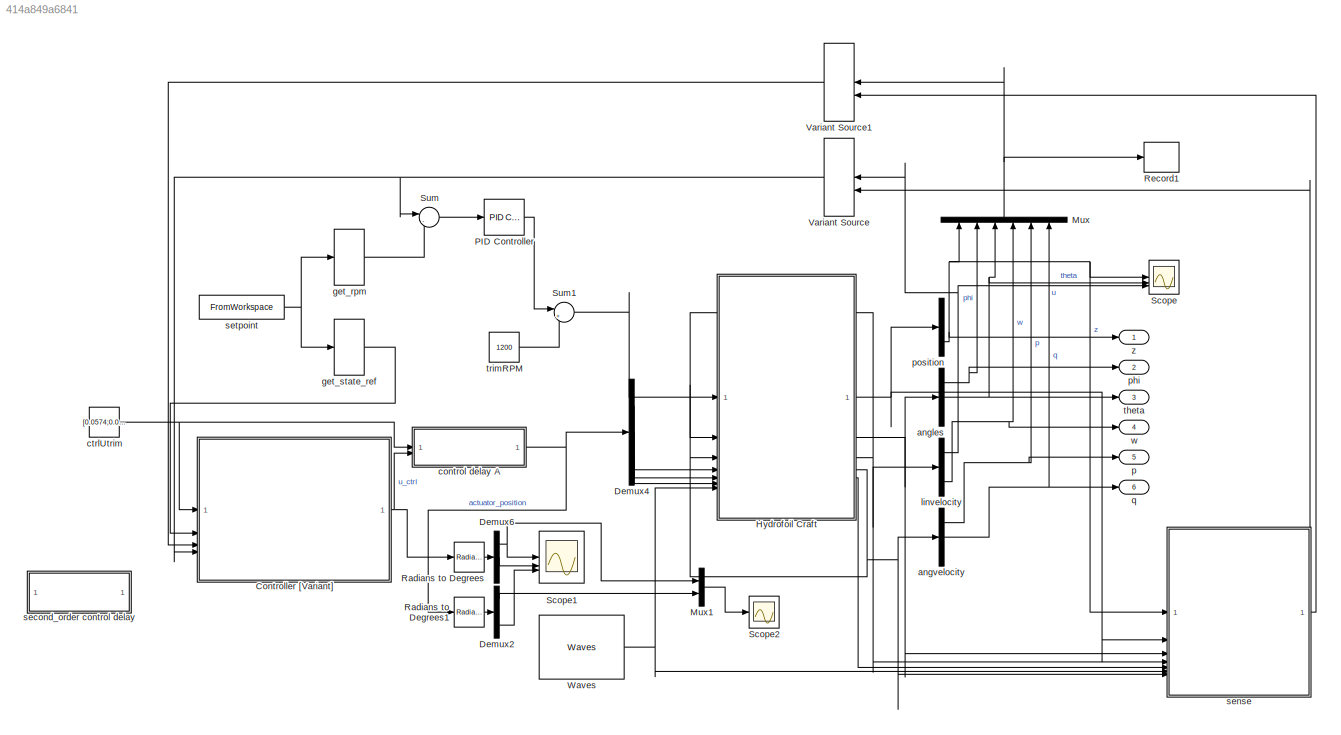
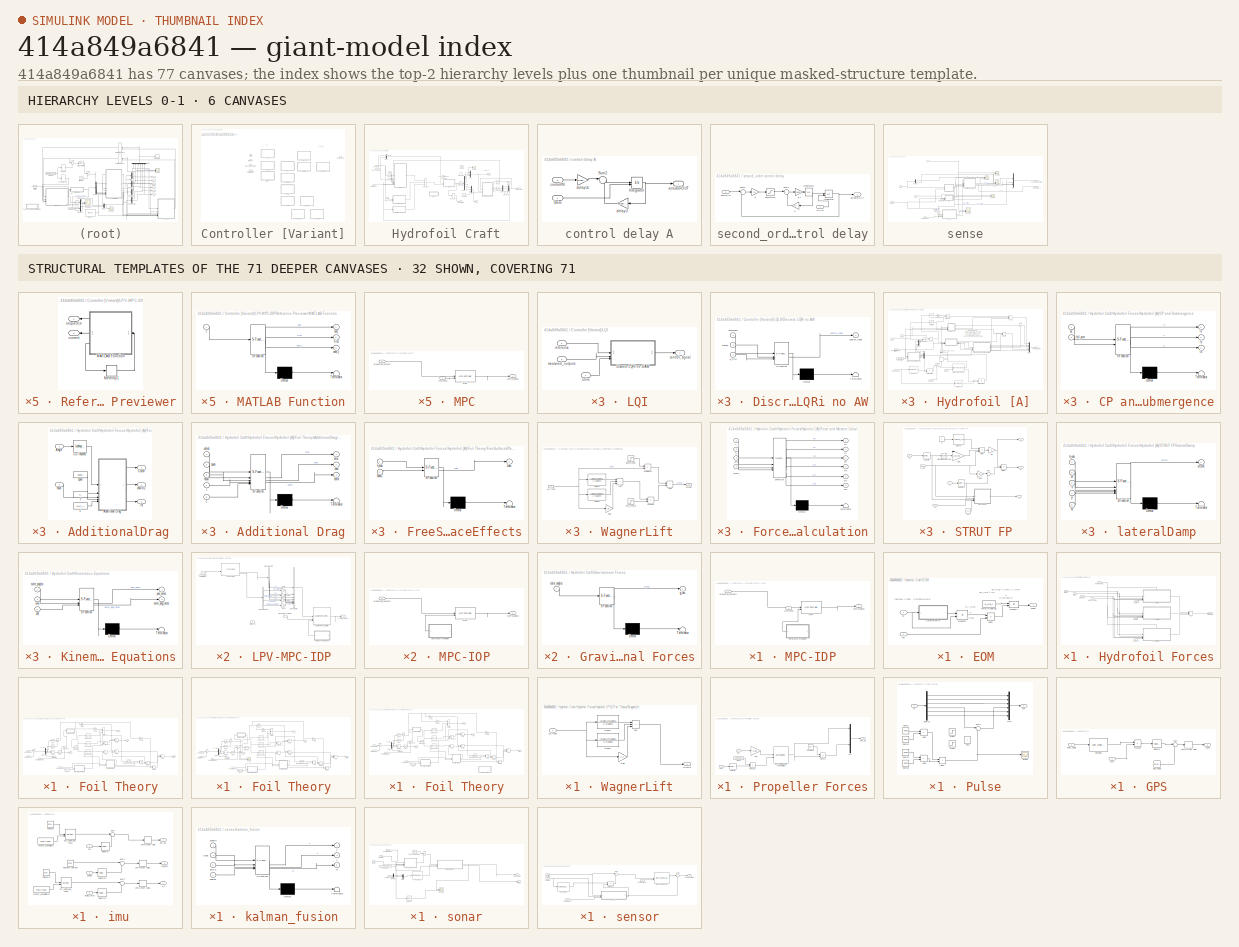
[diagram: thumbnail index - top-2 hierarchy levels (6 canvases) + 32 structural-template representatives of the remaining 71 canvases]
MODEL slx_414a849a6841
KIND model
CONFIG AbsTol = auto
CONFIG EnableMultiTasking = off
CONFIG FixedStep = 0.05
CONFIG MaxStep = 0.2
CONFIG MinStep = auto
CONFIG RelTol = 1e-3
CONFIG SampleTimeConstraint = Unconstrained
CONFIG SolverName = VariableStepAuto
CONFIG StartTime = 0.0
CONFIG StopTime = 20
BLOCK [SubSystem] Controller [Variant]
  Variant = on
  VariantActivationTime = startup
BLOCK [SubSystem] Controller [Variant]/LPV-MPC-IDP
  TreatAsAtomicUnit = on
  VariantControl = control_flag == 12
BLOCK [Reference] Controller [Variant]/LPV-MPC-IDP/Adaptive MPC Controller  REF=mpclib/Adaptive MPC Controller  (lib defined in mdl_ae329e0e0455)
  SCDEnableBlockLinearizationSpecification = on
  SourceBlock = mpclib/Adaptive MPC Controller
  SourceType = Adaptive MPC
BLOCK [BusCreator] Controller [Variant]/LPV-MPC-IDP/Bus Creator
  DisplayOption = bar
  InheritFromInputs = on
  Inputs = 8
BLOCK [BusSelector] Controller [Variant]/LPV-MPC-IDP/Bus Selector
  OutputSignals = A,B,C,D
BLOCK [BusSelector] Controller [Variant]/LPV-MPC-IDP/Bus Selector2
  OutputSignals = InputOffset,OutputOffset,StateOffset,StateUpdateOffset
BLOCK [Gain] Controller [Variant]/LPV-MPC-IDP/Gain
BLOCK [Gain] Controller [Variant]/LPV-MPC-IDP/Gain1
BLOCK [Gain] Controller [Variant]/LPV-MPC-IDP/Gain2
BLOCK [Gain] Controller [Variant]/LPV-MPC-IDP/Gain3
  Gain = 0
BLOCK [Reference] Controller [Variant]/LPV-MPC-IDP/LPV System  REF=cstblocks/Linear Parameter Varying/LPV System
  SourceBlock = cstblocks/Linear Parameter Varying/LPV System
  SourceType = LPV Block
BLOCK [SubSystem] Controller [Variant]/LPV-MPC-IDP/Reference Previewer
BLOCK [SubSystem] Controller [Variant]/LPV-MPC-IDP/Reference Previewer/MATLAB Function
  ErrorFcn = Stateflow.Translate.translate
  PermitHierarchicalResolution = ExplicitOnly
  SFBlockType = MATLAB Function
  TreatAsAtomicUnit = on
BLOCK [Demux] Controller [Variant]/LPV-MPC-IDP/Reference Previewer/MATLAB Function/ Demux 
  Outputs = 1
BLOCK [S-Function] Controller [Variant]/LPV-MPC-IDP/Reference Previewer/MATLAB Function/ SFunction 
  EnableBusSupport = on
  FunctionName = sf_sfun
  Parameters = data,steps
  PortCounts = [1 4]
  SFcnIsStateOwnerBlock = off
  SFunctionDeploymentMode = off
  Tag = Stateflow S-Function 24
BLOCK [Terminator] Controller [Variant]/LPV-MPC-IDP/Reference Previewer/MATLAB Function/ Terminator 
BLOCK [Outport] Controller [Variant]/LPV-MPC-IDP/Reference Previewer/MATLAB Function/first
  Port = 2
BLOCK [Outport] Controller [Variant]/LPV-MPC-IDP/Reference Previewer/MATLAB Function/next_t
  Port = 3
BLOCK [Outport] Controller [Variant]/LPV-MPC-IDP/Reference Previewer/MATLAB Function/seq
BLOCK [Inport] Controller [Variant]/LPV-MPC-IDP/Reference Previewer/MATLAB Function/t
BLOCK [Memory] Controller [Variant]/LPV-MPC-IDP/Reference Previewer/Memory1
  InheritSampleTime = on
  LinearizeAsDelay = on
BLOCK [Outport] Controller [Variant]/LPV-MPC-IDP/Reference Previewer/current
  Port = 2
BLOCK [Outport] Controller [Variant]/LPV-MPC-IDP/Reference Previewer/sequence
BLOCK [Outport] Controller [Variant]/LPV-MPC-IDP/control_signal
BLOCK [Inport] Controller [Variant]/LPV-MPC-IDP/measured_outputs
  Port = 2
BLOCK [Inport] Controller [Variant]/LPV-MPC-IDP/reference
BLOCK [Inport] Controller [Variant]/LPV-MPC-IDP/scheduling_parameter
  Port = 3
BLOCK [SubSystem] Controller [Variant]/LPV-MPC-IP
  TreatAsAtomicUnit = on
  VariantControl = control_flag == 11
BLOCK [Reference] Controller [Variant]/LPV-MPC-IP/Adaptive MPC Controller  REF=mpclib/Adaptive MPC Controller  (lib defined in mdl_ae329e0e0455)
  SCDEnableBlockLinearizationSpecification = on
  SourceBlock = mpclib/Adaptive MPC Controller
  SourceType = Adaptive MPC
BLOCK [BusCreator] Controller [Variant]/LPV-MPC-IP/Bus Creator
  DisplayOption = bar
  InheritFromInputs = on
  Inputs = 8
BLOCK [BusSelector] Controller [Variant]/LPV-MPC-IP/Bus Selector
  OutputSignals = A,B,C,D
BLOCK [BusSelector] Controller [Variant]/LPV-MPC-IP/Bus Selector2
  OutputSignals = InputOffset,OutputOffset,StateOffset,StateUpdateOffset
BLOCK [Gain] Controller [Variant]/LPV-MPC-IP/Gain
BLOCK [Gain] Controller [Variant]/LPV-MPC-IP/Gain1
BLOCK [Gain] Controller [Variant]/LPV-MPC-IP/Gain2
BLOCK [Gain] Controller [Variant]/LPV-MPC-IP/Gain3
  Gain = 0
BLOCK [Reference] Controller [Variant]/LPV-MPC-IP/LPV System  REF=cstblocks/Linear Parameter Varying/LPV System
  SourceBlock = cstblocks/Linear Parameter Varying/LPV System
  SourceType = LPV Block
BLOCK [SubSystem] Controller [Variant]/LPV-MPC-IP/Reference Previewer
BLOCK [SubSystem] Controller [Variant]/LPV-MPC-IP/Reference Previewer/MATLAB Function
  ErrorFcn = Stateflow.Translate.translate
  PermitHierarchicalResolution = ExplicitOnly
  SFBlockType = MATLAB Function
  TreatAsAtomicUnit = on
BLOCK [Demux] Controller [Variant]/LPV-MPC-IP/Reference Previewer/MATLAB Function/ Demux 
  Outputs = 1
BLOCK [S-Function] Controller [Variant]/LPV-MPC-IP/Reference Previewer/MATLAB Function/ SFunction 
  EnableBusSupport = on
  FunctionName = sf_sfun
  Parameters = data,steps
  PortCounts = [1 4]
  SFcnIsStateOwnerBlock = off
  SFunctionDeploymentMode = off
  Tag = Stateflow S-Function 27
BLOCK [Terminator] Controller [Variant]/LPV-MPC-IP/Reference Previewer/MATLAB Function/ Terminator 
BLOCK [Outport] Controller [Variant]/LPV-MPC-IP/Reference Previewer/MATLAB Function/first
  Port = 2
BLOCK [Outport] Controller [Variant]/LPV-MPC-IP/Reference Previewer/MATLAB Function/next_t
  Port = 3
BLOCK [Outport] Controller [Variant]/LPV-MPC-IP/Reference Previewer/MATLAB Function/seq
BLOCK [Inport] Controller [Variant]/LPV-MPC-IP/Reference Previewer/MATLAB Function/t
BLOCK [Memory] Controller [Variant]/LPV-MPC-IP/Reference Previewer/Memory1
  InheritSampleTime = on
  LinearizeAsDelay = on
BLOCK [Outport] Controller [Variant]/LPV-MPC-IP/Reference Previewer/current
  Port = 2
BLOCK [Outport] Controller [Variant]/LPV-MPC-IP/Reference Previewer/sequence
BLOCK [Outport] Controller [Variant]/LPV-MPC-IP/control_signal
BLOCK [Inport] Controller [Variant]/LPV-MPC-IP/measured_outputs
  Port = 2
BLOCK [Inport] Controller [Variant]/LPV-MPC-IP/reference
BLOCK [Inport] Controller [Variant]/LPV-MPC-IP/scheduling_parameter
  Port = 3
BLOCK [SubSystem] Controller [Variant]/LQI
  TreatAsAtomicUnit = on
  VariantControl = control_flag == 1
BLOCK [SubSystem] Controller [Variant]/LQI-S
  TreatAsAtomicUnit = on
  VariantControl = control_flag == 2
BLOCK [SubSystem] Controller [Variant]/LQI-S/Discrete LQRi no AW
  ErrorFcn = Stateflow.Translate.translate
  PermitHierarchicalResolution = ExplicitOnly
  SFBlockType = MATLAB Function
  SystemSampleTime = 0.1
  TreatAsAtomicUnit = on
BLOCK [Demux] Controller [Variant]/LQI-S/Discrete LQRi no AW/ Demux 
  Outputs = 1
BLOCK [S-Function] Controller [Variant]/LQI-S/Discrete LQRi no AW/ SFunction 
  EnableBusSupport = on
  FunctionName = sf_sfun
  Parameters = Ka,Klqid,act_lims
  PortCounts = [3 2]
  SFcnIsStateOwnerBlock = off
  SFunctionDeploymentMode = off
  Tag = Stateflow S-Function 26
BLOCK [Terminator] Controller [Variant]/LQI-S/Discrete LQRi no AW/ Terminator 
BLOCK [Outport] Controller [Variant]/LQI-S/Discrete LQRi no AW/control_input
BLOCK [Inport] Controller [Variant]/LQI-S/Discrete LQRi no AW/reference
BLOCK [Inport] Controller [Variant]/LQI-S/Discrete LQRi no AW/states
  Port = 2
BLOCK [Inport] Controller [Variant]/LQI-S/Discrete LQRi no AW/u_trim
  Port = 3
BLOCK [Outport] Controller [Variant]/LQI-S/control_signal
BLOCK [Inport] Controller [Variant]/LQI-S/measured_outputs
  Port = 3
BLOCK [Inport] Controller [Variant]/LQI-S/reference
  Port = 2
BLOCK [Inport] Controller [Variant]/LQI-S/utrim
BLOCK [SubSystem] Controller [Variant]/LQI-SW
  TreatAsAtomicUnit = on
  VariantControl = control_flag == 3
BLOCK [SubSystem] Controller [Variant]/LQI-SW/Discrete LQRi
  ErrorFcn = Stateflow.Translate.translate
  PermitHierarchicalResolution = ExplicitOnly
  SFBlockType = MATLAB Function
  SystemSampleTime = 0.1
  TreatAsAtomicUnit = on
BLOCK [Demux] Controller [Variant]/LQI-SW/Discrete LQRi/ Demux 
  Outputs = 1
BLOCK [S-Function] Controller [Variant]/LQI-SW/Discrete LQRi/ SFunction 
  EnableBusSupport = on
  FunctionName = sf_sfun
  Parameters = Ka,Klqid,act_lims
  PortCounts = [3 2]
  SFcnIsStateOwnerBlock = off
  SFunctionDeploymentMode = off
  Tag = Stateflow S-Function 14
BLOCK [Terminator] Controller [Variant]/LQI-SW/Discrete LQRi/ Terminator 
BLOCK [Outport] Controller [Variant]/LQI-SW/Discrete LQRi/control_input
BLOCK [Inport] Controller [Variant]/LQI-SW/Discrete LQRi/reference
BLOCK [Inport] Controller [Variant]/LQI-SW/Discrete LQRi/states
  Port = 2
BLOCK [Inport] Controller [Variant]/LQI-SW/Discrete LQRi/u_trim
  Port = 3
BLOCK [Outport] Controller [Variant]/LQI-SW/control_signal
BLOCK [Inport] Controller [Variant]/LQI-SW/measured_outputs
  Port = 3
BLOCK [Inport] Controller [Variant]/LQI-SW/reference
  Port = 2
BLOCK [Inport] Controller [Variant]/LQI-SW/utrim
BLOCK [SubSystem] Controller [Variant]/LQI/Discrete LQRi no S//AW
  ErrorFcn = Stateflow.Translate.translate
  PermitHierarchicalResolution = ExplicitOnly
  SFBlockType = MATLAB Function
  SystemSampleTime = 0.1
  TreatAsAtomicUnit = on
BLOCK [Demux] Controller [Variant]/LQI/Discrete LQRi no S//AW/ Demux 
  Outputs = 1
BLOCK [S-Function] Controller [Variant]/LQI/Discrete LQRi no S//AW/ SFunction 
  EnableBusSupport = on
  FunctionName = sf_sfun
  Parameters = Ka,Klqid,act_lims
  PortCounts = [3 2]
  SFcnIsStateOwnerBlock = off
  SFunctionDeploymentMode = off
  Tag = Stateflow S-Function 25
BLOCK [Terminator] Controller [Variant]/LQI/Discrete LQRi no S//AW/ Terminator 
BLOCK [Outport] Controller [Variant]/LQI/Discrete LQRi no S//AW/control_input
BLOCK [Inport] Controller [Variant]/LQI/Discrete LQRi no S//AW/reference
BLOCK [Inport] Controller [Variant]/LQI/Discrete LQRi no S//AW/states
  Port = 2
BLOCK [Inport] Controller [Variant]/LQI/Discrete LQRi no S//AW/u_trim
  Port = 3
BLOCK [Outport] Controller [Variant]/LQI/control_signal
BLOCK [Inport] Controller [Variant]/LQI/measured_outputs
  Port = 3
BLOCK [Inport] Controller [Variant]/LQI/reference
  Port = 2
BLOCK [Inport] Controller [Variant]/LQI/utrim
BLOCK [SubSystem] Controller [Variant]/MPC
  TreatAsAtomicUnit = on
  VariantControl = control_flag == 4
BLOCK [SubSystem] Controller [Variant]/MPC-I
  TreatAsAtomicUnit = on
  VariantControl = control_flag == 5
BLOCK [Reference] Controller [Variant]/MPC-I/MPC  REF=mpclib/MPC Controller  (lib defined in mdl_ae329e0e0455)
  SCDEnableBlockLinearizationSpecification = on
  SourceBlock = mpclib/MPC Controller
  SourceType = MPC
BLOCK [Outport] Controller [Variant]/MPC-I/control_signal
BLOCK [Inport] Controller [Variant]/MPC-I/measured_outputs
  Port = 2
BLOCK [Inport] Controller [Variant]/MPC-I/reference
BLOCK [SubSystem] Controller [Variant]/MPC-ID
  TreatAsAtomicUnit = on
  VariantControl = control_flag == 8
BLOCK [Reference] Controller [Variant]/MPC-ID/MPC  REF=mpclib/MPC Controller  (lib defined in mdl_ae329e0e0455)
  SCDEnableBlockLinearizationSpecification = on
  SourceBlock = mpclib/MPC Controller
  SourceType = MPC
BLOCK [Outport] Controller [Variant]/MPC-ID/control_signal
BLOCK [Inport] Controller [Variant]/MPC-ID/measured_outputs
  Port = 2
BLOCK [Inport] Controller [Variant]/MPC-ID/reference
BLOCK [SubSystem] Controller [Variant]/MPC-IDP
  TreatAsAtomicUnit = on
  VariantControl = control_flag == 10
BLOCK [Reference] Controller [Variant]/MPC-IDP/MPC  REF=mpclib/MPC Controller  (lib defined in mdl_ae329e0e0455)
  SCDEnableBlockLinearizationSpecification = on
  SourceBlock = mpclib/MPC Controller
  SourceType = MPC
BLOCK [SubSystem] Controller [Variant]/MPC-IDP/Reference Previewer
BLOCK [SubSystem] Controller [Variant]/MPC-IDP/Reference Previewer/MATLAB Function
  ErrorFcn = Stateflow.Translate.translate
  PermitHierarchicalResolution = ExplicitOnly
  SFBlockType = MATLAB Function
  TreatAsAtomicUnit = on
BLOCK [Demux] Controller [Variant]/MPC-IDP/Reference Previewer/MATLAB Function/ Demux 
  Outputs = 1
BLOCK [S-Function] Controller [Variant]/MPC-IDP/Reference Previewer/MATLAB Function/ SFunction 
  EnableBusSupport = on
  FunctionName = sf_sfun
  Parameters = data,steps
  PortCounts = [1 4]
  SFcnIsStateOwnerBlock = off
  SFunctionDeploymentMode = off
  Tag = Stateflow S-Function 29
BLOCK [Terminator] Controller [Variant]/MPC-IDP/Reference Previewer/MATLAB Function/ Terminator 
BLOCK [Outport] Controller [Variant]/MPC-IDP/Reference Previewer/MATLAB Function/first
  Port = 2
BLOCK [Outport] Controller [Variant]/MPC-IDP/Reference Previewer/MATLAB Function/next_t
  Port = 3
BLOCK [Outport] Controller [Variant]/MPC-IDP/Reference Previewer/MATLAB Function/seq
BLOCK [Inport] Controller [Variant]/MPC-IDP/Reference Previewer/MATLAB Function/t
BLOCK [Memory] Controller [Variant]/MPC-IDP/Reference Previewer/Memory1
  InheritSampleTime = on
  LinearizeAsDelay = on
BLOCK [Outport] Controller [Variant]/MPC-IDP/Reference Previewer/current
  Port = 2
BLOCK [Outport] Controller [Variant]/MPC-IDP/Reference Previewer/sequence
BLOCK [Outport] Controller [Variant]/MPC-IDP/control_signal
BLOCK [Inport] Controller [Variant]/MPC-IDP/measured_outputs
  Port = 2
BLOCK [Inport] Controller [Variant]/MPC-IDP/reference
BLOCK [SubSystem] Controller [Variant]/MPC-IO
  TreatAsAtomicUnit = on
  VariantControl = control_flag == 7
BLOCK [Reference] Controller [Variant]/MPC-IO/MPC  REF=mpclib/MPC Controller  (lib defined in mdl_ae329e0e0455)
  SCDEnableBlockLinearizationSpecification = on
  SourceBlock = mpclib/MPC Controller
  SourceType = MPC
BLOCK [Outport] Controller [Variant]/MPC-IO/control_signal
BLOCK [Inport] Controller [Variant]/MPC-IO/measured_outputs
  Port = 2
BLOCK [Inport] Controller [Variant]/MPC-IO/reference
BLOCK [SubSystem] Controller [Variant]/MPC-IOP
  TreatAsAtomicUnit = on
  VariantControl = control_flag == 13
BLOCK [Reference] Controller [Variant]/MPC-IOP/MPC  REF=mpclib/MPC Controller  (lib defined in mdl_ae329e0e0455)
  SCDEnableBlockLinearizationSpecification = on
  SourceBlock = mpclib/MPC Controller
  SourceType = MPC
BLOCK [SubSystem] Controller [Variant]/MPC-IOP/Reference Previewer
BLOCK [SubSystem] Controller [Variant]/MPC-IOP/Reference Previewer/MATLAB Function
  ErrorFcn = Stateflow.Translate.translate
  PermitHierarchicalResolution = ExplicitOnly
  SFBlockType = MATLAB Function
  TreatAsAtomicUnit = on
BLOCK [Demux] Controller [Variant]/MPC-IOP/Reference Previewer/MATLAB Function/ Demux 
  Outputs = 1
BLOCK [S-Function] Controller [Variant]/MPC-IOP/Reference Previewer/MATLAB Function/ SFunction 
  EnableBusSupport = on
  FunctionName = sf_sfun
  Parameters = data,steps
  PortCounts = [1 4]
  SFcnIsStateOwnerBlock = off
  SFunctionDeploymentMode = off
  Tag = Stateflow S-Function 28
BLOCK [Terminator] Controller [Variant]/MPC-IOP/Reference Previewer/MATLAB Function/ Terminator 
BLOCK [Outport] Controller [Variant]/MPC-IOP/Reference Previewer/MATLAB Function/first
  Port = 2
BLOCK [Outport] Controller [Variant]/MPC-IOP/Reference Previewer/MATLAB Function/next_t
  Port = 3
BLOCK [Outport] Controller [Variant]/MPC-IOP/Reference Previewer/MATLAB Function/seq
BLOCK [Inport] Controller [Variant]/MPC-IOP/Reference Previewer/MATLAB Function/t
BLOCK [Memory] Controller [Variant]/MPC-IOP/Reference Previewer/Memory1
  InheritSampleTime = on
  LinearizeAsDelay = on
BLOCK [Outport] Controller [Variant]/MPC-IOP/Reference Previewer/current
  Port = 2
BLOCK [Outport] Controller [Variant]/MPC-IOP/Reference Previewer/sequence
BLOCK [Outport] Controller [Variant]/MPC-IOP/control_signal
BLOCK [Inport] Controller [Variant]/MPC-IOP/measured_outputs
BLOCK [SubSystem] Controller [Variant]/MPC-IP
  TreatAsAtomicUnit = on
  VariantControl = control_flag == 9
BLOCK [Reference] Controller [Variant]/MPC-IP/MPC  REF=mpclib/MPC Controller  (lib defined in mdl_ae329e0e0455)
  SCDEnableBlockLinearizationSpecification = on
  SourceBlock = mpclib/MPC Controller
  SourceType = MPC
BLOCK [SubSystem] Controller [Variant]/MPC-IP/Reference Previewer
BLOCK [SubSystem] Controller [Variant]/MPC-IP/Reference Previewer/MATLAB Function
  ErrorFcn = Stateflow.Translate.translate
  PermitHierarchicalResolution = ExplicitOnly
  SFBlockType = MATLAB Function
  TreatAsAtomicUnit = on
BLOCK [Demux] Controller [Variant]/MPC-IP/Reference Previewer/MATLAB Function/ Demux 
  Outputs = 1
BLOCK [S-Function] Controller [Variant]/MPC-IP/Reference Previewer/MATLAB Function/ SFunction 
  EnableBusSupport = on
  FunctionName = sf_sfun
  Parameters = data,steps
  PortCounts = [1 4]
  SFcnIsStateOwnerBlock = off
  SFunctionDeploymentMode = off
  Tag = Stateflow S-Function 23
BLOCK [Terminator] Controller [Variant]/MPC-IP/Reference Previewer/MATLAB Function/ Terminator 
BLOCK [Outport] Controller [Variant]/MPC-IP/Reference Previewer/MATLAB Function/first
  Port = 2
BLOCK [Outport] Controller [Variant]/MPC-IP/Reference Previewer/MATLAB Function/next_t
  Port = 3
BLOCK [Outport] Controller [Variant]/MPC-IP/Reference Previewer/MATLAB Function/seq
BLOCK [Inport] Controller [Variant]/MPC-IP/Reference Previewer/MATLAB Function/t
BLOCK [Memory] Controller [Variant]/MPC-IP/Reference Previewer/Memory1
  InheritSampleTime = on
  LinearizeAsDelay = on
BLOCK [Outport] Controller [Variant]/MPC-IP/Reference Previewer/current
  Port = 2
BLOCK [Outport] Controller [Variant]/MPC-IP/Reference Previewer/sequence
BLOCK [Outport] Controller [Variant]/MPC-IP/control_signal
BLOCK [Inport] Controller [Variant]/MPC-IP/measured_outputs
BLOCK [SubSystem] Controller [Variant]/MPC-O
  TreatAsAtomicUnit = on
  VariantControl = control_flag == 6
BLOCK [Reference] Controller [Variant]/MPC-O/MPC  REF=mpclib/MPC Controller  (lib defined in mdl_ae329e0e0455)
  SCDEnableBlockLinearizationSpecification = on
  SourceBlock = mpclib/MPC Controller
  SourceType = MPC
BLOCK [Outport] Controller [Variant]/MPC-O/control_signal
BLOCK [Inport] Controller [Variant]/MPC-O/measured_outputs
  Port = 2
BLOCK [Inport] Controller [Variant]/MPC-O/reference
BLOCK [Reference] Controller [Variant]/MPC/MPC  REF=mpclib/MPC Controller  (lib defined in mdl_ae329e0e0455)
  SCDEnableBlockLinearizationSpecification = on
  SourceBlock = mpclib/MPC Controller
  SourceType = MPC
BLOCK [Outport] Controller [Variant]/MPC/control_signal
BLOCK [Inport] Controller [Variant]/MPC/measured_outputs
  Port = 2
BLOCK [Inport] Controller [Variant]/MPC/reference
BLOCK [Outport] Controller [Variant]/control_signal
BLOCK [Inport] Controller [Variant]/measured_outputs
  Port = 3
BLOCK [Inport] Controller [Variant]/reference
  Port = 2
BLOCK [Inport] Controller [Variant]/scheduling_parameter
  Port = 4
BLOCK [Inport] Controller [Variant]/utrim
BLOCK [Demux] Demux2
  Outputs = 3
BLOCK [Demux] Demux4
  Outputs = 3
BLOCK [Demux] Demux6
  Outputs = 3
BLOCK [SubSystem] Hydrofoil Craft
BLOCK [Inport] Hydrofoil Craft/AoA 1
  Port = 4
BLOCK [Inport] Hydrofoil Craft/AoA 2
  Port = 5
BLOCK [Inport] Hydrofoil Craft/AoA 3
  Port = 6
BLOCK [Inport] Hydrofoil Craft/BF Angular Rates
  Port = 3
BLOCK [Inport] Hydrofoil Craft/BF Velocity
  Port = 2
BLOCK [Constant] Hydrofoil Craft/Constant2
  Value = 0
BLOCK [Constant] Hydrofoil Craft/Constant3
  Value = 0
BLOCK [Demux] Hydrofoil Craft/Demux1
  Outputs = 6
BLOCK [Demux] Hydrofoil Craft/Demux2
  Outputs = 3
BLOCK [SubSystem] Hydrofoil Craft/EOM
BLOCK [Sum] Hydrofoil Craft/EOM/Add3
  IconShape = rectangular
  Inputs = -+
BLOCK [SubSystem] Hydrofoil Craft/EOM/CRB MATRIX
  ErrorFcn = Stateflow.Translate.translate
  LibrarySourceBlock = simulink/User-Defined\nFunctions/MATLAB Function
  PermitHierarchicalResolution = ExplicitOnly
  SFBlockType = MATLAB Function
  TreatAsAtomicUnit = on
BLOCK [Demux] Hydrofoil Craft/EOM/CRB MATRIX/ Demux 
  Outputs = 1
BLOCK [S-Function] Hydrofoil Craft/EOM/CRB MATRIX/ SFunction 
  EnableBusSupport = on
  FunctionName = sf_sfun
  Parameters = M_RB
  PortCounts = [1 2]
  SFcnIsStateOwnerBlock = off
  SFunctionDeploymentMode = off
  Tag = Stateflow S-Function 10
BLOCK [Terminator] Hydrofoil Craft/EOM/CRB MATRIX/ Terminator 
BLOCK [Outport] Hydrofoil Craft/EOM/CRB MATRIX/C
BLOCK [Inport] Hydrofoil Craft/EOM/CRB MATRIX/nu
BLOCK [Constant] Hydrofoil Craft/EOM/MRB INVERSE
  Value = M_RB_1
BLOCK [Product] Hydrofoil Craft/EOM/Product1
  Multiplication = Matrix(*)
BLOCK [Product] Hydrofoil Craft/EOM/Product2
  Multiplication = Matrix(*)
BLOCK [Inport] Hydrofoil Craft/EOM/nu
BLOCK [Outport] Hydrofoil Craft/EOM/nudot
BLOCK [Inport] Hydrofoil Craft/EOM/tau
  Port = 2
BLOCK [Sum] Hydrofoil Craft/Force Sum
  IconShape = rectangular
  Inputs = +++
BLOCK [SubSystem] Hydrofoil Craft/Gravitational Forces
  ErrorFcn = Stateflow.Translate.translate
  LibrarySourceBlock = simulink/User-Defined\nFunctions/MATLAB Function
  PermitHierarchicalResolution = ExplicitOnly
  SFBlockType = MATLAB Function
  TreatAsAtomicUnit = on
BLOCK [Demux] Hydrofoil Craft/Gravitational Forces/ Demux 
  Outputs = 1
BLOCK [S-Function] Hydrofoil Craft/Gravitational Forces/ SFunction 
  EnableBusSupport = on
  FunctionName = sf_sfun
  Parameters = g,mass,r_g
  PortCounts = [1 2]
  SFcnIsStateOwnerBlock = off
  SFunctionDeploymentMode = off
  Tag = Stateflow S-Function 3
BLOCK [Terminator] Hydrofoil Craft/Gravitational Forces/ Terminator 
BLOCK [Inport] Hydrofoil Craft/Gravitational Forces/euler_angles
BLOCK [Outport] Hydrofoil Craft/Gravitational Forces/g_tau
BLOCK [SubSystem] Hydrofoil Craft/Hydrofoil Forces
BLOCK [Sum] Hydrofoil Craft/Hydrofoil Forces/Add
  IconShape = rectangular
  Inputs = +++
BLOCK [Inport] Hydrofoil Craft/Hydrofoil Forces/Angle A
  Port = 5
BLOCK [Inport] Hydrofoil Craft/Hydrofoil Forces/Angle FP
  Port = 4
BLOCK [Inport] Hydrofoil Craft/Hydrofoil Forces/Angle FS
  Port = 3
BLOCK [Outport] Hydrofoil Craft/Hydrofoil Forces/FoilForce
BLOCK [SubSystem] Hydrofoil Craft/Hydrofoil Forces/Hydrofoil [A]
  PortSchema = {"entries":[{"content":{"sides":[{"content":{"connectorIds":["In1","In2","In3","In4","In5"]},"type":"ConnectorPlacement.EquallySpacedRectSide","uuid":"677cb1e4-b507-48e0-bf9b-1d4b68d11740"},{"content":{"connectorIds":["Out1"],"side":"RIGHT"},"type":"ConnectorPlacement.EquallySpacedRectSide","uuid":"aaee0231-58d5-427f-802b-fd317cb8babc"},{"content":{"connectorIds":["In6"],"side":"TOP"},"type":"Conn...<+269ch>  <repeated x3 — deduplicated; at blocks: Hydrofoil [A], Hydrofoil [FP], Hydrofoil [FS]>
BLOCK [Gain] Hydrofoil Craft/Hydrofoil Forces/Hydrofoil [A]/-0.5ρ2pi Ld,p
  Gain = -1/2*rho*2*pi*LAd
BLOCK [Sum] Hydrofoil Craft/Hydrofoil Forces/Hydrofoil [A]/Add
  IconShape = rectangular
BLOCK [Sum] Hydrofoil Craft/Hydrofoil Forces/Hydrofoil [A]/Add1
  IconShape = rectangular
  Inputs = +++
BLOCK [Reference] Hydrofoil Craft/Hydrofoil Forces/Hydrofoil [A]/BF2NED  REF=mssSimulink/Modelling/Kinematics/Euler angles to
rotation matrix
  SourceBlock = mssSimulink/Modelling/Kinematics/Euler angles to\nrotation matrix
  SourceType = Euler2R
BLOCK [SubSystem] Hydrofoil Craft/Hydrofoil Forces/Hydrofoil [A]/CP and Submergence
  ErrorFcn = Stateflow.Translate.translate
  LibrarySourceBlock = simulink/User-Defined\nFunctions/MATLAB Function
  PermitHierarchicalResolution = ExplicitOnly
  SFBlockType = MATLAB Function
  TreatAsAtomicUnit = on
BLOCK [Demux] Hydrofoil Craft/Hydrofoil Forces/Hydrofoil [A]/CP and Submergence/ Demux 
  Outputs = 1
BLOCK [S-Function] Hydrofoil Craft/Hydrofoil Forces/Hydrofoil [A]/CP and Submergence/ SFunction 
  EnableBusSupport = on
  FunctionName = sf_sfun
  PortCounts = [2 4]
  SFcnIsStateOwnerBlock = off
  SFunctionDeploymentMode = off
  Tag = Stateflow S-Function 1
BLOCK [Terminator] Hydrofoil Craft/Hydrofoil Forces/Hydrofoil [A]/CP and Submergence/ Terminator 
BLOCK [Inport] Hydrofoil Craft/Hydrofoil Forces/Hydrofoil [A]/CP and Submergence/ac
BLOCK [Inport] Hydrofoil Craft/Hydrofoil Forces/Hydrofoil [A]/CP and Submergence/foil_arm
  Port = 2
BLOCK [Outport] Hydrofoil Craft/Hydrofoil Forces/Hydrofoil [A]/CP and Submergence/lx
BLOCK [Outport] Hydrofoil Craft/Hydrofoil Forces/Hydrofoil [A]/CP and Submergence/ly
  Port = 2
BLOCK [Outport] Hydrofoil Craft/Hydrofoil Forces/Hydrofoil [A]/CP and Submergence/lz
  Port = 3
BLOCK [Inport] Hydrofoil Craft/Hydrofoil Forces/Hydrofoil [A]/Control Deflection (ac)
  Port = 5
BLOCK [Reference] Hydrofoil Craft/Hydrofoil Forces/Hydrofoil [A]/Cross Product  REF=matrix_library/Cross Product
  SourceBlock = matrix_library/Cross Product
  SourceType = CrossProduct
BLOCK [Constant] Hydrofoil Craft/Hydrofoil Forces/Hydrofoil [A]/Foil Position
  Value = foilA_ARM
BLOCK [SubSystem] Hydrofoil Craft/Hydrofoil Forces/Hydrofoil [A]/Foil Theory
BLOCK [Gain] Hydrofoil Craft/Hydrofoil Forces/Hydrofoil [A]/Foil Theory/0.5ρS
  Gain = 1/2*rho*AfoilA
BLOCK [Gain] Hydrofoil Craft/Hydrofoil Forces/Hydrofoil [A]/Foil Theory/0.5ρSc
  Gain = 1/2*rho*AfoilA*MAC_A
BLOCK [Gain] Hydrofoil Craft/Hydrofoil Forces/Hydrofoil [A]/Foil Theory/0.5ρt^2
  Gain = 1/2*rho*tA^2
BLOCK [Sum] Hydrofoil Craft/Hydrofoil Forces/Hydrofoil [A]/Foil Theory/Add
  IconShape = rectangular
  Inputs = +++
BLOCK [SubSystem] Hydrofoil Craft/Hydrofoil Forces/Hydrofoil [A]/Foil Theory/AdditionalDrag
BLOCK [SubSystem] Hydrofoil Craft/Hydrofoil Forces/Hydrofoil [A]/Foil Theory/AdditionalDrag/Additional Drag
  ErrorFcn = Stateflow.Translate.translate
  PermitHierarchicalResolution = ExplicitOnly
  SFBlockType = MATLAB Function
  TreatAsAtomicUnit = on
BLOCK [Demux] Hydrofoil Craft/Hydrofoil Forces/Hydrofoil [A]/Foil Theory/AdditionalDrag/Additional Drag/ Demux 
  Outputs = 1
BLOCK [S-Function] Hydrofoil Craft/Hydrofoil Forces/Hydrofoil [A]/Foil Theory/AdditionalDrag/Additional Drag/ SFunction 
  EnableBusSupport = on
  FunctionName = sf_sfun
  Parameters = usted
  PortCounts = [5 4]
  SFcnIsStateOwnerBlock = off
  SFunctionDeploymentMode = off
  Tag = Stateflow S-Function 2
BLOCK [Terminator] Hydrofoil Craft/Hydrofoil Forces/Hydrofoil [A]/Foil Theory/AdditionalDrag/Additional Drag/ Terminator 
BLOCK [Inport] Hydrofoil Craft/Hydrofoil Forces/Hydrofoil [A]/Foil Theory/AdditionalDrag/Additional Drag/c
  Port = 5
BLOCK [Inport] Hydrofoil Craft/Hydrofoil Forces/Hydrofoil [A]/Foil Theory/AdditionalDrag/Additional Drag/cdind
BLOCK [Outport] Hydrofoil Craft/Hydrofoil Forces/Hydrofoil [A]/Foil Theory/AdditionalDrag/Additional Drag/cdint
  Port = 3
BLOCK [Outport] Hydrofoil Craft/Hydrofoil Forces/Hydrofoil [A]/Foil Theory/AdditionalDrag/Additional Drag/cdw
  Port = 2
BLOCK [Outport] Hydrofoil Craft/Hydrofoil Forces/Hydrofoil [A]/Foil Theory/AdditionalDrag/Additional Drag/dinc
BLOCK [Inport] Hydrofoil Craft/Hydrofoil Forces/Hydrofoil [A]/Foil Theory/AdditionalDrag/Additional Drag/hsub
  Port = 3
BLOCK [Inport] Hydrofoil Craft/Hydrofoil Forces/Hydrofoil [A]/Foil Theory/AdditionalDrag/Additional Drag/span
  Port = 2
BLOCK [Inport] Hydrofoil Craft/Hydrofoil Forces/Hydrofoil [A]/Foil Theory/AdditionalDrag/Additional Drag/t
  Port = 4
BLOCK [Inport] Hydrofoil Craft/Hydrofoil Forces/Hydrofoil [A]/Foil Theory/AdditionalDrag/Angle
BLOCK [Lookup_n-D] Hydrofoil Craft/Hydrofoil Forces/Hydrofoil [A]/Foil Theory/AdditionalDrag/CD induced
  BreakpointsForDimension1 = alpha63412wing
  InputPortMap = u0
  InternalRulePriority = Speed
  NumberOfTableDimensions = 1
  RndMeth = Simplest
  Table = cdi63412wing
BLOCK [Outport] Hydrofoil Craft/Hydrofoil Forces/Hydrofoil [A]/Foil Theory/AdditionalDrag/Cdind
BLOCK [Constant] Hydrofoil Craft/Hydrofoil Forces/Hydrofoil [A]/Foil Theory/AdditionalDrag/c
  Value = MAC_A
BLOCK [Outport] Hydrofoil Craft/Hydrofoil Forces/Hydrofoil [A]/Foil Theory/AdditionalDrag/cdw//cl2
  Port = 2
BLOCK [Inport] Hydrofoil Craft/Hydrofoil Forces/Hydrofoil [A]/Foil Theory/AdditionalDrag/hsub
  Port = 2
BLOCK [Outport] Hydrofoil Craft/Hydrofoil Forces/Hydrofoil [A]/Foil Theory/AdditionalDrag/int
  Port = 3
BLOCK [Constant] Hydrofoil Craft/Hydrofoil Forces/Hydrofoil [A]/Foil Theory/AdditionalDrag/span
  Value = spanA
BLOCK [Constant] Hydrofoil Craft/Hydrofoil Forces/Hydrofoil [A]/Foil Theory/AdditionalDrag/t
  Value = tA
BLOCK [Sum] Hydrofoil Craft/Hydrofoil Forces/Hydrofoil [A]/Foil Theory/Angle_Hydro
  Inputs = |++
BLOCK [Trigonometry] Hydrofoil Craft/Hydrofoil Forces/Hydrofoil [A]/Foil Theory/Atan
  Operator = atan
BLOCK [Sum] Hydrofoil Craft/Hydrofoil Forces/Hydrofoil [A]/Foil Theory/CD
  IconShape = rectangular
BLOCK [Lookup_n-D] Hydrofoil Craft/Hydrofoil Forces/Hydrofoil [A]/Foil Theory/CDv LookUp
  BreakpointsForDimension1 = alpha63412wing
  InputPortMap = u0
  InternalRulePriority = Speed
  NumberOfTableDimensions = 1
  RndMeth = Simplest
  Table = cdv63412wing
BLOCK [Lookup_n-D] Hydrofoil Craft/Hydrofoil Forces/Hydrofoil [A]/Foil Theory/CL LookUp
  BreakpointsForDimension1 = alpha63412wing
  InputPortMap = u0
  InternalRulePriority = Speed
  NumberOfTableDimensions = 1
  RndMeth = Simplest
  Table = cl63412wing
BLOCK [Lookup_n-D] Hydrofoil Craft/Hydrofoil Forces/Hydrofoil [A]/Foil Theory/CM Lookup
  BreakpointsForDimension1 = alpha63412wing
  InputPortMap = u0
  InternalRulePriority = Speed
  NumberOfTableDimensions = 1
  RndMeth = Simplest
  Table = cm63412wing
BLOCK [Product] Hydrofoil Craft/Hydrofoil Forces/Hydrofoil [A]/Foil Theory/Cmdim
  Inputs = 3
BLOCK [Inport] Hydrofoil Craft/Hydrofoil Forces/Hydrofoil [A]/Foil Theory/Control Deflection
  Port = 2
BLOCK [Product] Hydrofoil Craft/Hydrofoil Forces/Hydrofoil [A]/Foil Theory/Ddim
BLOCK [Product] Hydrofoil Craft/Hydrofoil Forces/Hydrofoil [A]/Foil Theory/Ddimint
BLOCK [Product] Hydrofoil Craft/Hydrofoil Forces/Hydrofoil [A]/Foil Theory/Ddimw
BLOCK [Demux] Hydrofoil Craft/Hydrofoil Forces/Hydrofoil [A]/Foil Theory/Demux
  Outputs = 3
BLOCK [Product] Hydrofoil Craft/Hydrofoil Forces/Hydrofoil [A]/Foil Theory/Divide
  Inputs = */
BLOCK [Outport] Hydrofoil Craft/Hydrofoil Forces/Hydrofoil [A]/Foil Theory/Drag
  Port = 2
BLOCK [SubSystem] Hydrofoil Craft/Hydrofoil Forces/Hydrofoil [A]/Foil Theory/FreeSurfaceEffects
  ErrorFcn = Stateflow.Translate.translate
  PermitHierarchicalResolution = ExplicitOnly
  SFBlockType = MATLAB Function
  TreatAsAtomicUnit = on
BLOCK [Demux] Hydrofoil Craft/Hydrofoil Forces/Hydrofoil [A]/Foil Theory/FreeSurfaceEffects/ Demux 
  Outputs = 1
BLOCK [S-Function] Hydrofoil Craft/Hydrofoil Forces/Hydrofoil [A]/Foil Theory/FreeSurfaceEffects/ SFunction 
  EnableBusSupport = on
  FunctionName = sf_sfun
  PortCounts = [2 2]
  SFcnIsStateOwnerBlock = off
  SFunctionDeploymentMode = off
  Tag = Stateflow S-Function 8
BLOCK [Terminator] Hydrofoil Craft/Hydrofoil Forces/Hydrofoil [A]/Foil Theory/FreeSurfaceEffects/ Terminator 
BLOCK [Outport] Hydrofoil Craft/Hydrofoil Forces/Hydrofoil [A]/Foil Theory/FreeSurfaceEffects/Ldec
BLOCK [Inport] Hydrofoil Craft/Hydrofoil Forces/Hydrofoil [A]/Foil Theory/FreeSurfaceEffects/MAC
  Port = 2
BLOCK [Inport] Hydrofoil Craft/Hydrofoil Forces/Hydrofoil [A]/Foil Theory/FreeSurfaceEffects/h_sub
BLOCK [Product] Hydrofoil Craft/Hydrofoil Forces/Hydrofoil [A]/Foil Theory/Ldecrease_h
BLOCK [Product] Hydrofoil Craft/Hydrofoil Forces/Hydrofoil [A]/Foil Theory/Ldim
BLOCK [Outport] Hydrofoil Craft/Hydrofoil Forces/Hydrofoil [A]/Foil Theory/Lift
BLOCK [Outport] Hydrofoil Craft/Hydrofoil Forces/Hydrofoil [A]/Foil Theory/M
  Port = 4
BLOCK [Constant] Hydrofoil Craft/Hydrofoil Forces/Hydrofoil [A]/Foil Theory/MAC
  Value = MAC_A
BLOCK [Math] Hydrofoil Craft/Hydrofoil Forces/Hydrofoil [A]/Foil Theory/Magnitude Squared
  Operator = magnitude^2
BLOCK [Inport] Hydrofoil Craft/Hydrofoil Forces/Hydrofoil [A]/Foil Theory/Pivot Velocity
BLOCK [Inport] Hydrofoil Craft/Hydrofoil Forces/Hydrofoil [A]/Foil Theory/Submergence
  Port = 4
BLOCK [Sum] Hydrofoil Craft/Hydrofoil Forces/Hydrofoil [A]/Foil Theory/Sum
  Inputs = |+-
BLOCK [Terminator] Hydrofoil Craft/Hydrofoil Forces/Hydrofoil [A]/Foil Theory/Terminator
BLOCK [Sum] Hydrofoil Craft/Hydrofoil Forces/Hydrofoil [A]/Foil Theory/Vinf^2
  Inputs = |++
BLOCK [SubSystem] Hydrofoil Craft/Hydrofoil Forces/Hydrofoil [A]/Foil Theory/WagnerLift
BLOCK [Sum] Hydrofoil Craft/Hydrofoil Forces/Hydrofoil [A]/Foil Theory/WagnerLift/Add
  IconShape = rectangular
  Inputs = +++
BLOCK [Sum] Hydrofoil Craft/Hydrofoil Forces/Hydrofoil [A]/Foil Theory/WagnerLift/Add1
  IconShape = rectangular
BLOCK [Inport] Hydrofoil Craft/Hydrofoil Forces/Hydrofoil [A]/Foil Theory/WagnerLift/AoA Input
BLOCK [Outport] Hydrofoil Craft/Hydrofoil Forces/Hydrofoil [A]/Foil Theory/WagnerLift/DynOut
BLOCK [Gain] Hydrofoil Craft/Hydrofoil Forces/Hydrofoil [A]/Foil Theory/WagnerLift/Gain
  Gain = 0.5
BLOCK [Product] Hydrofoil Craft/Hydrofoil Forces/Hydrofoil [A]/Foil Theory/WagnerLift/Product
BLOCK [Product] Hydrofoil Craft/Hydrofoil Forces/Hydrofoil [A]/Foil Theory/WagnerLift/Product1
BLOCK [Step] Hydrofoil Craft/Hydrofoil Forces/Hydrofoil [A]/Foil Theory/WagnerLift/init_dynamic
  SampleTime = 0
  Time = 0.7
BLOCK [Step] Hydrofoil Craft/Hydrofoil Forces/Hydrofoil [A]/Foil Theory/WagnerLift/level_model
  After = 0
  Before = 1
  SampleTime = 0
  Time = 0.7
BLOCK [TransferFcn] Hydrofoil Craft/Hydrofoil Forces/Hydrofoil [A]/Foil Theory/WagnerLift/wagn1
  Denominator = [1 wage1]
  Numerator = [wagC1*wage1]
BLOCK [TransferFcn] Hydrofoil Craft/Hydrofoil Forces/Hydrofoil [A]/Foil Theory/WagnerLift/wagn2
  Denominator = [1 wage2]
  Numerator = [wagC2*wage2]
BLOCK [Outport] Hydrofoil Craft/Hydrofoil Forces/Hydrofoil [A]/Foil Theory/a_inf
  Port = 3
BLOCK [Product] Hydrofoil Craft/Hydrofoil Forces/Hydrofoil [A]/Foil Theory/cdw
BLOCK [Inport] Hydrofoil Craft/Hydrofoil Forces/Hydrofoil [A]/Foil Theory/disturbance
  Port = 3
BLOCK [Reference] Hydrofoil Craft/Hydrofoil Forces/Hydrofoil [A]/Foil Theory/rad2deg  REF=simulink_extras/Transformations/Radians
to Degrees
  SourceBlock = simulink_extras/Transformations/Radians\nto Degrees
  SourceType = RadiansToDegrees
BLOCK [Math] Hydrofoil Craft/Hydrofoil Forces/Hydrofoil [A]/Foil Theory/u^2
  Operator = magnitude^2
BLOCK [Math] Hydrofoil Craft/Hydrofoil Forces/Hydrofoil [A]/Foil Theory/w^2
  Operator = magnitude^2
BLOCK [Sum] Hydrofoil Craft/Hydrofoil Forces/Hydrofoil [A]/FoilNED
  Inputs = |++
BLOCK [Outport] Hydrofoil Craft/Hydrofoil Forces/Hydrofoil [A]/Force - Moment
BLOCK [SubSystem] Hydrofoil Craft/Hydrofoil Forces/Hydrofoil [A]/Force and Moment Calculation
  ErrorFcn = Stateflow.Translate.translate
  LibrarySourceBlock = simulink/User-Defined\nFunctions/MATLAB Function
  PermitHierarchicalResolution = ExplicitOnly
  SFBlockType = MATLAB Function
  TreatAsAtomicUnit = on
BLOCK [Demux] Hydrofoil Craft/Hydrofoil Forces/Hydrofoil [A]/Force and Moment Calculation/ Demux 
  Outputs = 1
BLOCK [S-Function] Hydrofoil Craft/Hydrofoil Forces/Hydrofoil [A]/Force and Moment Calculation/ SFunction 
  EnableBusSupport = on
  FunctionName = sf_sfun
  PortCounts = [4 7]
  SFcnIsStateOwnerBlock = off
  SFunctionDeploymentMode = off
  Tag = Stateflow S-Function 16
BLOCK [Terminator] Hydrofoil Craft/Hydrofoil Forces/Hydrofoil [A]/Force and Moment Calculation/ Terminator 
BLOCK [Inport] Hydrofoil Craft/Hydrofoil Forces/Hydrofoil [A]/Force and Moment Calculation/D
  Port = 2
BLOCK [Outport] Hydrofoil Craft/Hydrofoil Forces/Hydrofoil [A]/Force and Moment Calculation/FX
BLOCK [Outport] Hydrofoil Craft/Hydrofoil Forces/Hydrofoil [A]/Force and Moment Calculation/FY
  Port = 2
BLOCK [Outport] Hydrofoil Craft/Hydrofoil Forces/Hydrofoil [A]/Force and Moment Calculation/FZ
  Port = 3
BLOCK [Inport] Hydrofoil Craft/Hydrofoil Forces/Hydrofoil [A]/Force and Moment Calculation/L
BLOCK [Outport] Hydrofoil Craft/Hydrofoil Forces/Hydrofoil [A]/Force and Moment Calculation/MX
  Port = 4
BLOCK [Outport] Hydrofoil Craft/Hydrofoil Forces/Hydrofoil [A]/Force and Moment Calculation/MY
  Port = 5
BLOCK [Outport] Hydrofoil Craft/Hydrofoil Forces/Hydrofoil [A]/Force and Moment Calculation/MZ
  Port = 6
BLOCK [Inport] Hydrofoil Craft/Hydrofoil Forces/Hydrofoil [A]/Force and Moment Calculation/Marm
  Port = 4
BLOCK [Inport] Hydrofoil Craft/Hydrofoil Forces/Hydrofoil [A]/Force and Moment Calculation/ainf
  Port = 3
BLOCK [Product] Hydrofoil Craft/Hydrofoil Forces/Hydrofoil [A]/Matrix Multiply
  Multiplication = Matrix(*)
BLOCK [Product] Hydrofoil Craft/Hydrofoil Forces/Hydrofoil [A]/Matrix Multiply1
  Multiplication = Matrix(*)
BLOCK [Sum] Hydrofoil Craft/Hydrofoil Forces/Hydrofoil [A]/Msum
  IconShape = rectangular
  Inputs = +++
BLOCK [Mux] Hydrofoil Craft/Hydrofoil Forces/Hydrofoil [A]/Mux
  DisplayOption = bar
  Inputs = 3
BLOCK [Mux] Hydrofoil Craft/Hydrofoil Forces/Hydrofoil [A]/Mux1
  DisplayOption = bar
  Inputs = 6
BLOCK [Mux] Hydrofoil Craft/Hydrofoil Forces/Hydrofoil [A]/Mux2
  DisplayOption = bar
  Inputs = 3
BLOCK [Reference] Hydrofoil Craft/Hydrofoil Forces/Hydrofoil [A]/NED2BF  REF=mssSimulink/Modelling/Kinematics/Euler angles to
inverse rotation
matrix
  SourceBlock = mssSimulink/Modelling/Kinematics/Euler angles to\ninverse rotation\nmatrix
  SourceType = Rbn
BLOCK [Inport] Hydrofoil Craft/Hydrofoil Forces/Hydrofoil [A]/NEDpos
  Port = 3
BLOCK [Product] Hydrofoil Craft/Hydrofoil Forces/Hydrofoil [A]/Product
BLOCK [SubSystem] Hydrofoil Craft/Hydrofoil Forces/Hydrofoil [A]/STRUT FP
BLOCK [Lookup_n-D] Hydrofoil Craft/Hydrofoil Forces/Hydrofoil [A]/STRUT FP/CD strut
  BreakpointsForDimension1 = alpha0012
  InputPortMap = u0
  InternalRulePriority = Speed
  NumberOfTableDimensions = 1
  RndMeth = Simplest
  Table = cd0012
BLOCK [Product] Hydrofoil Craft/Hydrofoil Forces/Hydrofoil [A]/STRUT FP/Ddim
  Inputs = 3
BLOCK [Gain] Hydrofoil Craft/Hydrofoil Forces/Hydrofoil [A]/STRUT FP/Gain
  Gain = 0.5*rho*csA
BLOCK [Gain] Hydrofoil Craft/Hydrofoil Forces/Hydrofoil [A]/STRUT FP/Gain1
  Gain = 0.5
BLOCK [Outport] Hydrofoil Craft/Hydrofoil Forces/Hydrofoil [A]/STRUT FP/K
  Port = 2
BLOCK [Outport] Hydrofoil Craft/Hydrofoil Forces/Hydrofoil [A]/STRUT FP/M
  Port = 3
BLOCK [Math] Hydrofoil Craft/Hydrofoil Forces/Hydrofoil [A]/STRUT FP/Magnitude Squared
  Operator = magnitude^2
BLOCK [Product] Hydrofoil Craft/Hydrofoil Forces/Hydrofoil [A]/STRUT FP/Mpitch
BLOCK [Selector] Hydrofoil Craft/Hydrofoil Forces/Hydrofoil [A]/STRUT FP/Selector
  IndexOptions = Index vector (dialog)
  Indices = [1]
  InputPortWidth = 3
  OutputSizes = 1
BLOCK [Selector] Hydrofoil Craft/Hydrofoil Forces/Hydrofoil [A]/STRUT FP/Selector1
  IndexOptions = Index vector (dialog)
  Indices = [3]
  InputPortWidth = 3
  OutputSizes = 1
BLOCK [Sum] Hydrofoil Craft/Hydrofoil Forces/Hydrofoil [A]/STRUT FP/Sum
  Inputs = |-+
BLOCK [Outport] Hydrofoil Craft/Hydrofoil Forces/Hydrofoil [A]/STRUT FP/X
BLOCK [Constant] Hydrofoil Craft/Hydrofoil Forces/Hydrofoil [A]/STRUT FP/a
  Value = 0
BLOCK [Constant] Hydrofoil Craft/Hydrofoil Forces/Hydrofoil [A]/STRUT FP/a1
  Value = csA
BLOCK [Gain] Hydrofoil Craft/Hydrofoil Forces/Hydrofoil [A]/STRUT FP/flip
  Gain = -1
BLOCK [Inport] Hydrofoil Craft/Hydrofoil Forces/Hydrofoil [A]/STRUT FP/h_sub
BLOCK [SubSystem] Hydrofoil Craft/Hydrofoil Forces/Hydrofoil [A]/STRUT FP/lateralDamp
  ErrorFcn = Stateflow.Translate.translate
  PermitHierarchicalResolution = ExplicitOnly
  SFBlockType = MATLAB Function
  TreatAsAtomicUnit = on
BLOCK [Demux] Hydrofoil Craft/Hydrofoil Forces/Hydrofoil [A]/STRUT FP/lateralDamp/ Demux 
  Outputs = 1
BLOCK [S-Function] Hydrofoil Craft/Hydrofoil Forces/Hydrofoil [A]/STRUT FP/lateralDamp/ SFunction 
  EnableBusSupport = on
  FunctionName = sf_sfun
  Parameters = rho
  PortCounts = [5 2]
  SFcnIsStateOwnerBlock = off
  SFunctionDeploymentMode = off
  Tag = Stateflow S-Function 17
BLOCK [Terminator] Hydrofoil Craft/Hydrofoil Forces/Hydrofoil [A]/STRUT FP/lateralDamp/ Terminator 
BLOCK [Inport] Hydrofoil Craft/Hydrofoil Forces/Hydrofoil [A]/STRUT FP/lateralDamp/V
  Port = 3
BLOCK [Inport] Hydrofoil Craft/Hydrofoil Forces/Hydrofoil [A]/STRUT FP/lateralDamp/cs
  Port = 5
BLOCK [Inport] Hydrofoil Craft/Hydrofoil Forces/Hydrofoil [A]/STRUT FP/lateralDamp/h_sub
BLOCK [Inport] Hydrofoil Craft/Hydrofoil Forces/Hydrofoil [A]/STRUT FP/lateralDamp/p
  Port = 4
BLOCK [Outport] Hydrofoil Craft/Hydrofoil Forces/Hydrofoil [A]/STRUT FP/lateralDamp/strutK
BLOCK [Inport] Hydrofoil Craft/Hydrofoil Forces/Hydrofoil [A]/STRUT FP/lateralDamp/zs
  Port = 2
BLOCK [Inport] Hydrofoil Craft/Hydrofoil Forces/Hydrofoil [A]/STRUT FP/lz
  Port = 3
BLOCK [Inport] Hydrofoil Craft/Hydrofoil Forces/Hydrofoil [A]/STRUT FP/p
  Port = 4
BLOCK [Inport] Hydrofoil Craft/Hydrofoil Forces/Hydrofoil [A]/STRUT FP/vel
  Port = 2
BLOCK [Selector] Hydrofoil Craft/Hydrofoil Forces/Hydrofoil [A]/Selector
  IndexOptions = Index vector (dialog)
  Indices = [3]
  InputPortWidth = 3
  NameLocation = right
  OutputSizes = 1
BLOCK [Sum] Hydrofoil Craft/Hydrofoil Forces/Hydrofoil [A]/Sum
  Inputs = |++
BLOCK [Reference] Hydrofoil Craft/Hydrofoil Forces/Hydrofoil [A]/Wave velocitycalc  REF=mssSimulink/Environment/Waves/Wave velocitycalc
  SourceBlock = mssSimulink/Environment/Waves/Wave velocitycalc
  SourceType = Wave velocitycalc
BLOCK [Inport] Hydrofoil Craft/Hydrofoil Forces/Hydrofoil [A]/[p q r]
  Port = 2
BLOCK [Inport] Hydrofoil Craft/Hydrofoil Forces/Hydrofoil [A]/[u v w]
BLOCK [Inport] Hydrofoil Craft/Hydrofoil Forces/Hydrofoil [A]/euler_angles
  Port = 4
BLOCK [Selector] Hydrofoil Craft/Hydrofoil Forces/Hydrofoil [A]/rollrate
  IndexOptions = Index vector (dialog)
  Indices = [1]
  InputPortWidth = 3
  OutputSizes = 1
BLOCK [Selector] Hydrofoil Craft/Hydrofoil Forces/Hydrofoil [A]/u
  IndexOptions = Index vector (dialog)
  Indices = [1]
  InputPortWidth = 3
  OutputSizes = 1
BLOCK [Sum] Hydrofoil Craft/Hydrofoil Forces/Hydrofoil [A]/wave_elev_sub
  Inputs = |++
  NameLocation = left
BLOCK [Inport] Hydrofoil Craft/Hydrofoil Forces/Hydrofoil [A]/waves
  Port = 6
BLOCK [SubSystem] Hydrofoil Craft/Hydrofoil Forces/Hydrofoil [FP]
BLOCK [Gain] Hydrofoil Craft/Hydrofoil Forces/Hydrofoil [FP]/-0.5ρ2pi Ld,p
  Gain = -1/2*rho*2*pi*LFPd
BLOCK [Sum] Hydrofoil Craft/Hydrofoil Forces/Hydrofoil [FP]/Add
  IconShape = rectangular
BLOCK [Sum] Hydrofoil Craft/Hydrofoil Forces/Hydrofoil [FP]/Add1
  IconShape = rectangular
  Inputs = +++
BLOCK [Reference] Hydrofoil Craft/Hydrofoil Forces/Hydrofoil [FP]/BF2NED  REF=mssSimulink/Modelling/Kinematics/Euler angles to
rotation matrix
  SourceBlock = mssSimulink/Modelling/Kinematics/Euler angles to\nrotation matrix
  SourceType = Euler2R
BLOCK [SubSystem] Hydrofoil Craft/Hydrofoil Forces/Hydrofoil [FP]/CP and Submergence
  ErrorFcn = Stateflow.Translate.translate
  LibrarySourceBlock = simulink/User-Defined\nFunctions/MATLAB Function
  PermitHierarchicalResolution = ExplicitOnly
  SFBlockType = MATLAB Function
  TreatAsAtomicUnit = on
BLOCK [Demux] Hydrofoil Craft/Hydrofoil Forces/Hydrofoil [FP]/CP and Submergence/ Demux 
  Outputs = 1
BLOCK [S-Function] Hydrofoil Craft/Hydrofoil Forces/Hydrofoil [FP]/CP and Submergence/ SFunction 
  EnableBusSupport = on
  FunctionName = sf_sfun
  PortCounts = [2 4]
  SFcnIsStateOwnerBlock = off
  SFunctionDeploymentMode = off
  Tag = Stateflow S-Function 4
BLOCK [Terminator] Hydrofoil Craft/Hydrofoil Forces/Hydrofoil [FP]/CP and Submergence/ Terminator 
BLOCK [Inport] Hydrofoil Craft/Hydrofoil Forces/Hydrofoil [FP]/CP and Submergence/ac
BLOCK [Inport] Hydrofoil Craft/Hydrofoil Forces/Hydrofoil [FP]/CP and Submergence/foil_arm
  Port = 2
BLOCK [Outport] Hydrofoil Craft/Hydrofoil Forces/Hydrofoil [FP]/CP and Submergence/lx
BLOCK [Outport] Hydrofoil Craft/Hydrofoil Forces/Hydrofoil [FP]/CP and Submergence/ly
  Port = 2
BLOCK [Outport] Hydrofoil Craft/Hydrofoil Forces/Hydrofoil [FP]/CP and Submergence/lz
  Port = 3
BLOCK [Inport] Hydrofoil Craft/Hydrofoil Forces/Hydrofoil [FP]/Control Deflection (ac)
  Port = 5
BLOCK [Reference] Hydrofoil Craft/Hydrofoil Forces/Hydrofoil [FP]/Cross Product  REF=matrix_library/Cross Product
  SourceBlock = matrix_library/Cross Product
  SourceType = CrossProduct
BLOCK [Constant] Hydrofoil Craft/Hydrofoil Forces/Hydrofoil [FP]/Foil Position
  Value = foilFP_ARM
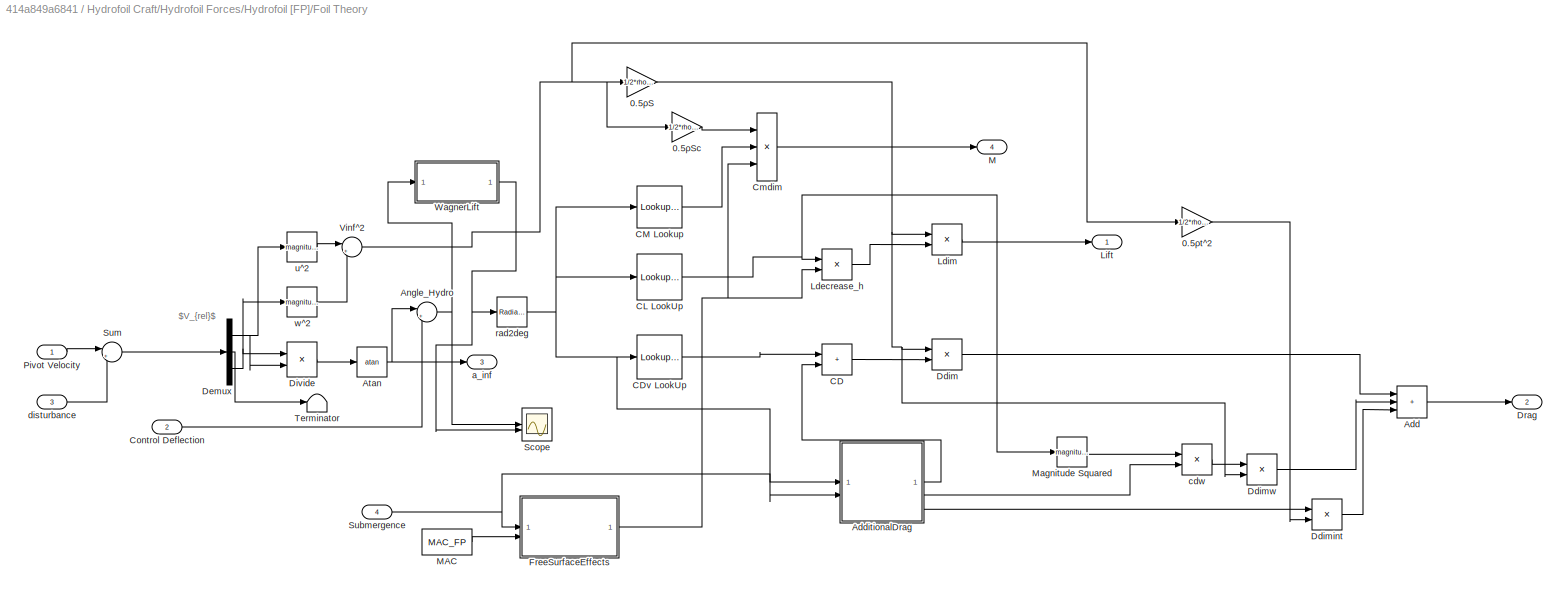
BLOCK [SubSystem] Hydrofoil Craft/Hydrofoil Forces/Hydrofoil [FP]/Foil Theory
BLOCK [Gain] Hydrofoil Craft/Hydrofoil Forces/Hydrofoil [FP]/Foil Theory/0.5ρS
  Gain = 1/2*rho*AfoilFP
BLOCK [Gain] Hydrofoil Craft/Hydrofoil Forces/Hydrofoil [FP]/Foil Theory/0.5ρSc
  Gain = 1/2*rho*AfoilFP*MAC_FP
BLOCK [Gain] Hydrofoil Craft/Hydrofoil Forces/Hydrofoil [FP]/Foil Theory/0.5ρt^2
  Gain = 1/2*rho*tFP^2
BLOCK [Sum] Hydrofoil Craft/Hydrofoil Forces/Hydrofoil [FP]/Foil Theory/Add
  IconShape = rectangular
  Inputs = +++
BLOCK [SubSystem] Hydrofoil Craft/Hydrofoil Forces/Hydrofoil [FP]/Foil Theory/AdditionalDrag
BLOCK [SubSystem] Hydrofoil Craft/Hydrofoil Forces/Hydrofoil [FP]/Foil Theory/AdditionalDrag/Additional Drag
  ErrorFcn = Stateflow.Translate.translate
  PermitHierarchicalResolution = ExplicitOnly
  SFBlockType = MATLAB Function
  TreatAsAtomicUnit = on
BLOCK [Demux] Hydrofoil Craft/Hydrofoil Forces/Hydrofoil [FP]/Foil Theory/AdditionalDrag/Additional Drag/ Demux 
  Outputs = 1
BLOCK [S-Function] Hydrofoil Craft/Hydrofoil Forces/Hydrofoil [FP]/Foil Theory/AdditionalDrag/Additional Drag/ SFunction 
  EnableBusSupport = on
  FunctionName = sf_sfun
  Parameters = usted
  PortCounts = [5 4]
  SFcnIsStateOwnerBlock = off
  SFunctionDeploymentMode = off
  Tag = Stateflow S-Function 5
BLOCK [Terminator] Hydrofoil Craft/Hydrofoil Forces/Hydrofoil [FP]/Foil Theory/AdditionalDrag/Additional Drag/ Terminator 
BLOCK [Inport] Hydrofoil Craft/Hydrofoil Forces/Hydrofoil [FP]/Foil Theory/AdditionalDrag/Additional Drag/c
  Port = 5
BLOCK [Inport] Hydrofoil Craft/Hydrofoil Forces/Hydrofoil [FP]/Foil Theory/AdditionalDrag/Additional Drag/cdind
BLOCK [Outport] Hydrofoil Craft/Hydrofoil Forces/Hydrofoil [FP]/Foil Theory/AdditionalDrag/Additional Drag/cdint
  Port = 3
BLOCK [Outport] Hydrofoil Craft/Hydrofoil Forces/Hydrofoil [FP]/Foil Theory/AdditionalDrag/Additional Drag/cdw
  Port = 2
BLOCK [Outport] Hydrofoil Craft/Hydrofoil Forces/Hydrofoil [FP]/Foil Theory/AdditionalDrag/Additional Drag/dinc
BLOCK [Inport] Hydrofoil Craft/Hydrofoil Forces/Hydrofoil [FP]/Foil Theory/AdditionalDrag/Additional Drag/hsub
  Port = 3
BLOCK [Inport] Hydrofoil Craft/Hydrofoil Forces/Hydrofoil [FP]/Foil Theory/AdditionalDrag/Additional Drag/span
  Port = 2
BLOCK [Inport] Hydrofoil Craft/Hydrofoil Forces/Hydrofoil [FP]/Foil Theory/AdditionalDrag/Additional Drag/t
  Port = 4
BLOCK [Inport] Hydrofoil Craft/Hydrofoil Forces/Hydrofoil [FP]/Foil Theory/AdditionalDrag/Angle
BLOCK [Lookup_n-D] Hydrofoil Craft/Hydrofoil Forces/Hydrofoil [FP]/Foil Theory/AdditionalDrag/CD induced
  BreakpointsForDimension1 = alpha63412wing
  InputPortMap = u0
  InternalRulePriority = Speed
  NumberOfTableDimensions = 1
  RndMeth = Simplest
  Table = cdi63412wing
BLOCK [Outport] Hydrofoil Craft/Hydrofoil Forces/Hydrofoil [FP]/Foil Theory/AdditionalDrag/Cdind
BLOCK [Constant] Hydrofoil Craft/Hydrofoil Forces/Hydrofoil [FP]/Foil Theory/AdditionalDrag/c
  Value = MAC_FP
BLOCK [Outport] Hydrofoil Craft/Hydrofoil Forces/Hydrofoil [FP]/Foil Theory/AdditionalDrag/cdw//cl2
  Port = 2
BLOCK [Inport] Hydrofoil Craft/Hydrofoil Forces/Hydrofoil [FP]/Foil Theory/AdditionalDrag/hsub
  Port = 2
BLOCK [Outport] Hydrofoil Craft/Hydrofoil Forces/Hydrofoil [FP]/Foil Theory/AdditionalDrag/int
  Port = 3
BLOCK [Constant] Hydrofoil Craft/Hydrofoil Forces/Hydrofoil [FP]/Foil Theory/AdditionalDrag/span
  Value = spanFP
BLOCK [Constant] Hydrofoil Craft/Hydrofoil Forces/Hydrofoil [FP]/Foil Theory/AdditionalDrag/t
  Value = tFP
BLOCK [Sum] Hydrofoil Craft/Hydrofoil Forces/Hydrofoil [FP]/Foil Theory/Angle_Hydro
  Inputs = |++
BLOCK [Trigonometry] Hydrofoil Craft/Hydrofoil Forces/Hydrofoil [FP]/Foil Theory/Atan
  Operator = atan
BLOCK [Sum] Hydrofoil Craft/Hydrofoil Forces/Hydrofoil [FP]/Foil Theory/CD
  IconShape = rectangular
BLOCK [Lookup_n-D] Hydrofoil Craft/Hydrofoil Forces/Hydrofoil [FP]/Foil Theory/CDv LookUp
  BreakpointsForDimension1 = alpha63412wing
  InputPortMap = u0
  InternalRulePriority = Speed
  NumberOfTableDimensions = 1
  RndMeth = Simplest
  Table = cdv63412wing
BLOCK [Lookup_n-D] Hydrofoil Craft/Hydrofoil Forces/Hydrofoil [FP]/Foil Theory/CL LookUp
  BreakpointsForDimension1 = alpha63412wing
  InputPortMap = u0
  InternalRulePriority = Speed
  NumberOfTableDimensions = 1
  RndMeth = Simplest
  Table = cl63412wing
BLOCK [Lookup_n-D] Hydrofoil Craft/Hydrofoil Forces/Hydrofoil [FP]/Foil Theory/CM Lookup
  BreakpointsForDimension1 = alpha63412wing
  InputPortMap = u0
  InternalRulePriority = Speed
  NumberOfTableDimensions = 1
  RndMeth = Simplest
  Table = cm63412wing
BLOCK [Product] Hydrofoil Craft/Hydrofoil Forces/Hydrofoil [FP]/Foil Theory/Cmdim
  Inputs = 3
BLOCK [Inport] Hydrofoil Craft/Hydrofoil Forces/Hydrofoil [FP]/Foil Theory/Control Deflection
  Port = 2
BLOCK [Product] Hydrofoil Craft/Hydrofoil Forces/Hydrofoil [FP]/Foil Theory/Ddim
BLOCK [Product] Hydrofoil Craft/Hydrofoil Forces/Hydrofoil [FP]/Foil Theory/Ddimint
BLOCK [Product] Hydrofoil Craft/Hydrofoil Forces/Hydrofoil [FP]/Foil Theory/Ddimw
BLOCK [Demux] Hydrofoil Craft/Hydrofoil Forces/Hydrofoil [FP]/Foil Theory/Demux
  Outputs = 3
BLOCK [Product] Hydrofoil Craft/Hydrofoil Forces/Hydrofoil [FP]/Foil Theory/Divide
  Inputs = */
BLOCK [Outport] Hydrofoil Craft/Hydrofoil Forces/Hydrofoil [FP]/Foil Theory/Drag
  Port = 2
BLOCK [SubSystem] Hydrofoil Craft/Hydrofoil Forces/Hydrofoil [FP]/Foil Theory/FreeSurfaceEffects
  ErrorFcn = Stateflow.Translate.translate
  PermitHierarchicalResolution = ExplicitOnly
  SFBlockType = MATLAB Function
  TreatAsAtomicUnit = on
BLOCK [Demux] Hydrofoil Craft/Hydrofoil Forces/Hydrofoil [FP]/Foil Theory/FreeSurfaceEffects/ Demux 
  Outputs = 1
BLOCK [S-Function] Hydrofoil Craft/Hydrofoil Forces/Hydrofoil [FP]/Foil Theory/FreeSurfaceEffects/ SFunction 
  EnableBusSupport = on
  FunctionName = sf_sfun
  PortCounts = [2 2]
  SFcnIsStateOwnerBlock = off
  SFunctionDeploymentMode = off
  Tag = Stateflow S-Function 11
BLOCK [Terminator] Hydrofoil Craft/Hydrofoil Forces/Hydrofoil [FP]/Foil Theory/FreeSurfaceEffects/ Terminator 
BLOCK [Outport] Hydrofoil Craft/Hydrofoil Forces/Hydrofoil [FP]/Foil Theory/FreeSurfaceEffects/Ldec
BLOCK [Inport] Hydrofoil Craft/Hydrofoil Forces/Hydrofoil [FP]/Foil Theory/FreeSurfaceEffects/MAC
  Port = 2
BLOCK [Inport] Hydrofoil Craft/Hydrofoil Forces/Hydrofoil [FP]/Foil Theory/FreeSurfaceEffects/h_sub
BLOCK [Product] Hydrofoil Craft/Hydrofoil Forces/Hydrofoil [FP]/Foil Theory/Ldecrease_h
BLOCK [Product] Hydrofoil Craft/Hydrofoil Forces/Hydrofoil [FP]/Foil Theory/Ldim
BLOCK [Outport] Hydrofoil Craft/Hydrofoil Forces/Hydrofoil [FP]/Foil Theory/Lift
BLOCK [Outport] Hydrofoil Craft/Hydrofoil Forces/Hydrofoil [FP]/Foil Theory/M
  Port = 4
BLOCK [Constant] Hydrofoil Craft/Hydrofoil Forces/Hydrofoil [FP]/Foil Theory/MAC
  Value = MAC_FP
BLOCK [Math] Hydrofoil Craft/Hydrofoil Forces/Hydrofoil [FP]/Foil Theory/Magnitude Squared
  Operator = magnitude^2
BLOCK [Inport] Hydrofoil Craft/Hydrofoil Forces/Hydrofoil [FP]/Foil Theory/Pivot Velocity
BLOCK [Scope] Hydrofoil Craft/Hydrofoil Forces/Hydrofoil [FP]/Foil Theory/Scope
  Floating = off
  NumInputPorts = 2
  ScopeSpecificationString = Simulink.scopes.TimeScopeBlockCfg('CurrentConfiguration', extmgr.ConfigurationSet(extmgr.Configuration('Core','General UI',true),extmgr.Configuration('Core','Source UI',true),extmgr.Configuration('Sources','WiredSimulink',true,'DataLoggingVariableName','ScopeData2'),extmgr.Configuration('Visuals','Time Domain',true,'SerializedDisplays',{struct('MinYLimReal','0.00301','MaxYLimReal','0.11371','YLabe...<+1499ch>
BLOCK [Inport] Hydrofoil Craft/Hydrofoil Forces/Hydrofoil [FP]/Foil Theory/Submergence
  Port = 4
BLOCK [Sum] Hydrofoil Craft/Hydrofoil Forces/Hydrofoil [FP]/Foil Theory/Sum
  Inputs = |+-
BLOCK [Terminator] Hydrofoil Craft/Hydrofoil Forces/Hydrofoil [FP]/Foil Theory/Terminator
BLOCK [Sum] Hydrofoil Craft/Hydrofoil Forces/Hydrofoil [FP]/Foil Theory/Vinf^2
  Inputs = |++
BLOCK [SubSystem] Hydrofoil Craft/Hydrofoil Forces/Hydrofoil [FP]/Foil Theory/WagnerLift
BLOCK [Sum] Hydrofoil Craft/Hydrofoil Forces/Hydrofoil [FP]/Foil Theory/WagnerLift/Add
  IconShape = rectangular
  Inputs = +++
BLOCK [Sum] Hydrofoil Craft/Hydrofoil Forces/Hydrofoil [FP]/Foil Theory/WagnerLift/Add1
  IconShape = rectangular
BLOCK [Inport] Hydrofoil Craft/Hydrofoil Forces/Hydrofoil [FP]/Foil Theory/WagnerLift/AoA Input
BLOCK [Outport] Hydrofoil Craft/Hydrofoil Forces/Hydrofoil [FP]/Foil Theory/WagnerLift/DynOut
BLOCK [Gain] Hydrofoil Craft/Hydrofoil Forces/Hydrofoil [FP]/Foil Theory/WagnerLift/Gain
  Gain = 0.5
BLOCK [Product] Hydrofoil Craft/Hydrofoil Forces/Hydrofoil [FP]/Foil Theory/WagnerLift/Product
BLOCK [Product] Hydrofoil Craft/Hydrofoil Forces/Hydrofoil [FP]/Foil Theory/WagnerLift/Product1
BLOCK [Step] Hydrofoil Craft/Hydrofoil Forces/Hydrofoil [FP]/Foil Theory/WagnerLift/init_dynamic
  SampleTime = 0
  Time = 0.7
BLOCK [Step] Hydrofoil Craft/Hydrofoil Forces/Hydrofoil [FP]/Foil Theory/WagnerLift/level_model
  After = 0
  Before = 1
  SampleTime = 0
  Time = 0.7
BLOCK [TransferFcn] Hydrofoil Craft/Hydrofoil Forces/Hydrofoil [FP]/Foil Theory/WagnerLift/wagn1
  Denominator = [1 wage1]
  Numerator = [wagC1*wage1]
BLOCK [TransferFcn] Hydrofoil Craft/Hydrofoil Forces/Hydrofoil [FP]/Foil Theory/WagnerLift/wagn2
  Denominator = [1 wage2]
  Numerator = [wagC2*wage2]
BLOCK [Outport] Hydrofoil Craft/Hydrofoil Forces/Hydrofoil [FP]/Foil Theory/a_inf
  Port = 3
BLOCK [Product] Hydrofoil Craft/Hydrofoil Forces/Hydrofoil [FP]/Foil Theory/cdw
BLOCK [Inport] Hydrofoil Craft/Hydrofoil Forces/Hydrofoil [FP]/Foil Theory/disturbance
  Port = 3
BLOCK [Reference] Hydrofoil Craft/Hydrofoil Forces/Hydrofoil [FP]/Foil Theory/rad2deg  REF=simulink_extras/Transformations/Radians
to Degrees
  SourceBlock = simulink_extras/Transformations/Radians\nto Degrees
  SourceType = RadiansToDegrees
BLOCK [Math] Hydrofoil Craft/Hydrofoil Forces/Hydrofoil [FP]/Foil Theory/u^2
  Operator = magnitude^2
BLOCK [Math] Hydrofoil Craft/Hydrofoil Forces/Hydrofoil [FP]/Foil Theory/w^2
  Operator = magnitude^2
BLOCK [Sum] Hydrofoil Craft/Hydrofoil Forces/Hydrofoil [FP]/FoilNED
  Inputs = |++
BLOCK [Outport] Hydrofoil Craft/Hydrofoil Forces/Hydrofoil [FP]/Force - Moment
BLOCK [SubSystem] Hydrofoil Craft/Hydrofoil Forces/Hydrofoil [FP]/Force and Moment Calculation
  ErrorFcn = Stateflow.Translate.translate
  LibrarySourceBlock = simulink/User-Defined\nFunctions/MATLAB Function
  PermitHierarchicalResolution = ExplicitOnly
  SFBlockType = MATLAB Function
  TreatAsAtomicUnit = on
BLOCK [Demux] Hydrofoil Craft/Hydrofoil Forces/Hydrofoil [FP]/Force and Moment Calculation/ Demux 
  Outputs = 1
BLOCK [S-Function] Hydrofoil Craft/Hydrofoil Forces/Hydrofoil [FP]/Force and Moment Calculation/ SFunction 
  EnableBusSupport = on
  FunctionName = sf_sfun
  PortCounts = [4 7]
  SFcnIsStateOwnerBlock = off
  SFunctionDeploymentMode = off
  Tag = Stateflow S-Function 6
BLOCK [Terminator] Hydrofoil Craft/Hydrofoil Forces/Hydrofoil [FP]/Force and Moment Calculation/ Terminator 
BLOCK [Inport] Hydrofoil Craft/Hydrofoil Forces/Hydrofoil [FP]/Force and Moment Calculation/D
  Port = 2
BLOCK [Outport] Hydrofoil Craft/Hydrofoil Forces/Hydrofoil [FP]/Force and Moment Calculation/FX
BLOCK [Outport] Hydrofoil Craft/Hydrofoil Forces/Hydrofoil [FP]/Force and Moment Calculation/FY
  Port = 2
BLOCK [Outport] Hydrofoil Craft/Hydrofoil Forces/Hydrofoil [FP]/Force and Moment Calculation/FZ
  Port = 3
BLOCK [Inport] Hydrofoil Craft/Hydrofoil Forces/Hydrofoil [FP]/Force and Moment Calculation/L
BLOCK [Outport] Hydrofoil Craft/Hydrofoil Forces/Hydrofoil [FP]/Force and Moment Calculation/MX
  Port = 4
BLOCK [Outport] Hydrofoil Craft/Hydrofoil Forces/Hydrofoil [FP]/Force and Moment Calculation/MY
  Port = 5
BLOCK [Outport] Hydrofoil Craft/Hydrofoil Forces/Hydrofoil [FP]/Force and Moment Calculation/MZ
  Port = 6
BLOCK [Inport] Hydrofoil Craft/Hydrofoil Forces/Hydrofoil [FP]/Force and Moment Calculation/Marm
  Port = 4
BLOCK [Inport] Hydrofoil Craft/Hydrofoil Forces/Hydrofoil [FP]/Force and Moment Calculation/ainf
  Port = 3
BLOCK [Product] Hydrofoil Craft/Hydrofoil Forces/Hydrofoil [FP]/Matrix Multiply
  Multiplication = Matrix(*)
BLOCK [Product] Hydrofoil Craft/Hydrofoil Forces/Hydrofoil [FP]/Matrix Multiply1
  Multiplication = Matrix(*)
BLOCK [Sum] Hydrofoil Craft/Hydrofoil Forces/Hydrofoil [FP]/Msum
  IconShape = rectangular
  Inputs = +++
BLOCK [Mux] Hydrofoil Craft/Hydrofoil Forces/Hydrofoil [FP]/Mux
  DisplayOption = bar
  Inputs = 3
BLOCK [Mux] Hydrofoil Craft/Hydrofoil Forces/Hydrofoil [FP]/Mux1
  DisplayOption = bar
  Inputs = 6
BLOCK [Mux] Hydrofoil Craft/Hydrofoil Forces/Hydrofoil [FP]/Mux2
  DisplayOption = bar
  Inputs = 3
BLOCK [Reference] Hydrofoil Craft/Hydrofoil Forces/Hydrofoil [FP]/NED2BF  REF=mssSimulink/Modelling/Kinematics/Euler angles to
inverse rotation
matrix
  SourceBlock = mssSimulink/Modelling/Kinematics/Euler angles to\ninverse rotation\nmatrix
  SourceType = Rbn
BLOCK [Inport] Hydrofoil Craft/Hydrofoil Forces/Hydrofoil [FP]/NEDpos
  Port = 3
BLOCK [Product] Hydrofoil Craft/Hydrofoil Forces/Hydrofoil [FP]/Product
BLOCK [SubSystem] Hydrofoil Craft/Hydrofoil Forces/Hydrofoil [FP]/STRUT FP
BLOCK [Lookup_n-D] Hydrofoil Craft/Hydrofoil Forces/Hydrofoil [FP]/STRUT FP/CD strut
  BreakpointsForDimension1 = alpha0012
  InputPortMap = u0
  InternalRulePriority = Speed
  NumberOfTableDimensions = 1
  RndMeth = Simplest
  Table = cd0012
BLOCK [Product] Hydrofoil Craft/Hydrofoil Forces/Hydrofoil [FP]/STRUT FP/Ddim
  Inputs = 3
BLOCK [Gain] Hydrofoil Craft/Hydrofoil Forces/Hydrofoil [FP]/STRUT FP/Gain
  Gain = 0.5*rho*csF
BLOCK [Gain] Hydrofoil Craft/Hydrofoil Forces/Hydrofoil [FP]/STRUT FP/Gain1
  Gain = 0.5
BLOCK [Outport] Hydrofoil Craft/Hydrofoil Forces/Hydrofoil [FP]/STRUT FP/K
  Port = 2
BLOCK [Outport] Hydrofoil Craft/Hydrofoil Forces/Hydrofoil [FP]/STRUT FP/M
  Port = 3
BLOCK [Math] Hydrofoil Craft/Hydrofoil Forces/Hydrofoil [FP]/STRUT FP/Magnitude Squared
  Operator = magnitude^2
BLOCK [Product] Hydrofoil Craft/Hydrofoil Forces/Hydrofoil [FP]/STRUT FP/Mpitch
BLOCK [Selector] Hydrofoil Craft/Hydrofoil Forces/Hydrofoil [FP]/STRUT FP/Selector
  IndexOptions = Index vector (dialog)
  Indices = [1]
  InputPortWidth = 3
  OutputSizes = 1
BLOCK [Selector] Hydrofoil Craft/Hydrofoil Forces/Hydrofoil [FP]/STRUT FP/Selector1
  IndexOptions = Index vector (dialog)
  Indices = [3]
  InputPortWidth = 3
  OutputSizes = 1
BLOCK [Sum] Hydrofoil Craft/Hydrofoil Forces/Hydrofoil [FP]/STRUT FP/Sum
  Inputs = |-+
BLOCK [Outport] Hydrofoil Craft/Hydrofoil Forces/Hydrofoil [FP]/STRUT FP/X
BLOCK [Constant] Hydrofoil Craft/Hydrofoil Forces/Hydrofoil [FP]/STRUT FP/a
  Value = 0
BLOCK [Constant] Hydrofoil Craft/Hydrofoil Forces/Hydrofoil [FP]/STRUT FP/a1
  Value = csF
BLOCK [Gain] Hydrofoil Craft/Hydrofoil Forces/Hydrofoil [FP]/STRUT FP/flip
  Gain = -1
BLOCK [Inport] Hydrofoil Craft/Hydrofoil Forces/Hydrofoil [FP]/STRUT FP/h_sub
BLOCK [SubSystem] Hydrofoil Craft/Hydrofoil Forces/Hydrofoil [FP]/STRUT FP/lateralDamp
  ErrorFcn = Stateflow.Translate.translate
  PermitHierarchicalResolution = ExplicitOnly
  SFBlockType = MATLAB Function
  TreatAsAtomicUnit = on
BLOCK [Demux] Hydrofoil Craft/Hydrofoil Forces/Hydrofoil [FP]/STRUT FP/lateralDamp/ Demux 
  Outputs = 1
BLOCK [S-Function] Hydrofoil Craft/Hydrofoil Forces/Hydrofoil [FP]/STRUT FP/lateralDamp/ SFunction 
  EnableBusSupport = on
  FunctionName = sf_sfun
  Parameters = rho
  PortCounts = [5 2]
  SFcnIsStateOwnerBlock = off
  SFunctionDeploymentMode = off
  Tag = Stateflow S-Function 7
BLOCK [Terminator] Hydrofoil Craft/Hydrofoil Forces/Hydrofoil [FP]/STRUT FP/lateralDamp/ Terminator 
BLOCK [Inport] Hydrofoil Craft/Hydrofoil Forces/Hydrofoil [FP]/STRUT FP/lateralDamp/V
  Port = 3
BLOCK [Inport] Hydrofoil Craft/Hydrofoil Forces/Hydrofoil [FP]/STRUT FP/lateralDamp/cs
  Port = 5
BLOCK [Inport] Hydrofoil Craft/Hydrofoil Forces/Hydrofoil [FP]/STRUT FP/lateralDamp/h_sub
BLOCK [Inport] Hydrofoil Craft/Hydrofoil Forces/Hydrofoil [FP]/STRUT FP/lateralDamp/p
  Port = 4
BLOCK [Outport] Hydrofoil Craft/Hydrofoil Forces/Hydrofoil [FP]/STRUT FP/lateralDamp/strutK
BLOCK [Inport] Hydrofoil Craft/Hydrofoil Forces/Hydrofoil [FP]/STRUT FP/lateralDamp/zs
  Port = 2
BLOCK [Inport] Hydrofoil Craft/Hydrofoil Forces/Hydrofoil [FP]/STRUT FP/lz
  Port = 3
BLOCK [Inport] Hydrofoil Craft/Hydrofoil Forces/Hydrofoil [FP]/STRUT FP/p
  Port = 4
BLOCK [Inport] Hydrofoil Craft/Hydrofoil Forces/Hydrofoil [FP]/STRUT FP/vel
  Port = 2
BLOCK [Selector] Hydrofoil Craft/Hydrofoil Forces/Hydrofoil [FP]/Selector
  IndexOptions = Index vector (dialog)
  Indices = [3]
  InputPortWidth = 3
  NameLocation = right
  OutputSizes = 1
BLOCK [Sum] Hydrofoil Craft/Hydrofoil Forces/Hydrofoil [FP]/Sum
  Inputs = |++
BLOCK [Reference] Hydrofoil Craft/Hydrofoil Forces/Hydrofoil [FP]/Wave velocitycalc  REF=mssSimulink/Environment/Waves/Wave velocitycalc
  SourceBlock = mssSimulink/Environment/Waves/Wave velocitycalc
  SourceType = Wave velocitycalc
BLOCK [Inport] Hydrofoil Craft/Hydrofoil Forces/Hydrofoil [FP]/[p q r]
  Port = 2
BLOCK [Inport] Hydrofoil Craft/Hydrofoil Forces/Hydrofoil [FP]/[u v w]
BLOCK [Inport] Hydrofoil Craft/Hydrofoil Forces/Hydrofoil [FP]/euler_angles
  Port = 4
BLOCK [Selector] Hydrofoil Craft/Hydrofoil Forces/Hydrofoil [FP]/rollrate
  IndexOptions = Index vector (dialog)
  Indices = [1]
  InputPortWidth = 3
  OutputSizes = 1
BLOCK [Selector] Hydrofoil Craft/Hydrofoil Forces/Hydrofoil [FP]/u
  IndexOptions = Index vector (dialog)
  Indices = [1]
  InputPortWidth = 3
  OutputSizes = 1
BLOCK [Sum] Hydrofoil Craft/Hydrofoil Forces/Hydrofoil [FP]/wave_elev_sub
  Inputs = |++
  NameLocation = left
BLOCK [Inport] Hydrofoil Craft/Hydrofoil Forces/Hydrofoil [FP]/waves
  Port = 6
BLOCK [SubSystem] Hydrofoil Craft/Hydrofoil Forces/Hydrofoil [FS]
BLOCK [Gain] Hydrofoil Craft/Hydrofoil Forces/Hydrofoil [FS]/-0.5ρ2pi Ld,p
  Gain = -1/2*rho*2*pi*LFSd
BLOCK [Sum] Hydrofoil Craft/Hydrofoil Forces/Hydrofoil [FS]/Add
  IconShape = rectangular
BLOCK [Sum] Hydrofoil Craft/Hydrofoil Forces/Hydrofoil [FS]/Add1
  IconShape = rectangular
  Inputs = +++
BLOCK [Reference] Hydrofoil Craft/Hydrofoil Forces/Hydrofoil [FS]/BF2NED  REF=mssSimulink/Modelling/Kinematics/Euler angles to
rotation matrix
  SourceBlock = mssSimulink/Modelling/Kinematics/Euler angles to\nrotation matrix
  SourceType = Euler2R
BLOCK [SubSystem] Hydrofoil Craft/Hydrofoil Forces/Hydrofoil [FS]/CP and Submergence
  ErrorFcn = Stateflow.Translate.translate
  LibrarySourceBlock = simulink/User-Defined\nFunctions/MATLAB Function
  PermitHierarchicalResolution = ExplicitOnly
  SFBlockType = MATLAB Function
  TreatAsAtomicUnit = on
BLOCK [Demux] Hydrofoil Craft/Hydrofoil Forces/Hydrofoil [FS]/CP and Submergence/ Demux 
  Outputs = 1
BLOCK [S-Function] Hydrofoil Craft/Hydrofoil Forces/Hydrofoil [FS]/CP and Submergence/ SFunction 
  EnableBusSupport = on
  FunctionName = sf_sfun
  PortCounts = [2 4]
  SFcnIsStateOwnerBlock = off
  SFunctionDeploymentMode = off
  Tag = Stateflow S-Function 9
BLOCK [Terminator] Hydrofoil Craft/Hydrofoil Forces/Hydrofoil [FS]/CP and Submergence/ Terminator 
BLOCK [Inport] Hydrofoil Craft/Hydrofoil Forces/Hydrofoil [FS]/CP and Submergence/ac
BLOCK [Inport] Hydrofoil Craft/Hydrofoil Forces/Hydrofoil [FS]/CP and Submergence/foil_arm
  Port = 2
BLOCK [Outport] Hydrofoil Craft/Hydrofoil Forces/Hydrofoil [FS]/CP and Submergence/lx
BLOCK [Outport] Hydrofoil Craft/Hydrofoil Forces/Hydrofoil [FS]/CP and Submergence/ly
  Port = 2
BLOCK [Outport] Hydrofoil Craft/Hydrofoil Forces/Hydrofoil [FS]/CP and Submergence/lz
  Port = 3
BLOCK [Inport] Hydrofoil Craft/Hydrofoil Forces/Hydrofoil [FS]/Control Deflection (ac)
  Port = 5
BLOCK [Reference] Hydrofoil Craft/Hydrofoil Forces/Hydrofoil [FS]/Cross Product  REF=matrix_library/Cross Product
  SourceBlock = matrix_library/Cross Product
  SourceType = CrossProduct
BLOCK [Constant] Hydrofoil Craft/Hydrofoil Forces/Hydrofoil [FS]/Foil Position
  Value = foilFS_ARM
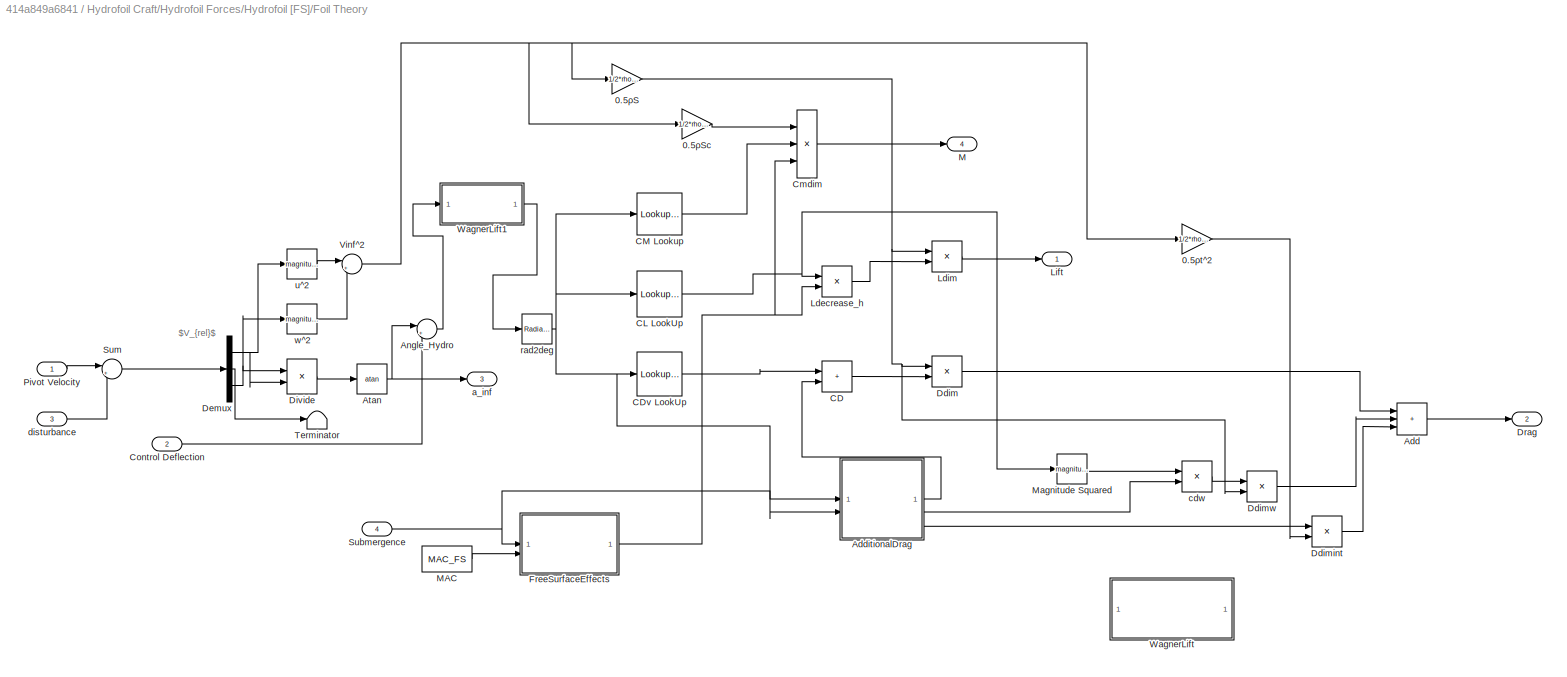
BLOCK [SubSystem] Hydrofoil Craft/Hydrofoil Forces/Hydrofoil [FS]/Foil Theory
BLOCK [Gain] Hydrofoil Craft/Hydrofoil Forces/Hydrofoil [FS]/Foil Theory/0.5ρS
  Gain = 1/2*rho*AfoilFP
BLOCK [Gain] Hydrofoil Craft/Hydrofoil Forces/Hydrofoil [FS]/Foil Theory/0.5ρSc
  Gain = 1/2*rho*AfoilFS*MAC_FS
BLOCK [Gain] Hydrofoil Craft/Hydrofoil Forces/Hydrofoil [FS]/Foil Theory/0.5ρt^2
  Gain = 1/2*rho*tFS^2
BLOCK [Sum] Hydrofoil Craft/Hydrofoil Forces/Hydrofoil [FS]/Foil Theory/Add
  IconShape = rectangular
  Inputs = +++
BLOCK [SubSystem] Hydrofoil Craft/Hydrofoil Forces/Hydrofoil [FS]/Foil Theory/AdditionalDrag
BLOCK [SubSystem] Hydrofoil Craft/Hydrofoil Forces/Hydrofoil [FS]/Foil Theory/AdditionalDrag/Additional Drag
  ErrorFcn = Stateflow.Translate.translate
  PermitHierarchicalResolution = ExplicitOnly
  SFBlockType = MATLAB Function
  TreatAsAtomicUnit = on
BLOCK [Demux] Hydrofoil Craft/Hydrofoil Forces/Hydrofoil [FS]/Foil Theory/AdditionalDrag/Additional Drag/ Demux 
  Outputs = 1
BLOCK [S-Function] Hydrofoil Craft/Hydrofoil Forces/Hydrofoil [FS]/Foil Theory/AdditionalDrag/Additional Drag/ SFunction 
  EnableBusSupport = on
  FunctionName = sf_sfun
  Parameters = usted
  PortCounts = [5 4]
  SFcnIsStateOwnerBlock = off
  SFunctionDeploymentMode = off
  Tag = Stateflow S-Function 13
BLOCK [Terminator] Hydrofoil Craft/Hydrofoil Forces/Hydrofoil [FS]/Foil Theory/AdditionalDrag/Additional Drag/ Terminator 
BLOCK [Inport] Hydrofoil Craft/Hydrofoil Forces/Hydrofoil [FS]/Foil Theory/AdditionalDrag/Additional Drag/c
  Port = 5
BLOCK [Inport] Hydrofoil Craft/Hydrofoil Forces/Hydrofoil [FS]/Foil Theory/AdditionalDrag/Additional Drag/cdind
BLOCK [Outport] Hydrofoil Craft/Hydrofoil Forces/Hydrofoil [FS]/Foil Theory/AdditionalDrag/Additional Drag/cdint
  Port = 3
BLOCK [Outport] Hydrofoil Craft/Hydrofoil Forces/Hydrofoil [FS]/Foil Theory/AdditionalDrag/Additional Drag/cdw
  Port = 2
BLOCK [Outport] Hydrofoil Craft/Hydrofoil Forces/Hydrofoil [FS]/Foil Theory/AdditionalDrag/Additional Drag/dinc
BLOCK [Inport] Hydrofoil Craft/Hydrofoil Forces/Hydrofoil [FS]/Foil Theory/AdditionalDrag/Additional Drag/hsub
  Port = 3
BLOCK [Inport] Hydrofoil Craft/Hydrofoil Forces/Hydrofoil [FS]/Foil Theory/AdditionalDrag/Additional Drag/span
  Port = 2
BLOCK [Inport] Hydrofoil Craft/Hydrofoil Forces/Hydrofoil [FS]/Foil Theory/AdditionalDrag/Additional Drag/t
  Port = 4
BLOCK [Inport] Hydrofoil Craft/Hydrofoil Forces/Hydrofoil [FS]/Foil Theory/AdditionalDrag/Angle
BLOCK [Lookup_n-D] Hydrofoil Craft/Hydrofoil Forces/Hydrofoil [FS]/Foil Theory/AdditionalDrag/CD induced
  BreakpointsForDimension1 = alpha63412wing
  InputPortMap = u0
  InternalRulePriority = Speed
  NumberOfTableDimensions = 1
  RndMeth = Simplest
  Table = cdi63412wing
BLOCK [Outport] Hydrofoil Craft/Hydrofoil Forces/Hydrofoil [FS]/Foil Theory/AdditionalDrag/Cdind
BLOCK [Constant] Hydrofoil Craft/Hydrofoil Forces/Hydrofoil [FS]/Foil Theory/AdditionalDrag/c
  Value = MAC_FS
BLOCK [Outport] Hydrofoil Craft/Hydrofoil Forces/Hydrofoil [FS]/Foil Theory/AdditionalDrag/cdw//cl2
  Port = 2
BLOCK [Inport] Hydrofoil Craft/Hydrofoil Forces/Hydrofoil [FS]/Foil Theory/AdditionalDrag/hsub
  Port = 2
BLOCK [Outport] Hydrofoil Craft/Hydrofoil Forces/Hydrofoil [FS]/Foil Theory/AdditionalDrag/int
  Port = 3
BLOCK [Constant] Hydrofoil Craft/Hydrofoil Forces/Hydrofoil [FS]/Foil Theory/AdditionalDrag/span
  Value = spanFS
BLOCK [Constant] Hydrofoil Craft/Hydrofoil Forces/Hydrofoil [FS]/Foil Theory/AdditionalDrag/t
  Value = tFS
BLOCK [Sum] Hydrofoil Craft/Hydrofoil Forces/Hydrofoil [FS]/Foil Theory/Angle_Hydro
  Inputs = |++
BLOCK [Trigonometry] Hydrofoil Craft/Hydrofoil Forces/Hydrofoil [FS]/Foil Theory/Atan
  Operator = atan
BLOCK [Sum] Hydrofoil Craft/Hydrofoil Forces/Hydrofoil [FS]/Foil Theory/CD
  IconShape = rectangular
BLOCK [Lookup_n-D] Hydrofoil Craft/Hydrofoil Forces/Hydrofoil [FS]/Foil Theory/CDv LookUp
  BreakpointsForDimension1 = alpha63412wing
  InputPortMap = u0
  InternalRulePriority = Speed
  NumberOfTableDimensions = 1
  RndMeth = Simplest
  Table = cdv63412wing
BLOCK [Lookup_n-D] Hydrofoil Craft/Hydrofoil Forces/Hydrofoil [FS]/Foil Theory/CL LookUp
  BreakpointsForDimension1 = alpha63412wing
  InputPortMap = u0
  InternalRulePriority = Speed
  NumberOfTableDimensions = 1
  RndMeth = Simplest
  Table = cl63412wing
BLOCK [Lookup_n-D] Hydrofoil Craft/Hydrofoil Forces/Hydrofoil [FS]/Foil Theory/CM Lookup
  BreakpointsForDimension1 = alpha63412wing
  InputPortMap = u0
  InternalRulePriority = Speed
  NumberOfTableDimensions = 1
  RndMeth = Simplest
  Table = cm63412wing
BLOCK [Product] Hydrofoil Craft/Hydrofoil Forces/Hydrofoil [FS]/Foil Theory/Cmdim
  Inputs = 3
BLOCK [Inport] Hydrofoil Craft/Hydrofoil Forces/Hydrofoil [FS]/Foil Theory/Control Deflection
  Port = 2
BLOCK [Product] Hydrofoil Craft/Hydrofoil Forces/Hydrofoil [FS]/Foil Theory/Ddim
BLOCK [Product] Hydrofoil Craft/Hydrofoil Forces/Hydrofoil [FS]/Foil Theory/Ddimint
BLOCK [Product] Hydrofoil Craft/Hydrofoil Forces/Hydrofoil [FS]/Foil Theory/Ddimw
BLOCK [Demux] Hydrofoil Craft/Hydrofoil Forces/Hydrofoil [FS]/Foil Theory/Demux
  Outputs = 3
BLOCK [Product] Hydrofoil Craft/Hydrofoil Forces/Hydrofoil [FS]/Foil Theory/Divide
  Inputs = */
BLOCK [Outport] Hydrofoil Craft/Hydrofoil Forces/Hydrofoil [FS]/Foil Theory/Drag
  Port = 2
BLOCK [SubSystem] Hydrofoil Craft/Hydrofoil Forces/Hydrofoil [FS]/Foil Theory/FreeSurfaceEffects
  ErrorFcn = Stateflow.Translate.translate
  PermitHierarchicalResolution = ExplicitOnly
  SFBlockType = MATLAB Function
  TreatAsAtomicUnit = on
BLOCK [Demux] Hydrofoil Craft/Hydrofoil Forces/Hydrofoil [FS]/Foil Theory/FreeSurfaceEffects/ Demux 
  Outputs = 1
BLOCK [S-Function] Hydrofoil Craft/Hydrofoil Forces/Hydrofoil [FS]/Foil Theory/FreeSurfaceEffects/ SFunction 
  EnableBusSupport = on
  FunctionName = sf_sfun
  PortCounts = [2 2]
  SFcnIsStateOwnerBlock = off
  SFunctionDeploymentMode = off
  Tag = Stateflow S-Function 15
BLOCK [Terminator] Hydrofoil Craft/Hydrofoil Forces/Hydrofoil [FS]/Foil Theory/FreeSurfaceEffects/ Terminator 
BLOCK [Outport] Hydrofoil Craft/Hydrofoil Forces/Hydrofoil [FS]/Foil Theory/FreeSurfaceEffects/Ldec
BLOCK [Inport] Hydrofoil Craft/Hydrofoil Forces/Hydrofoil [FS]/Foil Theory/FreeSurfaceEffects/MAC
  Port = 2
BLOCK [Inport] Hydrofoil Craft/Hydrofoil Forces/Hydrofoil [FS]/Foil Theory/FreeSurfaceEffects/h_sub
BLOCK [Product] Hydrofoil Craft/Hydrofoil Forces/Hydrofoil [FS]/Foil Theory/Ldecrease_h
BLOCK [Product] Hydrofoil Craft/Hydrofoil Forces/Hydrofoil [FS]/Foil Theory/Ldim
BLOCK [Outport] Hydrofoil Craft/Hydrofoil Forces/Hydrofoil [FS]/Foil Theory/Lift
BLOCK [Outport] Hydrofoil Craft/Hydrofoil Forces/Hydrofoil [FS]/Foil Theory/M
  Port = 4
BLOCK [Constant] Hydrofoil Craft/Hydrofoil Forces/Hydrofoil [FS]/Foil Theory/MAC
  Value = MAC_FS
BLOCK [Math] Hydrofoil Craft/Hydrofoil Forces/Hydrofoil [FS]/Foil Theory/Magnitude Squared
  Operator = magnitude^2
BLOCK [Inport] Hydrofoil Craft/Hydrofoil Forces/Hydrofoil [FS]/Foil Theory/Pivot Velocity
BLOCK [Inport] Hydrofoil Craft/Hydrofoil Forces/Hydrofoil [FS]/Foil Theory/Submergence
  Port = 4
BLOCK [Sum] Hydrofoil Craft/Hydrofoil Forces/Hydrofoil [FS]/Foil Theory/Sum
  Inputs = |+-
BLOCK [Terminator] Hydrofoil Craft/Hydrofoil Forces/Hydrofoil [FS]/Foil Theory/Terminator
BLOCK [Sum] Hydrofoil Craft/Hydrofoil Forces/Hydrofoil [FS]/Foil Theory/Vinf^2
  Inputs = |++
BLOCK [SubSystem] Hydrofoil Craft/Hydrofoil Forces/Hydrofoil [FS]/Foil Theory/WagnerLift
  Commented = on
BLOCK [Sum] Hydrofoil Craft/Hydrofoil Forces/Hydrofoil [FS]/Foil Theory/WagnerLift/Add
  IconShape = rectangular
  Inputs = +++
BLOCK [Inport] Hydrofoil Craft/Hydrofoil Forces/Hydrofoil [FS]/Foil Theory/WagnerLift/AoA Input
BLOCK [Outport] Hydrofoil Craft/Hydrofoil Forces/Hydrofoil [FS]/Foil Theory/WagnerLift/DynOut
BLOCK [Gain] Hydrofoil Craft/Hydrofoil Forces/Hydrofoil [FS]/Foil Theory/WagnerLift/Gain
  Gain = 0.5
BLOCK [TransferFcn] Hydrofoil Craft/Hydrofoil Forces/Hydrofoil [FS]/Foil Theory/WagnerLift/wagn1
  Denominator = [1 wage1]
  Numerator = [wagC1*wage1]
BLOCK [TransferFcn] Hydrofoil Craft/Hydrofoil Forces/Hydrofoil [FS]/Foil Theory/WagnerLift/wagn2
  Denominator = [1 wage2]
  Numerator = [wagC2*wage2]
BLOCK [SubSystem] Hydrofoil Craft/Hydrofoil Forces/Hydrofoil [FS]/Foil Theory/WagnerLift1
BLOCK [Sum] Hydrofoil Craft/Hydrofoil Forces/Hydrofoil [FS]/Foil Theory/WagnerLift1/Add
  IconShape = rectangular
  Inputs = +++
BLOCK [Sum] Hydrofoil Craft/Hydrofoil Forces/Hydrofoil [FS]/Foil Theory/WagnerLift1/Add1
  IconShape = rectangular
BLOCK [Inport] Hydrofoil Craft/Hydrofoil Forces/Hydrofoil [FS]/Foil Theory/WagnerLift1/AoA Input
BLOCK [Outport] Hydrofoil Craft/Hydrofoil Forces/Hydrofoil [FS]/Foil Theory/WagnerLift1/DynOut
BLOCK [Gain] Hydrofoil Craft/Hydrofoil Forces/Hydrofoil [FS]/Foil Theory/WagnerLift1/Gain
  Gain = 0.5
BLOCK [Product] Hydrofoil Craft/Hydrofoil Forces/Hydrofoil [FS]/Foil Theory/WagnerLift1/Product
BLOCK [Product] Hydrofoil Craft/Hydrofoil Forces/Hydrofoil [FS]/Foil Theory/WagnerLift1/Product1
BLOCK [Step] Hydrofoil Craft/Hydrofoil Forces/Hydrofoil [FS]/Foil Theory/WagnerLift1/init_dynamic
  SampleTime = 0
  Time = 0.7
BLOCK [Step] Hydrofoil Craft/Hydrofoil Forces/Hydrofoil [FS]/Foil Theory/WagnerLift1/level_model
  After = 0
  Before = 1
  SampleTime = 0
  Time = 0.7
BLOCK [TransferFcn] Hydrofoil Craft/Hydrofoil Forces/Hydrofoil [FS]/Foil Theory/WagnerLift1/wagn1
  Denominator = [1 wage1]
  Numerator = [wagC1*wage1]
BLOCK [TransferFcn] Hydrofoil Craft/Hydrofoil Forces/Hydrofoil [FS]/Foil Theory/WagnerLift1/wagn2
  Denominator = [1 wage2]
  Numerator = [wagC2*wage2]
BLOCK [Outport] Hydrofoil Craft/Hydrofoil Forces/Hydrofoil [FS]/Foil Theory/a_inf
  Port = 3
BLOCK [Product] Hydrofoil Craft/Hydrofoil Forces/Hydrofoil [FS]/Foil Theory/cdw
BLOCK [Inport] Hydrofoil Craft/Hydrofoil Forces/Hydrofoil [FS]/Foil Theory/disturbance
  Port = 3
BLOCK [Reference] Hydrofoil Craft/Hydrofoil Forces/Hydrofoil [FS]/Foil Theory/rad2deg  REF=simulink_extras/Transformations/Radians
to Degrees
  SourceBlock = simulink_extras/Transformations/Radians\nto Degrees
  SourceType = RadiansToDegrees
BLOCK [Math] Hydrofoil Craft/Hydrofoil Forces/Hydrofoil [FS]/Foil Theory/u^2
  Operator = magnitude^2
BLOCK [Math] Hydrofoil Craft/Hydrofoil Forces/Hydrofoil [FS]/Foil Theory/w^2
  Operator = magnitude^2
BLOCK [Sum] Hydrofoil Craft/Hydrofoil Forces/Hydrofoil [FS]/FoilNED
  Inputs = |++
BLOCK [Outport] Hydrofoil Craft/Hydrofoil Forces/Hydrofoil [FS]/Force - Moment
BLOCK [SubSystem] Hydrofoil Craft/Hydrofoil Forces/Hydrofoil [FS]/Force and Moment Calculation
  ErrorFcn = Stateflow.Translate.translate
  LibrarySourceBlock = simulink/User-Defined\nFunctions/MATLAB Function
  PermitHierarchicalResolution = ExplicitOnly
  SFBlockType = MATLAB Function
  TreatAsAtomicUnit = on
BLOCK [Demux] Hydrofoil Craft/Hydrofoil Forces/Hydrofoil [FS]/Force and Moment Calculation/ Demux 
  Outputs = 1
BLOCK [S-Function] Hydrofoil Craft/Hydrofoil Forces/Hydrofoil [FS]/Force and Moment Calculation/ SFunction 
  EnableBusSupport = on
  FunctionName = sf_sfun
  PortCounts = [4 7]
  SFcnIsStateOwnerBlock = off
  SFunctionDeploymentMode = off
  Tag = Stateflow S-Function 18
BLOCK [Terminator] Hydrofoil Craft/Hydrofoil Forces/Hydrofoil [FS]/Force and Moment Calculation/ Terminator 
BLOCK [Inport] Hydrofoil Craft/Hydrofoil Forces/Hydrofoil [FS]/Force and Moment Calculation/D
  Port = 2
BLOCK [Outport] Hydrofoil Craft/Hydrofoil Forces/Hydrofoil [FS]/Force and Moment Calculation/FX
BLOCK [Outport] Hydrofoil Craft/Hydrofoil Forces/Hydrofoil [FS]/Force and Moment Calculation/FY
  Port = 2
BLOCK [Outport] Hydrofoil Craft/Hydrofoil Forces/Hydrofoil [FS]/Force and Moment Calculation/FZ
  Port = 3
BLOCK [Inport] Hydrofoil Craft/Hydrofoil Forces/Hydrofoil [FS]/Force and Moment Calculation/L
BLOCK [Outport] Hydrofoil Craft/Hydrofoil Forces/Hydrofoil [FS]/Force and Moment Calculation/MX
  Port = 4
BLOCK [Outport] Hydrofoil Craft/Hydrofoil Forces/Hydrofoil [FS]/Force and Moment Calculation/MY
  Port = 5
BLOCK [Outport] Hydrofoil Craft/Hydrofoil Forces/Hydrofoil [FS]/Force and Moment Calculation/MZ
  Port = 6
BLOCK [Inport] Hydrofoil Craft/Hydrofoil Forces/Hydrofoil [FS]/Force and Moment Calculation/Marm
  Port = 4
BLOCK [Inport] Hydrofoil Craft/Hydrofoil Forces/Hydrofoil [FS]/Force and Moment Calculation/ainf
  Port = 3
BLOCK [Product] Hydrofoil Craft/Hydrofoil Forces/Hydrofoil [FS]/Matrix Multiply
  Multiplication = Matrix(*)
BLOCK [Product] Hydrofoil Craft/Hydrofoil Forces/Hydrofoil [FS]/Matrix Multiply1
  Multiplication = Matrix(*)
BLOCK [Sum] Hydrofoil Craft/Hydrofoil Forces/Hydrofoil [FS]/Msum
  IconShape = rectangular
  Inputs = +++
BLOCK [Mux] Hydrofoil Craft/Hydrofoil Forces/Hydrofoil [FS]/Mux
  DisplayOption = bar
  Inputs = 3
BLOCK [Mux] Hydrofoil Craft/Hydrofoil Forces/Hydrofoil [FS]/Mux1
  DisplayOption = bar
  Inputs = 6
BLOCK [Mux] Hydrofoil Craft/Hydrofoil Forces/Hydrofoil [FS]/Mux2
  DisplayOption = bar
  Inputs = 3
BLOCK [Reference] Hydrofoil Craft/Hydrofoil Forces/Hydrofoil [FS]/NED2BF  REF=mssSimulink/Modelling/Kinematics/Euler angles to
inverse rotation
matrix
  SourceBlock = mssSimulink/Modelling/Kinematics/Euler angles to\ninverse rotation\nmatrix
  SourceType = Rbn
BLOCK [Inport] Hydrofoil Craft/Hydrofoil Forces/Hydrofoil [FS]/NEDpos
  Port = 3
BLOCK [Product] Hydrofoil Craft/Hydrofoil Forces/Hydrofoil [FS]/Product
BLOCK [SubSystem] Hydrofoil Craft/Hydrofoil Forces/Hydrofoil [FS]/STRUT FP
BLOCK [Lookup_n-D] Hydrofoil Craft/Hydrofoil Forces/Hydrofoil [FS]/STRUT FP/CD strut
  BreakpointsForDimension1 = alpha0012
  InputPortMap = u0
  InternalRulePriority = Speed
  NumberOfTableDimensions = 1
  RndMeth = Simplest
  Table = cd0012
BLOCK [Product] Hydrofoil Craft/Hydrofoil Forces/Hydrofoil [FS]/STRUT FP/Ddim
  Inputs = 3
BLOCK [Gain] Hydrofoil Craft/Hydrofoil Forces/Hydrofoil [FS]/STRUT FP/Gain
  Gain = 0.5*rho*csF
BLOCK [Gain] Hydrofoil Craft/Hydrofoil Forces/Hydrofoil [FS]/STRUT FP/Gain1
  Gain = 0.5
BLOCK [Outport] Hydrofoil Craft/Hydrofoil Forces/Hydrofoil [FS]/STRUT FP/K
  Port = 2
BLOCK [Outport] Hydrofoil Craft/Hydrofoil Forces/Hydrofoil [FS]/STRUT FP/M
  Port = 3
BLOCK [Math] Hydrofoil Craft/Hydrofoil Forces/Hydrofoil [FS]/STRUT FP/Magnitude Squared
  Operator = magnitude^2
BLOCK [Product] Hydrofoil Craft/Hydrofoil Forces/Hydrofoil [FS]/STRUT FP/Mpitch
BLOCK [Selector] Hydrofoil Craft/Hydrofoil Forces/Hydrofoil [FS]/STRUT FP/Selector
  IndexOptions = Index vector (dialog)
  Indices = [1]
  InputPortWidth = 3
  OutputSizes = 1
BLOCK [Selector] Hydrofoil Craft/Hydrofoil Forces/Hydrofoil [FS]/STRUT FP/Selector1
  IndexOptions = Index vector (dialog)
  Indices = [3]
  InputPortWidth = 3
  OutputSizes = 1
BLOCK [Sum] Hydrofoil Craft/Hydrofoil Forces/Hydrofoil [FS]/STRUT FP/Sum
  Inputs = |-+
BLOCK [Outport] Hydrofoil Craft/Hydrofoil Forces/Hydrofoil [FS]/STRUT FP/X
BLOCK [Constant] Hydrofoil Craft/Hydrofoil Forces/Hydrofoil [FS]/STRUT FP/a
  Value = 0
BLOCK [Constant] Hydrofoil Craft/Hydrofoil Forces/Hydrofoil [FS]/STRUT FP/a1
  Value = csF
BLOCK [Gain] Hydrofoil Craft/Hydrofoil Forces/Hydrofoil [FS]/STRUT FP/flip
  Gain = -1
BLOCK [Inport] Hydrofoil Craft/Hydrofoil Forces/Hydrofoil [FS]/STRUT FP/h_sub
BLOCK [SubSystem] Hydrofoil Craft/Hydrofoil Forces/Hydrofoil [FS]/STRUT FP/lateralDamp
  ErrorFcn = Stateflow.Translate.translate
  PermitHierarchicalResolution = ExplicitOnly
  SFBlockType = MATLAB Function
  TreatAsAtomicUnit = on
BLOCK [Demux] Hydrofoil Craft/Hydrofoil Forces/Hydrofoil [FS]/STRUT FP/lateralDamp/ Demux 
  Outputs = 1
BLOCK [S-Function] Hydrofoil Craft/Hydrofoil Forces/Hydrofoil [FS]/STRUT FP/lateralDamp/ SFunction 
  EnableBusSupport = on
  FunctionName = sf_sfun
  Parameters = rho
  PortCounts = [5 2]
  SFcnIsStateOwnerBlock = off
  SFunctionDeploymentMode = off
  Tag = Stateflow S-Function 19
BLOCK [Terminator] Hydrofoil Craft/Hydrofoil Forces/Hydrofoil [FS]/STRUT FP/lateralDamp/ Terminator 
BLOCK [Inport] Hydrofoil Craft/Hydrofoil Forces/Hydrofoil [FS]/STRUT FP/lateralDamp/V
  Port = 3
BLOCK [Inport] Hydrofoil Craft/Hydrofoil Forces/Hydrofoil [FS]/STRUT FP/lateralDamp/cs
  Port = 5
BLOCK [Inport] Hydrofoil Craft/Hydrofoil Forces/Hydrofoil [FS]/STRUT FP/lateralDamp/h_sub
BLOCK [Inport] Hydrofoil Craft/Hydrofoil Forces/Hydrofoil [FS]/STRUT FP/lateralDamp/p
  Port = 4
BLOCK [Outport] Hydrofoil Craft/Hydrofoil Forces/Hydrofoil [FS]/STRUT FP/lateralDamp/strutK
BLOCK [Inport] Hydrofoil Craft/Hydrofoil Forces/Hydrofoil [FS]/STRUT FP/lateralDamp/zs
  Port = 2
BLOCK [Inport] Hydrofoil Craft/Hydrofoil Forces/Hydrofoil [FS]/STRUT FP/lz
  Port = 3
BLOCK [Inport] Hydrofoil Craft/Hydrofoil Forces/Hydrofoil [FS]/STRUT FP/p
  Port = 4
BLOCK [Inport] Hydrofoil Craft/Hydrofoil Forces/Hydrofoil [FS]/STRUT FP/vel
  Port = 2
BLOCK [Selector] Hydrofoil Craft/Hydrofoil Forces/Hydrofoil [FS]/Selector
  IndexOptions = Index vector (dialog)
  Indices = [3]
  InputPortWidth = 3
  NameLocation = right
  OutputSizes = 1
BLOCK [Sum] Hydrofoil Craft/Hydrofoil Forces/Hydrofoil [FS]/Sum
  Inputs = |++
BLOCK [Reference] Hydrofoil Craft/Hydrofoil Forces/Hydrofoil [FS]/Wave velocitycalc  REF=mssSimulink/Environment/Waves/Wave velocitycalc
  SourceBlock = mssSimulink/Environment/Waves/Wave velocitycalc
  SourceType = Wave velocitycalc
BLOCK [Inport] Hydrofoil Craft/Hydrofoil Forces/Hydrofoil [FS]/[p q r]
  Port = 2
BLOCK [Inport] Hydrofoil Craft/Hydrofoil Forces/Hydrofoil [FS]/[u v w]
BLOCK [Inport] Hydrofoil Craft/Hydrofoil Forces/Hydrofoil [FS]/euler_angles
  Port = 4
BLOCK [Selector] Hydrofoil Craft/Hydrofoil Forces/Hydrofoil [FS]/rollrate
  IndexOptions = Index vector (dialog)
  Indices = [1]
  InputPortWidth = 3
  OutputSizes = 1
BLOCK [Selector] Hydrofoil Craft/Hydrofoil Forces/Hydrofoil [FS]/u
  IndexOptions = Index vector (dialog)
  Indices = [1]
  InputPortWidth = 3
  OutputSizes = 1
BLOCK [Sum] Hydrofoil Craft/Hydrofoil Forces/Hydrofoil [FS]/wave_elev_sub
  Inputs = |++
  NameLocation = left
BLOCK [Inport] Hydrofoil Craft/Hydrofoil Forces/Hydrofoil [FS]/waves
  Port = 6
BLOCK [Inport] Hydrofoil Craft/Hydrofoil Forces/NEDpos
  Port = 6
BLOCK [Inport] Hydrofoil Craft/Hydrofoil Forces/[p q r]
  Port = 2
BLOCK [Inport] Hydrofoil Craft/Hydrofoil Forces/[u v w]
BLOCK [Inport] Hydrofoil Craft/Hydrofoil Forces/environment
  Port = 8
BLOCK [Inport] Hydrofoil Craft/Hydrofoil Forces/euler_angles
  Port = 7
BLOCK [SubSystem] Hydrofoil Craft/Kinematics Equations
  ErrorFcn = Stateflow.Translate.translate
  LibrarySourceBlock = simulink/User-Defined\nFunctions/MATLAB Function
  PermitHierarchicalResolution = ExplicitOnly
  SFBlockType = MATLAB Function
  TreatAsAtomicUnit = on
BLOCK [Demux] Hydrofoil Craft/Kinematics Equations/ Demux 
  Outputs = 1
BLOCK [S-Function] Hydrofoil Craft/Kinematics Equations/ SFunction 
  EnableBusSupport = on
  FunctionName = sf_sfun
  PortCounts = [3 3]
  SFcnIsStateOwnerBlock = off
  SFunctionDeploymentMode = off
  Tag = Stateflow S-Function 12
BLOCK [Terminator] Hydrofoil Craft/Kinematics Equations/ Terminator 
BLOCK [Outport] Hydrofoil Craft/Kinematics Equations/euler_ang_rates
  Port = 2
BLOCK [Inport] Hydrofoil Craft/Kinematics Equations/euler_angles
BLOCK [Outport] Hydrofoil Craft/Kinematics Equations/pos_rates
BLOCK [Inport] Hydrofoil Craft/Kinematics Equations/pqr
  Port = 3
BLOCK [Inport] Hydrofoil Craft/Kinematics Equations/uvw
  Port = 2
BLOCK [Mux] Hydrofoil Craft/Mux1
  DisplayOption = bar
  Inputs = 3
BLOCK [Mux] Hydrofoil Craft/Mux2
  DisplayOption = bar
  Inputs = 3
BLOCK [Mux] Hydrofoil Craft/Mux3
  DisplayOption = bar
  Inputs = 2
BLOCK [Mux] Hydrofoil Craft/Mux4
  DisplayOption = bar
  Inputs = 3
BLOCK [SubSystem] Hydrofoil Craft/Propeller Forces
BLOCK [Gain] Hydrofoil Craft/Propeller Forces/Gain
  Gain = 1/60
BLOCK [Mux] Hydrofoil Craft/Propeller Forces/Mux
  DisplayOption = bar
  Inputs = 6
BLOCK [Reference] Hydrofoil Craft/Propeller Forces/Open-water propeller characteristics  REF=mssSimulink/Modelling/Propulsion/Open-water propeller
characteristics
  SourceBlock = mssSimulink/Modelling/Propulsion/Open-water propeller\ncharacteristics
  SourceType = Open-water propeller characteristics
BLOCK [Product] Hydrofoil Craft/Propeller Forces/Product
BLOCK [Product] Hydrofoil Craft/Propeller Forces/Product1
BLOCK [Constant] Hydrofoil Craft/Propeller Forces/Propeller Arm
  Value = zpr
BLOCK [Selector] Hydrofoil Craft/Propeller Forces/Selector
  IndexOptions = Index vector (dialog)
  Indices = [1]
  InputPortWidth = 3
  OutputSizes = 1
BLOCK [Outport] Hydrofoil Craft/Propeller Forces/prop_tau
BLOCK [Inport] Hydrofoil Craft/Propeller Forces/rpm
BLOCK [Inport] Hydrofoil Craft/Propeller Forces/uvw
  Port = 2
BLOCK [Constant] Hydrofoil Craft/Propeller Forces/wake
  Value = 1-propwake
BLOCK [SubSystem] Hydrofoil Craft/Pulse
BLOCK [Sum] Hydrofoil Craft/Pulse/Add1
  IconShape = rectangular
BLOCK [Sum] Hydrofoil Craft/Pulse/Add2
  IconShape = rectangular
BLOCK [Sum] Hydrofoil Craft/Pulse/Add3
  IconShape = rectangular
BLOCK [Sum] Hydrofoil Craft/Pulse/Add4
  IconShape = rectangular
BLOCK [Demux] Hydrofoil Craft/Pulse/Demux
  Outputs = 6
BLOCK [Mux] Hydrofoil Craft/Pulse/Mux
  DisplayOption = bar
  Inputs = 6
BLOCK [Reference] Hydrofoil Craft/Pulse/Ramp  REF=simulink/Sources/Ramp
  SourceBlock = simulink/Sources/Ramp
  SourceType = Ramp
BLOCK [Reference] Hydrofoil Craft/Pulse/Ramp1  REF=simulink/Sources/Ramp
  SourceBlock = simulink/Sources/Ramp
  SourceType = Ramp
BLOCK [Reference] Hydrofoil Craft/Pulse/Ramp2  REF=simulink/Sources/Ramp
  SourceBlock = simulink/Sources/Ramp
  SourceType = Ramp
BLOCK [Reference] Hydrofoil Craft/Pulse/Ramp3  REF=simulink/Sources/Ramp
  SourceBlock = simulink/Sources/Ramp
  SourceType = Ramp
BLOCK [Scope] Hydrofoil Craft/Pulse/Scope
  Floating = off
  NumInputPorts = 1
  ScopeSpecificationString = Simulink.scopes.TimeScopeBlockCfg('CurrentConfiguration', extmgr.ConfigurationSet(extmgr.Configuration('Core','General UI',true),extmgr.Configuration('Core','Source UI',true),extmgr.Configuration('Sources','WiredSimulink',true,'DataLoggingVariableName','ScopeData1'),extmgr.Configuration('Visuals','Time Domain',true,'SerializedDisplays',{struct('MinYLimReal','-1.00000','MaxYLimReal','1.00000','YLab...<+1483ch>
BLOCK [Step] Hydrofoil Craft/Pulse/Step1
  After = 500
  SampleTime = 0
  Time = 4.5
BLOCK [Step] Hydrofoil Craft/Pulse/Step2
  After = -500
  SampleTime = 0
  Time = 5.5
BLOCK [Sum] Hydrofoil Craft/Pulse/Sum1
  Inputs = |++
BLOCK [Inport] Hydrofoil Craft/Pulse/in
BLOCK [Outport] Hydrofoil Craft/Pulse/out
BLOCK [Scope] Hydrofoil Craft/Scope
  Floating = off
  NumInputPorts = 1
  ScopeSpecificationString = Simulink.scopes.TimeScopeBlockCfg('CurrentConfiguration', extmgr.ConfigurationSet(extmgr.Configuration('Core','General UI',true),extmgr.Configuration('Core','Source UI',true),extmgr.Configuration('Sources','WiredSimulink',true,'DataLoggingVariableName','ScopeData1'),extmgr.Configuration('Visuals','Time Domain',true,'SerializedDisplays',{struct('MinYLimReal','-0.01516','MaxYLimReal','0.00321','YLab...<+1491ch>
BLOCK [Outport] Hydrofoil Craft/accelerations
  Port = 5
BLOCK [Constant] Hydrofoil Craft/constU
  Value = usted
BLOCK [Constant] Hydrofoil Craft/constYAW
  Value = 0
BLOCK [Inport] Hydrofoil Craft/environment
  Port = 7
BLOCK [Outport] Hydrofoil Craft/euler_angles
  Port = 2
BLOCK [Selector] Hydrofoil Craft/imu_sense
  IndexOptions = Index vector (dialog)
  Indices = [1:3]
  InputPortWidth = 6
  OutputSizes = 1
BLOCK [Integrator] Hydrofoil Craft/int_EUL-ANG
  InitialCondition = [0;0;0]
BLOCK [Integrator] Hydrofoil Craft/int_POS
  InitialCondition = [0;0;-0.3]
BLOCK [Integrator] Hydrofoil Craft/int_RATES
  InitialCondition = [7;0;0;0;0;0]
BLOCK [Outport] Hydrofoil Craft/pos
BLOCK [Outport] Hydrofoil Craft/pqr
  Port = 4
BLOCK [Inport] Hydrofoil Craft/rpm
BLOCK [Outport] Hydrofoil Craft/uvw
  Port = 3
BLOCK [Mux] Mux
  DisplayOption = bar
  Inputs = 6
  NameLocation = right
BLOCK [Mux] Mux1
  DisplayOption = bar
  Inputs = 2
BLOCK [Reference] PID Controller  REF=slpidlib/PID Controller
  LibrarySourceBlock = simulink/Continuous/PID Controller
  SourceBlock = slpidlib/PID Controller
  SourceType = PID 1dof
BLOCK [Reference] Radians to Degrees  REF=simulink_extras/Transformations/Radians
to Degrees
  SourceBlock = simulink_extras/Transformations/Radians\nto Degrees
  SourceType = RadiansToDegrees
BLOCK [Reference] Radians to Degrees1  REF=simulink_extras/Transformations/Radians
to Degrees
  SourceBlock = simulink_extras/Transformations/Radians\nto Degrees
  SourceType = RadiansToDegrees
BLOCK [Record] Record1
  FileSettingsInternal = {"entries":[{"content":{"excelSettings":{"content":{},"type":"Streamout.ExcelSettings"}},"type":"Streamout.FileSettingStorage","uuid":""}],"packageUris":["http:\/\/schema.mathworks.com\/mf0\/streamout_blocks\/R2020a"],"version":"1.0"}
  Layout = [1 1]
  SignalsInternal = {"entries":[{"content":{"signals":[{"content":{"blockPath":[],"dimensions":[6],"domain":"","hasChildren":true,"lineColor":"#7e2f8e","lineWidth":2,"port":1,"sid":[""],"signalID":1,"signalName":"Mux"},"type":"RecordBlkView.Signal","uuid":""},{"content":{"blockPath":[],"channel":[1],"dimensions":[6],"domain":"","lineColor":"#ff6929","lineWidth":2,"parentID":1,"plots":[ 1, 27 ],"port":1,"sid":[""],"si...<+1355ch>
  VisualizationBindings = {"sparklinesplugin":{"info":[{"bindingParametersList":[],"subplotID":1}]}}
BLOCK [Scope] Scope
  Floating = off
  NumInputPorts = 3
  ScopeSpecificationString = Simulink.scopes.TimeScopeBlockCfg('CurrentConfiguration', extmgr.ConfigurationSet(extmgr.Configuration('Core','General UI',true),extmgr.Configuration('Core','Source UI',true),extmgr.Configuration('Sources','WiredSimulink',true,'DataLoggingVariableName','ScopeData1'),extmgr.Configuration('Visuals','Time Domain',true,'SerializedDisplays',{struct('MinYLimReal','-1.00573','MaxYLimReal','0.07096','YLab...<+2973ch>
BLOCK [Scope] Scope1
  Floating = off
  NumInputPorts = 3
  ScopeSpecificationString = Simulink.scopes.TimeScopeBlockCfg('CurrentConfiguration', extmgr.ConfigurationSet(extmgr.Configuration('Core','General UI',true),extmgr.Configuration('Core','Source UI',true),extmgr.Configuration('Sources','WiredSimulink',true,'DataLoggingVariableName','ScopeData1'),extmgr.Configuration('Visuals','Time Domain',true,'SerializedDisplays',{struct('MinYLimReal','-0.08699','MaxYLimReal','6.09149','YLab...<+2942ch>
BLOCK [Scope] Scope2
  Floating = off
  NumInputPorts = 1
  ScopeSpecificationString = Simulink.scopes.TimeScopeBlockCfg('CurrentConfiguration', extmgr.ConfigurationSet(extmgr.Configuration('Core','General UI',true),extmgr.Configuration('Core','Source UI',true),extmgr.Configuration('Sources','WiredSimulink',true,'DataLoggingVariableName','ScopeData1'),extmgr.Configuration('Visuals','Time Domain',true,'SerializedDisplays',{struct('MinYLimReal','-0.08699','MaxYLimReal','6.09149','YLab...<+1496ch>
BLOCK [Sum] Sum
  Inputs = |-+
BLOCK [Sum] Sum1
  Inputs = |++
BLOCK [VariantSource] Variant Source
BLOCK [VariantSource] Variant Source1
BLOCK [Reference] Waves  REF=mssSimulink/Environment/Waves/Waves
  SourceBlock = mssSimulink/Environment/Waves/Waves
  SourceType = Waves
BLOCK [Demux] angles
  Outputs = 3
BLOCK [Demux] angvelocity
  Outputs = 3
BLOCK [SubSystem] control delay A
BLOCK [Integrator] control delay A/Integrator
  InitialConditionSource = external
BLOCK [Sum] control delay A/Sum2
  Inputs = |+-
BLOCK [Inport] control delay A/Utrim
BLOCK [Outport] control delay A/actuatorOUT
BLOCK [Inport] control delay A/controlIN
  Port = 2
BLOCK [Gain] control delay A/delayU
  Gain = actuation_tau
BLOCK [Gain] control delay A/delayUc
  Gain = actuation_tau
BLOCK [Constant] ctrlUtrim
  Value = [0.0574;0.0574;0.052061]
BLOCK [Selector] get_rpm
  IndexOptions = Index vector (dialog)
  Indices = [1]
  InputPortWidth = 7
  OutputSizes = 1
BLOCK [Selector] get_state_ref
  IndexOptions = Index vector (dialog)
  Indices = [2:7]
  InputPortWidth = 7
  OutputSizes = 1
BLOCK [Demux] linvelocity
  Outputs = 3
BLOCK [Outport] p
  Port = 5
BLOCK [Outport] phi
  Port = 2
BLOCK [Demux] position
  Outputs = 3
BLOCK [Outport] q
  Port = 6
BLOCK [SubSystem] second_order control delay
BLOCK [Gain] second_order control delay/1//J
  Gain = 1/0.04
BLOCK [Integrator] second_order control delay/Integrator
  InitialConditionSource = external
BLOCK [Integrator] second_order control delay/Integrator1
BLOCK [Saturate] second_order control delay/Saturation
BLOCK [Sum] second_order control delay/Sum1
  Inputs = |+-
BLOCK [Sum] second_order control delay/Sum2
  Inputs = |+-
BLOCK [Inport] second_order control delay/Utrim
BLOCK [Outport] second_order control delay/actuatorOUT
BLOCK [Gain] second_order control delay/b
  Gain = 0.7
BLOCK [Inport] second_order control delay/controlIN
  Port = 2
BLOCK [Gain] second_order control delay/p
  Gain = 15
BLOCK [SubSystem] sense
BLOCK [Demux] sense/Demux
  Outputs = 3
BLOCK [SubSystem] sense/GPS
  TreatAsAtomicUnit = on
BLOCK [Reference] sense/GPS/BF2NED  REF=mssSimulink/Modelling/Kinematics/Euler angles to
rotation matrix
  SourceBlock = mssSimulink/Modelling/Kinematics/Euler angles to\nrotation matrix
  SourceType = Euler2R
BLOCK [Product] sense/GPS/Product
  Multiplication = Matrix(*)
BLOCK [Selector] sense/GPS/Selector
  IndexOptions = Index vector (dialog)
  Indices = [1]
  InputPortWidth = 3
  OutputSizes = 1
BLOCK [Sum] sense/GPS/Sum
  Inputs = |++
BLOCK [Outport] sense/GPS/V_gps
BLOCK [ZeroOrderHold] sense/GPS/Zero-Order Hold
  SampleTime = 1/10
BLOCK [Inport] sense/GPS/euler_angle
  Port = 2
BLOCK [RandomNumber] sense/GPS/gps_noise
  SampleTime = 1/200
  Seed = seed_gps
  Variance = var_gps
BLOCK [Inport] sense/GPS/uvw
BLOCK [Mux] sense/Mux
  DisplayOption = bar
BLOCK [Scope] sense/Scope4
  Floating = off
  NumInputPorts = 3
  ScopeSpecificationString = Simulink.scopes.TimeScopeBlockCfg('CurrentConfiguration', extmgr.ConfigurationSet(extmgr.Configuration('Core','General UI',true),extmgr.Configuration('Core','Source UI',true),extmgr.Configuration('Sources','WiredSimulink',true,'DataLoggingVariableName','ScopeData1'),extmgr.Configuration('Visuals','Time Domain',true,'SerializedDisplays',{struct('MinYLimReal','-0.49315','MaxYLimReal','-0.08421','YLa...<+1623ch>
BLOCK [Scope] sense/Scope5
  Floating = off
  NumInputPorts = 3
  ScopeSpecificationString = Simulink.scopes.TimeScopeBlockCfg('CurrentConfiguration', extmgr.ConfigurationSet(extmgr.Configuration('Core','General UI',true),extmgr.Configuration('Core','Source UI',true),extmgr.Configuration('Sources','WiredSimulink',true,'DataLoggingVariableName','ScopeData1'),extmgr.Configuration('Visuals','Time Domain',true,'SerializedDisplays',{struct('MinYLimReal','6.8282','MaxYLimReal','7.15408','YLabel...<+1608ch>
BLOCK [Scope] sense/Scope6
  Floating = off
  NumInputPorts = 2
  ScopeSpecificationString = Simulink.scopes.TimeScopeBlockCfg('CurrentConfiguration', extmgr.ConfigurationSet(extmgr.Configuration('Core','General UI',true),extmgr.Configuration('Core','Source UI',true),extmgr.Configuration('Sources','WiredSimulink',true,'DataLoggingVariableName','ScopeData2'),extmgr.Configuration('Visuals','Time Domain',true,'SerializedDisplays',{struct('MinYLimReal','-3.53675','MaxYLimReal','3.40649','YLab...<+2259ch>
BLOCK [Scope] sense/Scope7
  Floating = off
  NumInputPorts = 2
  ScopeSpecificationString = Simulink.scopes.TimeScopeBlockCfg('CurrentConfiguration', extmgr.ConfigurationSet(extmgr.Configuration('Core','General UI',true),extmgr.Configuration('Core','Source UI',true),extmgr.Configuration('Sources','WiredSimulink',true,'DataLoggingVariableName','ScopeData3'),extmgr.Configuration('Visuals','Time Domain',true,'SerializedDisplays',{struct('MinYLimReal','-0.24041','MaxYLimReal','0.23593','YLab...<+1606ch>
BLOCK [Scope] sense/Scope8
  Floating = off
  NumInputPorts = 2
  ScopeSpecificationString = Simulink.scopes.TimeScopeBlockCfg('CurrentConfiguration', extmgr.ConfigurationSet(extmgr.Configuration('Core','General UI',true),extmgr.Configuration('Core','Source UI',true),extmgr.Configuration('Sources','WiredSimulink',true,'DataLoggingVariableName','ScopeData4'),extmgr.Configuration('Visuals','Time Domain',true,'SerializedDisplays',{struct('MinYLimReal','-0.32754','MaxYLimReal','-0.25966','YLa...<+1602ch>
BLOCK [Inport] sense/acc
  Port = 5
BLOCK [Inport] sense/angle_rates
  Port = 7
BLOCK [Inport] sense/angles
  Port = 3
BLOCK [Inport] sense/environment
  Port = 6
BLOCK [SubSystem] sense/imu
BLOCK [RandomNumber] sense/imu/Random Number
  SampleTime = 1/200
  Seed = [seed_roll seed_pitch]
  Variance = [var_angle var_angle]
BLOCK [Selector] sense/imu/Selector
  IndexOptions = Index vector (dialog)
  Indices = [1 3]
  InputPortWidth = 3
  OutputSizes = 1
BLOCK [Selector] sense/imu/Selector1
  IndexOptions = Index vector (dialog)
  Indices = [1 2]
  InputPortWidth = 3
  OutputSizes = 1
BLOCK [Selector] sense/imu/Selector2
  IndexOptions = Index vector (dialog)
  Indices = [1 2]
  InputPortWidth = 3
  OutputSizes = 1
BLOCK [Sum] sense/imu/Sum
  Inputs = |++
BLOCK [Sum] sense/imu/Sum1
  Inputs = |++
BLOCK [Sum] sense/imu/Sum2
  Inputs = |++
BLOCK [ZeroOrderHold] sense/imu/Zero-Order Hold
  SampleTime = 1/100
BLOCK [ZeroOrderHold] sense/imu/Zero-Order Hold1
  SampleTime = 1/100
BLOCK [ZeroOrderHold] sense/imu/Zero-Order Hold2
  SampleTime = 1/100
BLOCK [Inport] sense/imu/acc
BLOCK [Reference] sense/imu/acc_noise_low_pass  REF=cstblocks/Linear Parameter Varying/Varying Lowpass Filter
  SourceBlock = cstblocks/Linear Parameter Varying/Varying Lowpass Filter
  SourceType = Varying Lowpass Filter
BLOCK [Inport] sense/imu/angle_rates
  Port = 3
BLOCK [Inport] sense/imu/angles
  Port = 2
BLOCK [Outport] sense/imu/dot_uw
BLOCK [Reference] sense/imu/gyr_noise_low_pass  REF=cstblocks/Linear Parameter Varying/Varying Lowpass Filter
  SourceBlock = cstblocks/Linear Parameter Varying/Varying Lowpass Filter
  SourceType = Varying Lowpass Filter
BLOCK [Reference] sense/imu/noiseacc  REF=simulink/Sources/Band-Limited
White Noise
  SourceBlock = simulink/Sources/Band-Limited\nWhite Noise
  SourceType = Band-Limited White Noise.
BLOCK [Reference] sense/imu/noisegyro  REF=simulink/Sources/Band-Limited
White Noise
  SourceBlock = simulink/Sources/Band-Limited\nWhite Noise
  SourceType = Band-Limited White Noise.
BLOCK [Outport] sense/imu/p_q
  Port = 3
BLOCK [Outport] sense/imu/roll_pitch
  Port = 2
BLOCK [Constant] sense/imu/sensor_bandwidth
  Value = 2*pi()*500
BLOCK [Constant] sense/imu/sensor_bandwidth1
  Value = 2*pi()*520
BLOCK [SubSystem] sense/kalman_fusion
  ErrorFcn = Stateflow.Translate.translate
  PermitHierarchicalResolution = ExplicitOnly
  SFBlockType = MATLAB Function
  SystemSampleTime = deltat
  TreatAsAtomicUnit = on
BLOCK [Demux] sense/kalman_fusion/ Demux 
  Outputs = 1
BLOCK [S-Function] sense/kalman_fusion/ SFunction 
  EnableBusSupport = on
  FunctionName = sf_sfun
  Parameters = deltat
  PortCounts = [4 4]
  SFcnIsStateOwnerBlock = off
  SFunctionDeploymentMode = off
  Tag = Stateflow S-Function 22
BLOCK [Terminator] sense/kalman_fusion/ Terminator 
BLOCK [Inport] sense/kalman_fusion/Vgps
  Port = 2
BLOCK [Inport] sense/kalman_fusion/accXZ
  Port = 3
BLOCK [Inport] sense/kalman_fusion/angles
  Port = 4
BLOCK [Inport] sense/kalman_fusion/sonarH
BLOCK [Outport] sense/kalman_fusion/u
  Port = 2
BLOCK [Outport] sense/kalman_fusion/w
  Port = 3
BLOCK [Outport] sense/kalman_fusion/z
BLOCK [Outport] sense/measured_states
BLOCK [Outport] sense/measured_u
  Port = 2
BLOCK [Inport] sense/position
  Port = 2
BLOCK [SubSystem] sense/sonar
BLOCK [Reference] sense/sonar/BF2NED  REF=mssSimulink/Modelling/Kinematics/Euler angles to
rotation matrix
  SourceBlock = mssSimulink/Modelling/Kinematics/Euler angles to\nrotation matrix
  SourceType = Euler2R
BLOCK [Demux] sense/sonar/Demux
  Outputs = 2
BLOCK [Mux] sense/sonar/Mux
  DisplayOption = bar
  Inputs = 3
BLOCK [RandomNumber] sense/sonar/Random Number
  SampleTime = 1/20
  Seed = seed_sonar
  Variance = var_sonar
BLOCK [Scope] sense/sonar/Scope
  Floating = off
  NumInputPorts = 2
  ScopeSpecificationString = Simulink.scopes.TimeScopeBlockCfg('CurrentConfiguration', extmgr.ConfigurationSet(extmgr.Configuration('Core','General UI',true),extmgr.Configuration('Core','Source UI',true),extmgr.Configuration('Sources','WiredSimulink',true,'DataLoggingVariableName','ScopeData1'),extmgr.Configuration('Visuals','Time Domain',true,'SerializedDisplays',{struct('MinYLimReal','-0.41227','MaxYLimReal','0.02379','YLab...<+1559ch>
BLOCK [Selector] sense/sonar/Selector
  IndexOptions = Index vector (dialog)
  Indices = [3]
  InputPortWidth = 3
  OutputSizes = 1
BLOCK [Sum] sense/sonar/Sum
  Inputs = |++
BLOCK [Inport] sense/sonar/angle_noise
  Port = 4
BLOCK [Inport] sense/sonar/environment
  Port = 3
BLOCK [Outport] sense/sonar/filtered
  Port = 2
BLOCK [SubSystem] sense/sonar/getCGheight
  ErrorFcn = Stateflow.Translate.translate
  PermitHierarchicalResolution = ExplicitOnly
  SFBlockType = MATLAB Function
  SystemSampleTime = 1/20
  TreatAsAtomicUnit = on
BLOCK [Demux] sense/sonar/getCGheight/ Demux 
  Outputs = 1
BLOCK [S-Function] sense/sonar/getCGheight/ SFunction 
  EnableBusSupport = on
  FunctionName = sf_sfun
  Parameters = bA,bB,bC,bD
  PortCounts = [3 3]
  SFcnIsStateOwnerBlock = off
  SFunctionDeploymentMode = off
  Tag = Stateflow S-Function 21
BLOCK [Terminator] sense/sonar/getCGheight/ Terminator 
BLOCK [Inport] sense/sonar/getCGheight/DCM
  Port = 2
BLOCK [Inport] sense/sonar/getCGheight/h_s
BLOCK [Outport] sense/sonar/getCGheight/height_filtered
  Port = 2
BLOCK [Outport] sense/sonar/getCGheight/height_measured
BLOCK [Inport] sense/sonar/getCGheight/sonar_position
  Port = 3
BLOCK [Outport] sense/sonar/measured
BLOCK [Inport] sense/sonar/position
BLOCK [SubSystem] sense/sonar/sensor
BLOCK [Reference] sense/sonar/sensor/BF2NED  REF=mssSimulink/Modelling/Kinematics/Euler angles to
rotation matrix
  SourceBlock = mssSimulink/Modelling/Kinematics/Euler angles to\nrotation matrix
  SourceType = Euler2R
BLOCK [Product] sense/sonar/sensor/Product
  Multiplication = Matrix(*)
BLOCK [Sum] sense/sonar/sensor/Sum
  Inputs = |++
BLOCK [Sum] sense/sonar/sensor/Sum1
  Inputs = |++
BLOCK [Reference] sense/sonar/sensor/Wave velocitycalc  REF=mssSimulink/Environment/Waves/Wave velocitycalc
  SourceBlock = mssSimulink/Environment/Waves/Wave velocitycalc
  SourceType = Wave velocitycalc
BLOCK [Inport] sense/sonar/sensor/angles
  Port = 3
BLOCK [Inport] sense/sonar/sensor/environment
BLOCK [SubSystem] sense/sonar/sensor/get_hs
  ErrorFcn = Stateflow.Translate.translate
  PermitHierarchicalResolution = ExplicitOnly
  SFBlockType = MATLAB Function
  TreatAsAtomicUnit = on
BLOCK [Demux] sense/sonar/sensor/get_hs/ Demux 
  Outputs = 1
BLOCK [S-Function] sense/sonar/sensor/get_hs/ SFunction 
  EnableBusSupport = on
  FunctionName = sf_sfun
  PortCounts = [3 3]
  SFcnIsStateOwnerBlock = off
  SFunctionDeploymentMode = off
  Tag = Stateflow S-Function 20
BLOCK [Terminator] sense/sonar/sensor/get_hs/ Terminator 
BLOCK [Outport] sense/sonar/sensor/get_hs/d_s
  Port = 2
BLOCK [Inport] sense/sonar/sensor/get_hs/euler_angles
  Port = 2
BLOCK [Outport] sense/sonar/sensor/get_hs/h_s
BLOCK [Inport] sense/sonar/sensor/get_hs/positionCG
BLOCK [Inport] sense/sonar/sensor/get_hs/sonar_position
  Port = 3
BLOCK [Inport] sense/sonar/sensor/position
  Port = 2
BLOCK [Outport] sense/sonar/sensor/sonar_height
BLOCK [Inport] sense/sonar/sensor/sonar_pos
  Port = 4
BLOCK [Constant] sense/sonar/sonarpos
  Value = sonar_position
BLOCK [Inport] sense/sonar/theta
  Port = 2
BLOCK [Inport] sense/uvw
  Port = 4
BLOCK [Inport] sense/z
BLOCK [FromWorkspace] setpoint
  VariableName = setpoint_reference
BLOCK [Outport] theta
  Port = 3
BLOCK [Constant] trimRPM
  Value = 1200
BLOCK [Outport] w
  Port = 4
BLOCK [Outport] z
ANNOTATION Controller [Variant]: 1) Add Subsystem or Model blocks as valid variant choices. 2) You cannot connect blocks at this level. At simulation, connectivity is automatically determined, based on the active variant and port name matching.
ANNOTATION Controller [Variant]: LPV-MPC
ANNOTATION Controller [Variant]: LQI
ANNOTATION Controller [Variant]: MPC
ANNOTATION Hydrofoil Craft: $\nu = [u, v, w, p, q, r]$
ANNOTATION Hydrofoil Craft: $\dot{\nu} = M_{RB}^{-1}\left(-C_{RB}(\nu)\nu+\tau\right)$
ANNOTATION Hydrofoil Craft: u, w for now
ANNOTATION Hydrofoil Craft/EOM: $-C_{RB}(\nu)\nu+\tau$
ANNOTATION Hydrofoil Craft/EOM: $M_{RB}^{-1}$
ANNOTATION Hydrofoil Craft/EOM: $M_{RB}^{-1}\left(-C_{RB}(\nu)\nu+\tau\right)$
ANNOTATION Hydrofoil Craft/EOM: Rigid Body Coriolis - Centripetal Matrix
ANNOTATION Hydrofoil Craft/Hydrofoil Forces/Hydrofoil [A]: It is important to note, that by a 2D study, sideslip is NOT taken into account. Calcualting Vinf with respect to v, will result into LARGE X forces due to side forces translating only to 2D L and D
ANNOTATION Hydrofoil Craft/Hydrofoil Forces/Hydrofoil [A]/Foil Theory: $V_{rel}$
ANNOTATION Hydrofoil Craft/Hydrofoil Forces/Hydrofoil [FP]: It is important to note, that by a 2D study, sideslip is NOT taken into account. Calcualting Vinf with respect to v, will result into LARGE X forces due to side forces translating only to 2D L and D
ANNOTATION Hydrofoil Craft/Hydrofoil Forces/Hydrofoil [FP]/Foil Theory: $V_{rel}$
ANNOTATION Hydrofoil Craft/Hydrofoil Forces/Hydrofoil [FS]: It is important to note, that by a 2D study, sideslip is NOT taken into account. Calcualting Vinf with respect to v, will result into LARGE X forces due to side forces translating only to 2D L and D
ANNOTATION Hydrofoil Craft/Hydrofoil Forces/Hydrofoil [FS]/Foil Theory: $V_{rel}$
LINE Controller [Variant]/LPV-MPC-IDP/Adaptive MPC Controller:1 -> Controller [Variant]/LPV-MPC-IDP/control_signal:1
LINE Controller [Variant]/LPV-MPC-IDP/Bus Creator:1 -> Controller [Variant]/LPV-MPC-IDP/Adaptive MPC Controller:1
LINE Controller [Variant]/LPV-MPC-IDP/Bus Selector2:1 -> Controller [Variant]/LPV-MPC-IDP/Gain:1
LINE Controller [Variant]/LPV-MPC-IDP/Bus Selector2:2 -> Controller [Variant]/LPV-MPC-IDP/Gain1:1
LINE Controller [Variant]/LPV-MPC-IDP/Bus Selector2:3 -> Controller [Variant]/LPV-MPC-IDP/Gain2:1
LINE Controller [Variant]/LPV-MPC-IDP/Bus Selector2:4 -> Controller [Variant]/LPV-MPC-IDP/Gain3:1
LINE Controller [Variant]/LPV-MPC-IDP/Bus Selector:1 -> Controller [Variant]/LPV-MPC-IDP/Bus Creator:1
LINE Controller [Variant]/LPV-MPC-IDP/Bus Selector:2 -> Controller [Variant]/LPV-MPC-IDP/Bus Creator:2
LINE Controller [Variant]/LPV-MPC-IDP/Bus Selector:3 -> Controller [Variant]/LPV-MPC-IDP/Bus Creator:3
LINE Controller [Variant]/LPV-MPC-IDP/Bus Selector:4 -> Controller [Variant]/LPV-MPC-IDP/Bus Creator:4
LINE Controller [Variant]/LPV-MPC-IDP/Gain1:1 -> Controller [Variant]/LPV-MPC-IDP/Bus Creator:6
LINE Controller [Variant]/LPV-MPC-IDP/Gain2:1 -> Controller [Variant]/LPV-MPC-IDP/Bus Creator:7
LINE Controller [Variant]/LPV-MPC-IDP/Gain3:1 -> Controller [Variant]/LPV-MPC-IDP/Bus Creator:8
LINE Controller [Variant]/LPV-MPC-IDP/Gain:1 -> Controller [Variant]/LPV-MPC-IDP/Bus Creator:5
LINE Controller [Variant]/LPV-MPC-IDP/LPV System:3 -> Controller [Variant]/LPV-MPC-IDP/Bus Selector:1
LINE Controller [Variant]/LPV-MPC-IDP/LPV System:4 -> Controller [Variant]/LPV-MPC-IDP/Bus Selector2:1
LINE Controller [Variant]/LPV-MPC-IDP/Reference Previewer/MATLAB Function:1 -> Controller [Variant]/LPV-MPC-IDP/Reference Previewer/sequence:1
LINE Controller [Variant]/LPV-MPC-IDP/Reference Previewer/MATLAB Function:2 -> Controller [Variant]/LPV-MPC-IDP/Reference Previewer/current:1
LINE Controller [Variant]/LPV-MPC-IDP/Reference Previewer/MATLAB Function:3 -> Controller [Variant]/LPV-MPC-IDP/Reference Previewer/Memory1:1
LINE Controller [Variant]/LPV-MPC-IDP/Reference Previewer/Memory1:1 -> Controller [Variant]/LPV-MPC-IDP/Reference Previewer/MATLAB Function:1
LINE Controller [Variant]/LPV-MPC-IDP/Reference Previewer:1 -> Controller [Variant]/LPV-MPC-IDP/Adaptive MPC Controller:3
LINE Controller [Variant]/LPV-MPC-IDP/measured_outputs:1 -> Controller [Variant]/LPV-MPC-IDP/Adaptive MPC Controller:2
LINE Controller [Variant]/LPV-MPC-IDP/scheduling_parameter:1 -> Controller [Variant]/LPV-MPC-IDP/LPV System:2
LINE Controller [Variant]/LPV-MPC-IP/Adaptive MPC Controller:1 -> Controller [Variant]/LPV-MPC-IP/control_signal:1
LINE Controller [Variant]/LPV-MPC-IP/Bus Creator:1 -> Controller [Variant]/LPV-MPC-IP/Adaptive MPC Controller:1
LINE Controller [Variant]/LPV-MPC-IP/Bus Selector2:1 -> Controller [Variant]/LPV-MPC-IP/Gain:1
LINE Controller [Variant]/LPV-MPC-IP/Bus Selector2:2 -> Controller [Variant]/LPV-MPC-IP/Gain1:1
LINE Controller [Variant]/LPV-MPC-IP/Bus Selector2:3 -> Controller [Variant]/LPV-MPC-IP/Gain2:1
LINE Controller [Variant]/LPV-MPC-IP/Bus Selector2:4 -> Controller [Variant]/LPV-MPC-IP/Gain3:1
LINE Controller [Variant]/LPV-MPC-IP/Bus Selector:1 -> Controller [Variant]/LPV-MPC-IP/Bus Creator:1
LINE Controller [Variant]/LPV-MPC-IP/Bus Selector:2 -> Controller [Variant]/LPV-MPC-IP/Bus Creator:2
LINE Controller [Variant]/LPV-MPC-IP/Bus Selector:3 -> Controller [Variant]/LPV-MPC-IP/Bus Creator:3
LINE Controller [Variant]/LPV-MPC-IP/Bus Selector:4 -> Controller [Variant]/LPV-MPC-IP/Bus Creator:4
LINE Controller [Variant]/LPV-MPC-IP/Gain1:1 -> Controller [Variant]/LPV-MPC-IP/Bus Creator:6
LINE Controller [Variant]/LPV-MPC-IP/Gain2:1 -> Controller [Variant]/LPV-MPC-IP/Bus Creator:7
LINE Controller [Variant]/LPV-MPC-IP/Gain3:1 -> Controller [Variant]/LPV-MPC-IP/Bus Creator:8
LINE Controller [Variant]/LPV-MPC-IP/Gain:1 -> Controller [Variant]/LPV-MPC-IP/Bus Creator:5
LINE Controller [Variant]/LPV-MPC-IP/LPV System:3 -> Controller [Variant]/LPV-MPC-IP/Bus Selector:1
LINE Controller [Variant]/LPV-MPC-IP/LPV System:4 -> Controller [Variant]/LPV-MPC-IP/Bus Selector2:1
LINE Controller [Variant]/LPV-MPC-IP/Reference Previewer/MATLAB Function:1 -> Controller [Variant]/LPV-MPC-IP/Reference Previewer/sequence:1
LINE Controller [Variant]/LPV-MPC-IP/Reference Previewer/MATLAB Function:2 -> Controller [Variant]/LPV-MPC-IP/Reference Previewer/current:1
LINE Controller [Variant]/LPV-MPC-IP/Reference Previewer/MATLAB Function:3 -> Controller [Variant]/LPV-MPC-IP/Reference Previewer/Memory1:1
LINE Controller [Variant]/LPV-MPC-IP/Reference Previewer/Memory1:1 -> Controller [Variant]/LPV-MPC-IP/Reference Previewer/MATLAB Function:1
LINE Controller [Variant]/LPV-MPC-IP/Reference Previewer:1 -> Controller [Variant]/LPV-MPC-IP/Adaptive MPC Controller:3
LINE Controller [Variant]/LPV-MPC-IP/measured_outputs:1 -> Controller [Variant]/LPV-MPC-IP/Adaptive MPC Controller:2
LINE Controller [Variant]/LPV-MPC-IP/scheduling_parameter:1 -> Controller [Variant]/LPV-MPC-IP/LPV System:2
LINE Controller [Variant]/LQI-S/Discrete LQRi no AW:1 -> Controller [Variant]/LQI-S/control_signal:1
LINE Controller [Variant]/LQI-S/measured_outputs:1 -> Controller [Variant]/LQI-S/Discrete LQRi no AW:2
LINE Controller [Variant]/LQI-S/reference:1 -> Controller [Variant]/LQI-S/Discrete LQRi no AW:1
LINE Controller [Variant]/LQI-S/utrim:1 -> Controller [Variant]/LQI-S/Discrete LQRi no AW:3
LINE Controller [Variant]/LQI-SW/Discrete LQRi:1 -> Controller [Variant]/LQI-SW/control_signal:1
LINE Controller [Variant]/LQI-SW/measured_outputs:1 -> Controller [Variant]/LQI-SW/Discrete LQRi:2
LINE Controller [Variant]/LQI-SW/reference:1 -> Controller [Variant]/LQI-SW/Discrete LQRi:1
LINE Controller [Variant]/LQI-SW/utrim:1 -> Controller [Variant]/LQI-SW/Discrete LQRi:3
LINE Controller [Variant]/LQI/Discrete LQRi no S//AW:1 -> Controller [Variant]/LQI/control_signal:1
LINE Controller [Variant]/LQI/measured_outputs:1 -> Controller [Variant]/LQI/Discrete LQRi no S//AW:2
LINE Controller [Variant]/LQI/reference:1 -> Controller [Variant]/LQI/Discrete LQRi no S//AW:1
LINE Controller [Variant]/LQI/utrim:1 -> Controller [Variant]/LQI/Discrete LQRi no S//AW:3
LINE Controller [Variant]/MPC-I/MPC:1 -> Controller [Variant]/MPC-I/control_signal:1
LINE Controller [Variant]/MPC-I/measured_outputs:1 -> Controller [Variant]/MPC-I/MPC:1
LINE Controller [Variant]/MPC-I/reference:1 -> Controller [Variant]/MPC-I/MPC:2
LINE Controller [Variant]/MPC-ID/MPC:1 -> Controller [Variant]/MPC-ID/control_signal:1
LINE Controller [Variant]/MPC-ID/measured_outputs:1 -> Controller [Variant]/MPC-ID/MPC:1
LINE Controller [Variant]/MPC-ID/reference:1 -> Controller [Variant]/MPC-ID/MPC:2
LINE Controller [Variant]/MPC-IDP/MPC:1 -> Controller [Variant]/MPC-IDP/control_signal:1
LINE Controller [Variant]/MPC-IDP/Reference Previewer/MATLAB Function:1 -> Controller [Variant]/MPC-IDP/Reference Previewer/sequence:1
LINE Controller [Variant]/MPC-IDP/Reference Previewer/MATLAB Function:2 -> Controller [Variant]/MPC-IDP/Reference Previewer/current:1
LINE Controller [Variant]/MPC-IDP/Reference Previewer/MATLAB Function:3 -> Controller [Variant]/MPC-IDP/Reference Previewer/Memory1:1
LINE Controller [Variant]/MPC-IDP/Reference Previewer/Memory1:1 -> Controller [Variant]/MPC-IDP/Reference Previewer/MATLAB Function:1
LINE Controller [Variant]/MPC-IDP/Reference Previewer:1 -> Controller [Variant]/MPC-IDP/MPC:2
LINE Controller [Variant]/MPC-IDP/measured_outputs:1 -> Controller [Variant]/MPC-IDP/MPC:1
LINE Controller [Variant]/MPC-IO/MPC:1 -> Controller [Variant]/MPC-IO/control_signal:1
LINE Controller [Variant]/MPC-IO/measured_outputs:1 -> Controller [Variant]/MPC-IO/MPC:1
LINE Controller [Variant]/MPC-IO/reference:1 -> Controller [Variant]/MPC-IO/MPC:2
LINE Controller [Variant]/MPC-IOP/MPC:1 -> Controller [Variant]/MPC-IOP/control_signal:1
LINE Controller [Variant]/MPC-IOP/Reference Previewer/MATLAB Function:1 -> Controller [Variant]/MPC-IOP/Reference Previewer/sequence:1
LINE Controller [Variant]/MPC-IOP/Reference Previewer/MATLAB Function:2 -> Controller [Variant]/MPC-IOP/Reference Previewer/current:1
LINE Controller [Variant]/MPC-IOP/Reference Previewer/MATLAB Function:3 -> Controller [Variant]/MPC-IOP/Reference Previewer/Memory1:1
LINE Controller [Variant]/MPC-IOP/Reference Previewer/Memory1:1 -> Controller [Variant]/MPC-IOP/Reference Previewer/MATLAB Function:1
LINE Controller [Variant]/MPC-IOP/Reference Previewer:1 -> Controller [Variant]/MPC-IOP/MPC:2
LINE Controller [Variant]/MPC-IOP/measured_outputs:1 -> Controller [Variant]/MPC-IOP/MPC:1
LINE Controller [Variant]/MPC-IP/MPC:1 -> Controller [Variant]/MPC-IP/control_signal:1
LINE Controller [Variant]/MPC-IP/Reference Previewer/MATLAB Function:1 -> Controller [Variant]/MPC-IP/Reference Previewer/sequence:1
LINE Controller [Variant]/MPC-IP/Reference Previewer/MATLAB Function:2 -> Controller [Variant]/MPC-IP/Reference Previewer/current:1
LINE Controller [Variant]/MPC-IP/Reference Previewer/MATLAB Function:3 -> Controller [Variant]/MPC-IP/Reference Previewer/Memory1:1
LINE Controller [Variant]/MPC-IP/Reference Previewer/Memory1:1 -> Controller [Variant]/MPC-IP/Reference Previewer/MATLAB Function:1
LINE Controller [Variant]/MPC-IP/Reference Previewer:1 -> Controller [Variant]/MPC-IP/MPC:2
LINE Controller [Variant]/MPC-IP/measured_outputs:1 -> Controller [Variant]/MPC-IP/MPC:1
LINE Controller [Variant]/MPC-O/MPC:1 -> Controller [Variant]/MPC-O/control_signal:1
LINE Controller [Variant]/MPC-O/measured_outputs:1 -> Controller [Variant]/MPC-O/MPC:1
LINE Controller [Variant]/MPC-O/reference:1 -> Controller [Variant]/MPC-O/MPC:2
LINE Controller [Variant]/MPC/MPC:1 -> Controller [Variant]/MPC/control_signal:1
LINE Controller [Variant]/MPC/measured_outputs:1 -> Controller [Variant]/MPC/MPC:1
LINE Controller [Variant]/MPC/reference:1 -> Controller [Variant]/MPC/MPC:2
NET Controller [Variant]:1 -> Radians to Degrees:1, control delay A:2
LINE Demux2:1 -> Mux1:2
LINE Demux2:3 -> Scope1:3
LINE Demux4:1 -> Hydrofoil Craft:4
LINE Demux4:2 -> Hydrofoil Craft:5
LINE Demux4:3 -> Hydrofoil Craft:6
NET Demux6:1 -> Mux1:1, Scope1:1
LINE Demux6:2 -> Scope1:2
LINE Hydrofoil Craft/AoA 1:1 -> Hydrofoil Craft/Hydrofoil Forces:3
LINE Hydrofoil Craft/AoA 2:1 -> Hydrofoil Craft/Hydrofoil Forces:4
LINE Hydrofoil Craft/AoA 3:1 -> Hydrofoil Craft/Hydrofoil Forces:5
NET Hydrofoil Craft/BF Angular Rates:1 -> Hydrofoil Craft/Hydrofoil Forces:2, Hydrofoil Craft/Mux3:2
NET Hydrofoil Craft/BF Velocity:1 -> Hydrofoil Craft/Hydrofoil Forces:1, Hydrofoil Craft/Mux3:1, Hydrofoil Craft/Propeller Forces:2
LINE Hydrofoil Craft/Constant3:1 -> Hydrofoil Craft/Mux1:3
LINE Hydrofoil Craft/Demux1:1 -> Hydrofoil Craft/Mux2:1
NET Hydrofoil Craft/Demux1:2 -> Hydrofoil Craft/Mux2:2, Hydrofoil Craft/Scope:1
LINE Hydrofoil Craft/Demux1:3 -> Hydrofoil Craft/Mux2:3
LINE Hydrofoil Craft/Demux1:4 -> Hydrofoil Craft/Mux1:1
LINE Hydrofoil Craft/Demux1:5 -> Hydrofoil Craft/Mux1:2
LINE Hydrofoil Craft/Demux2:1 -> Hydrofoil Craft/Mux4:1
LINE Hydrofoil Craft/Demux2:2 -> Hydrofoil Craft/Mux4:2
LINE Hydrofoil Craft/EOM/Add3:1 -> Hydrofoil Craft/EOM/Product1:2
LINE Hydrofoil Craft/EOM/CRB MATRIX:1 -> Hydrofoil Craft/EOM/Product2:1
LINE Hydrofoil Craft/EOM/MRB INVERSE:1 -> Hydrofoil Craft/EOM/Product1:1
LINE Hydrofoil Craft/EOM/Product1:1 -> Hydrofoil Craft/EOM/nudot:1
LINE Hydrofoil Craft/EOM/Product2:1 -> Hydrofoil Craft/EOM/Add3:1
NET Hydrofoil Craft/EOM/nu:1 -> Hydrofoil Craft/EOM/CRB MATRIX:1, Hydrofoil Craft/EOM/Product2:2
LINE Hydrofoil Craft/EOM/tau:1 -> Hydrofoil Craft/EOM/Add3:2
NET Hydrofoil Craft/EOM:1 -> Hydrofoil Craft/imu_sense:1, Hydrofoil Craft/int_RATES:1
LINE Hydrofoil Craft/Force Sum:1 -> Hydrofoil Craft/EOM:2
LINE Hydrofoil Craft/Gravitational Forces:1 -> Hydrofoil Craft/Force Sum:3
LINE Hydrofoil Craft/Hydrofoil Forces/Add:1 -> Hydrofoil Craft/Hydrofoil Forces/FoilForce:1
LINE Hydrofoil Craft/Hydrofoil Forces/Angle A:1 -> Hydrofoil Craft/Hydrofoil Forces/Hydrofoil [A]:5
LINE Hydrofoil Craft/Hydrofoil Forces/Angle FP:1 -> Hydrofoil Craft/Hydrofoil Forces/Hydrofoil [FP]:5
LINE Hydrofoil Craft/Hydrofoil Forces/Angle FS:1 -> Hydrofoil Craft/Hydrofoil Forces/Hydrofoil [FS]:5
LINE Hydrofoil Craft/Hydrofoil Forces/Hydrofoil [A]/-0.5ρ2pi Ld,p:1 -> Hydrofoil Craft/Hydrofoil Forces/Hydrofoil [A]/Product:1
LINE Hydrofoil Craft/Hydrofoil Forces/Hydrofoil [A]/Add1:1 -> Hydrofoil Craft/Hydrofoil Forces/Hydrofoil [A]/Mux1:4
NET Hydrofoil Craft/Hydrofoil Forces/Hydrofoil [A]/Add:1 -> Hydrofoil Craft/Hydrofoil Forces/Hydrofoil [A]/Foil Theory:1, Hydrofoil Craft/Hydrofoil Forces/Hydrofoil [A]/u:1
LINE Hydrofoil Craft/Hydrofoil Forces/Hydrofoil [A]/BF2NED:1 -> Hydrofoil Craft/Hydrofoil Forces/Hydrofoil [A]/Matrix Multiply:1
NET Hydrofoil Craft/Hydrofoil Forces/Hydrofoil [A]/CP and Submergence:1 -> Hydrofoil Craft/Hydrofoil Forces/Hydrofoil [A]/Mux2:1, Hydrofoil Craft/Hydrofoil Forces/Hydrofoil [A]/Mux:1
LINE Hydrofoil Craft/Hydrofoil Forces/Hydrofoil [A]/CP and Submergence:2 -> Hydrofoil Craft/Hydrofoil Forces/Hydrofoil [A]/Mux:2
NET Hydrofoil Craft/Hydrofoil Forces/Hydrofoil [A]/CP and Submergence:3 -> Hydrofoil Craft/Hydrofoil Forces/Hydrofoil [A]/Mux2:3, Hydrofoil Craft/Hydrofoil Forces/Hydrofoil [A]/Mux:3
NET Hydrofoil Craft/Hydrofoil Forces/Hydrofoil [A]/Control Deflection (ac):1 -> Hydrofoil Craft/Hydrofoil Forces/Hydrofoil [A]/CP and Submergence:1, Hydrofoil Craft/Hydrofoil Forces/Hydrofoil [A]/Foil Theory:2
LINE Hydrofoil Craft/Hydrofoil Forces/Hydrofoil [A]/Cross Product:1 -> Hydrofoil Craft/Hydrofoil Forces/Hydrofoil [A]/Add:2
NET Hydrofoil Craft/Hydrofoil Forces/Hydrofoil [A]/Foil Position:1 -> Hydrofoil Craft/Hydrofoil Forces/Hydrofoil [A]/CP and Submergence:2, Hydrofoil Craft/Hydrofoil Forces/Hydrofoil [A]/STRUT FP:3
NET Hydrofoil Craft/Hydrofoil Forces/Hydrofoil [A]/Foil Theory/0.5ρS:1 -> Hydrofoil Craft/Hydrofoil Forces/Hydrofoil [A]/Foil Theory/Ddim:1, Hydrofoil Craft/Hydrofoil Forces/Hydrofoil [A]/Foil Theory/Ddimw:2, Hydrofoil Craft/Hydrofoil Forces/Hydrofoil [A]/Foil Theory/Ldim:1
LINE Hydrofoil Craft/Hydrofoil Forces/Hydrofoil [A]/Foil Theory/0.5ρSc:1 -> Hydrofoil Craft/Hydrofoil Forces/Hydrofoil [A]/Foil Theory/Cmdim:1
LINE Hydrofoil Craft/Hydrofoil Forces/Hydrofoil [A]/Foil Theory/0.5ρt^2:1 -> Hydrofoil Craft/Hydrofoil Forces/Hydrofoil [A]/Foil Theory/Ddimint:2
LINE Hydrofoil Craft/Hydrofoil Forces/Hydrofoil [A]/Foil Theory/Add:1 -> Hydrofoil Craft/Hydrofoil Forces/Hydrofoil [A]/Foil Theory/Drag:1
LINE Hydrofoil Craft/Hydrofoil Forces/Hydrofoil [A]/Foil Theory/AdditionalDrag/Additional Drag:1 -> Hydrofoil Craft/Hydrofoil Forces/Hydrofoil [A]/Foil Theory/AdditionalDrag/Cdind:1
LINE Hydrofoil Craft/Hydrofoil Forces/Hydrofoil [A]/Foil Theory/AdditionalDrag/Additional Drag:2 -> Hydrofoil Craft/Hydrofoil Forces/Hydrofoil [A]/Foil Theory/AdditionalDrag/cdw//cl2:1
LINE Hydrofoil Craft/Hydrofoil Forces/Hydrofoil [A]/Foil Theory/AdditionalDrag/Additional Drag:3 -> Hydrofoil Craft/Hydrofoil Forces/Hydrofoil [A]/Foil Theory/AdditionalDrag/int:1
LINE Hydrofoil Craft/Hydrofoil Forces/Hydrofoil [A]/Foil Theory/AdditionalDrag/Angle:1 -> Hydrofoil Craft/Hydrofoil Forces/Hydrofoil [A]/Foil Theory/AdditionalDrag/CD induced:1
LINE Hydrofoil Craft/Hydrofoil Forces/Hydrofoil [A]/Foil Theory/AdditionalDrag/CD induced:1 -> Hydrofoil Craft/Hydrofoil Forces/Hydrofoil [A]/Foil Theory/AdditionalDrag/Additional Drag:1
LINE Hydrofoil Craft/Hydrofoil Forces/Hydrofoil [A]/Foil Theory/AdditionalDrag/c:1 -> Hydrofoil Craft/Hydrofoil Forces/Hydrofoil [A]/Foil Theory/AdditionalDrag/Additional Drag:5
LINE Hydrofoil Craft/Hydrofoil Forces/Hydrofoil [A]/Foil Theory/AdditionalDrag/hsub:1 -> Hydrofoil Craft/Hydrofoil Forces/Hydrofoil [A]/Foil Theory/AdditionalDrag/Additional Drag:3
LINE Hydrofoil Craft/Hydrofoil Forces/Hydrofoil [A]/Foil Theory/AdditionalDrag/span:1 -> Hydrofoil Craft/Hydrofoil Forces/Hydrofoil [A]/Foil Theory/AdditionalDrag/Additional Drag:2
LINE Hydrofoil Craft/Hydrofoil Forces/Hydrofoil [A]/Foil Theory/AdditionalDrag/t:1 -> Hydrofoil Craft/Hydrofoil Forces/Hydrofoil [A]/Foil Theory/AdditionalDrag/Additional Drag:4
LINE Hydrofoil Craft/Hydrofoil Forces/Hydrofoil [A]/Foil Theory/AdditionalDrag:1 -> Hydrofoil Craft/Hydrofoil Forces/Hydrofoil [A]/Foil Theory/CD:2
LINE Hydrofoil Craft/Hydrofoil Forces/Hydrofoil [A]/Foil Theory/AdditionalDrag:2 -> Hydrofoil Craft/Hydrofoil Forces/Hydrofoil [A]/Foil Theory/cdw:2
LINE Hydrofoil Craft/Hydrofoil Forces/Hydrofoil [A]/Foil Theory/AdditionalDrag:3 -> Hydrofoil Craft/Hydrofoil Forces/Hydrofoil [A]/Foil Theory/Ddimint:1
LINE Hydrofoil Craft/Hydrofoil Forces/Hydrofoil [A]/Foil Theory/Angle_Hydro:1 -> Hydrofoil Craft/Hydrofoil Forces/Hydrofoil [A]/Foil Theory/WagnerLift:1
NET Hydrofoil Craft/Hydrofoil Forces/Hydrofoil [A]/Foil Theory/Atan:1 -> Hydrofoil Craft/Hydrofoil Forces/Hydrofoil [A]/Foil Theory/Angle_Hydro:1, Hydrofoil Craft/Hydrofoil Forces/Hydrofoil [A]/Foil Theory/a_inf:1
LINE Hydrofoil Craft/Hydrofoil Forces/Hydrofoil [A]/Foil Theory/CD:1 -> Hydrofoil Craft/Hydrofoil Forces/Hydrofoil [A]/Foil Theory/Ddim:2
LINE Hydrofoil Craft/Hydrofoil Forces/Hydrofoil [A]/Foil Theory/CDv LookUp:1 -> Hydrofoil Craft/Hydrofoil Forces/Hydrofoil [A]/Foil Theory/CD:1
NET Hydrofoil Craft/Hydrofoil Forces/Hydrofoil [A]/Foil Theory/CL LookUp:1 -> Hydrofoil Craft/Hydrofoil Forces/Hydrofoil [A]/Foil Theory/Ldecrease_h:1, Hydrofoil Craft/Hydrofoil Forces/Hydrofoil [A]/Foil Theory/Magnitude Squared:1
LINE Hydrofoil Craft/Hydrofoil Forces/Hydrofoil [A]/Foil Theory/CM Lookup:1 -> Hydrofoil Craft/Hydrofoil Forces/Hydrofoil [A]/Foil Theory/Cmdim:2
LINE Hydrofoil Craft/Hydrofoil Forces/Hydrofoil [A]/Foil Theory/Cmdim:1 -> Hydrofoil Craft/Hydrofoil Forces/Hydrofoil [A]/Foil Theory/M:1
LINE Hydrofoil Craft/Hydrofoil Forces/Hydrofoil [A]/Foil Theory/Control Deflection:1 -> Hydrofoil Craft/Hydrofoil Forces/Hydrofoil [A]/Foil Theory/Angle_Hydro:2
LINE Hydrofoil Craft/Hydrofoil Forces/Hydrofoil [A]/Foil Theory/Ddim:1 -> Hydrofoil Craft/Hydrofoil Forces/Hydrofoil [A]/Foil Theory/Add:1
LINE Hydrofoil Craft/Hydrofoil Forces/Hydrofoil [A]/Foil Theory/Ddimint:1 -> Hydrofoil Craft/Hydrofoil Forces/Hydrofoil [A]/Foil Theory/Add:3
LINE Hydrofoil Craft/Hydrofoil Forces/Hydrofoil [A]/Foil Theory/Ddimw:1 -> Hydrofoil Craft/Hydrofoil Forces/Hydrofoil [A]/Foil Theory/Add:2
NET Hydrofoil Craft/Hydrofoil Forces/Hydrofoil [A]/Foil Theory/Demux:1 -> Hydrofoil Craft/Hydrofoil Forces/Hydrofoil [A]/Foil Theory/Divide:2, Hydrofoil Craft/Hydrofoil Forces/Hydrofoil [A]/Foil Theory/u^2:1
LINE Hydrofoil Craft/Hydrofoil Forces/Hydrofoil [A]/Foil Theory/Demux:2 -> Hydrofoil Craft/Hydrofoil Forces/Hydrofoil [A]/Foil Theory/Terminator:1
NET Hydrofoil Craft/Hydrofoil Forces/Hydrofoil [A]/Foil Theory/Demux:3 -> Hydrofoil Craft/Hydrofoil Forces/Hydrofoil [A]/Foil Theory/Divide:1, Hydrofoil Craft/Hydrofoil Forces/Hydrofoil [A]/Foil Theory/w^2:1
LINE Hydrofoil Craft/Hydrofoil Forces/Hydrofoil [A]/Foil Theory/Divide:1 -> Hydrofoil Craft/Hydrofoil Forces/Hydrofoil [A]/Foil Theory/Atan:1
NET Hydrofoil Craft/Hydrofoil Forces/Hydrofoil [A]/Foil Theory/FreeSurfaceEffects:1 -> Hydrofoil Craft/Hydrofoil Forces/Hydrofoil [A]/Foil Theory/Cmdim:3, Hydrofoil Craft/Hydrofoil Forces/Hydrofoil [A]/Foil Theory/Ldecrease_h:2
LINE Hydrofoil Craft/Hydrofoil Forces/Hydrofoil [A]/Foil Theory/Ldecrease_h:1 -> Hydrofoil Craft/Hydrofoil Forces/Hydrofoil [A]/Foil Theory/Ldim:2
LINE Hydrofoil Craft/Hydrofoil Forces/Hydrofoil [A]/Foil Theory/Ldim:1 -> Hydrofoil Craft/Hydrofoil Forces/Hydrofoil [A]/Foil Theory/Lift:1
LINE Hydrofoil Craft/Hydrofoil Forces/Hydrofoil [A]/Foil Theory/MAC:1 -> Hydrofoil Craft/Hydrofoil Forces/Hydrofoil [A]/Foil Theory/FreeSurfaceEffects:2
LINE Hydrofoil Craft/Hydrofoil Forces/Hydrofoil [A]/Foil Theory/Magnitude Squared:1 -> Hydrofoil Craft/Hydrofoil Forces/Hydrofoil [A]/Foil Theory/cdw:1
LINE Hydrofoil Craft/Hydrofoil Forces/Hydrofoil [A]/Foil Theory/Pivot Velocity:1 -> Hydrofoil Craft/Hydrofoil Forces/Hydrofoil [A]/Foil Theory/Sum:1
NET Hydrofoil Craft/Hydrofoil Forces/Hydrofoil [A]/Foil Theory/Submergence:1 -> Hydrofoil Craft/Hydrofoil Forces/Hydrofoil [A]/Foil Theory/AdditionalDrag:2, Hydrofoil Craft/Hydrofoil Forces/Hydrofoil [A]/Foil Theory/FreeSurfaceEffects:1
LINE Hydrofoil Craft/Hydrofoil Forces/Hydrofoil [A]/Foil Theory/Sum:1 -> Hydrofoil Craft/Hydrofoil Forces/Hydrofoil [A]/Foil Theory/Demux:1
NET Hydrofoil Craft/Hydrofoil Forces/Hydrofoil [A]/Foil Theory/Vinf^2:1 -> Hydrofoil Craft/Hydrofoil Forces/Hydrofoil [A]/Foil Theory/0.5ρS:1, Hydrofoil Craft/Hydrofoil Forces/Hydrofoil [A]/Foil Theory/0.5ρSc:1, Hydrofoil Craft/Hydrofoil Forces/Hydrofoil [A]/Foil Theory/0.5ρt^2:1
LINE Hydrofoil Craft/Hydrofoil Forces/Hydrofoil [A]/Foil Theory/WagnerLift/Add1:1 -> Hydrofoil Craft/Hydrofoil Forces/Hydrofoil [A]/Foil Theory/WagnerLift/DynOut:1
LINE Hydrofoil Craft/Hydrofoil Forces/Hydrofoil [A]/Foil Theory/WagnerLift/Add:1 -> Hydrofoil Craft/Hydrofoil Forces/Hydrofoil [A]/Foil Theory/WagnerLift/Product:1
NET Hydrofoil Craft/Hydrofoil Forces/Hydrofoil [A]/Foil Theory/WagnerLift/AoA Input:1 -> Hydrofoil Craft/Hydrofoil Forces/Hydrofoil [A]/Foil Theory/WagnerLift/Gain:1, Hydrofoil Craft/Hydrofoil Forces/Hydrofoil [A]/Foil Theory/WagnerLift/Product1:2, Hydrofoil Craft/Hydrofoil Forces/Hydrofoil [A]/Foil Theory/WagnerLift/wagn1:1, Hydrofoil Craft/Hydrofoil Forces/Hydrofoil [A]/Foil Theory/WagnerLift/wagn2:1
LINE Hydrofoil Craft/Hydrofoil Forces/Hydrofoil [A]/Foil Theory/WagnerLift/Gain:1 -> Hydrofoil Craft/Hydrofoil Forces/Hydrofoil [A]/Foil Theory/WagnerLift/Add:3
LINE Hydrofoil Craft/Hydrofoil Forces/Hydrofoil [A]/Foil Theory/WagnerLift/Product1:1 -> Hydrofoil Craft/Hydrofoil Forces/Hydrofoil [A]/Foil Theory/WagnerLift/Add1:1
LINE Hydrofoil Craft/Hydrofoil Forces/Hydrofoil [A]/Foil Theory/WagnerLift/Product:1 -> Hydrofoil Craft/Hydrofoil Forces/Hydrofoil [A]/Foil Theory/WagnerLift/Add1:2
LINE Hydrofoil Craft/Hydrofoil Forces/Hydrofoil [A]/Foil Theory/WagnerLift/init_dynamic:1 -> Hydrofoil Craft/Hydrofoil Forces/Hydrofoil [A]/Foil Theory/WagnerLift/Product:2
LINE Hydrofoil Craft/Hydrofoil Forces/Hydrofoil [A]/Foil Theory/WagnerLift/level_model:1 -> Hydrofoil Craft/Hydrofoil Forces/Hydrofoil [A]/Foil Theory/WagnerLift/Product1:1
LINE Hydrofoil Craft/Hydrofoil Forces/Hydrofoil [A]/Foil Theory/WagnerLift/wagn1:1 -> Hydrofoil Craft/Hydrofoil Forces/Hydrofoil [A]/Foil Theory/WagnerLift/Add:1
LINE Hydrofoil Craft/Hydrofoil Forces/Hydrofoil [A]/Foil Theory/WagnerLift/wagn2:1 -> Hydrofoil Craft/Hydrofoil Forces/Hydrofoil [A]/Foil Theory/WagnerLift/Add:2
LINE Hydrofoil Craft/Hydrofoil Forces/Hydrofoil [A]/Foil Theory/WagnerLift:1 -> Hydrofoil Craft/Hydrofoil Forces/Hydrofoil [A]/Foil Theory/rad2deg:1
LINE Hydrofoil Craft/Hydrofoil Forces/Hydrofoil [A]/Foil Theory/cdw:1 -> Hydrofoil Craft/Hydrofoil Forces/Hydrofoil [A]/Foil Theory/Ddimw:1
LINE Hydrofoil Craft/Hydrofoil Forces/Hydrofoil [A]/Foil Theory/disturbance:1 -> Hydrofoil Craft/Hydrofoil Forces/Hydrofoil [A]/Foil Theory/Sum:2
NET Hydrofoil Craft/Hydrofoil Forces/Hydrofoil [A]/Foil Theory/rad2deg:1 -> Hydrofoil Craft/Hydrofoil Forces/Hydrofoil [A]/Foil Theory/AdditionalDrag:1, Hydrofoil Craft/Hydrofoil Forces/Hydrofoil [A]/Foil Theory/CDv LookUp:1, Hydrofoil Craft/Hydrofoil Forces/Hydrofoil [A]/Foil Theory/CL LookUp:1, Hydrofoil Craft/Hydrofoil Forces/Hydrofoil [A]/Foil Theory/CM Lookup:1
LINE Hydrofoil Craft/Hydrofoil Forces/Hydrofoil [A]/Foil Theory/u^2:1 -> Hydrofoil Craft/Hydrofoil Forces/Hydrofoil [A]/Foil Theory/Vinf^2:1
LINE Hydrofoil Craft/Hydrofoil Forces/Hydrofoil [A]/Foil Theory/w^2:1 -> Hydrofoil Craft/Hydrofoil Forces/Hydrofoil [A]/Foil Theory/Vinf^2:2
LINE Hydrofoil Craft/Hydrofoil Forces/Hydrofoil [A]/Foil Theory:1 -> Hydrofoil Craft/Hydrofoil Forces/Hydrofoil [A]/Force and Moment Calculation:1
LINE Hydrofoil Craft/Hydrofoil Forces/Hydrofoil [A]/Foil Theory:2 -> Hydrofoil Craft/Hydrofoil Forces/Hydrofoil [A]/Force and Moment Calculation:2
LINE Hydrofoil Craft/Hydrofoil Forces/Hydrofoil [A]/Foil Theory:3 -> Hydrofoil Craft/Hydrofoil Forces/Hydrofoil [A]/Force and Moment Calculation:3
LINE Hydrofoil Craft/Hydrofoil Forces/Hydrofoil [A]/Foil Theory:4 -> Hydrofoil Craft/Hydrofoil Forces/Hydrofoil [A]/Msum:1
NET Hydrofoil Craft/Hydrofoil Forces/Hydrofoil [A]/FoilNED:1 -> Hydrofoil Craft/Hydrofoil Forces/Hydrofoil [A]/Selector:1, Hydrofoil Craft/Hydrofoil Forces/Hydrofoil [A]/Wave velocitycalc:1
LINE Hydrofoil Craft/Hydrofoil Forces/Hydrofoil [A]/Force and Moment Calculation:1 -> Hydrofoil Craft/Hydrofoil Forces/Hydrofoil [A]/Sum:2
LINE Hydrofoil Craft/Hydrofoil Forces/Hydrofoil [A]/Force and Moment Calculation:2 -> Hydrofoil Craft/Hydrofoil Forces/Hydrofoil [A]/Mux1:2
LINE Hydrofoil Craft/Hydrofoil Forces/Hydrofoil [A]/Force and Moment Calculation:3 -> Hydrofoil Craft/Hydrofoil Forces/Hydrofoil [A]/Mux1:3
LINE Hydrofoil Craft/Hydrofoil Forces/Hydrofoil [A]/Force and Moment Calculation:4 -> Hydrofoil Craft/Hydrofoil Forces/Hydrofoil [A]/Add1:3
LINE Hydrofoil Craft/Hydrofoil Forces/Hydrofoil [A]/Force and Moment Calculation:5 -> Hydrofoil Craft/Hydrofoil Forces/Hydrofoil [A]/Msum:3
LINE Hydrofoil Craft/Hydrofoil Forces/Hydrofoil [A]/Force and Moment Calculation:6 -> Hydrofoil Craft/Hydrofoil Forces/Hydrofoil [A]/Mux1:6
LINE Hydrofoil Craft/Hydrofoil Forces/Hydrofoil [A]/Matrix Multiply1:1 -> Hydrofoil Craft/Hydrofoil Forces/Hydrofoil [A]/Foil Theory:3
LINE Hydrofoil Craft/Hydrofoil Forces/Hydrofoil [A]/Matrix Multiply:1 -> Hydrofoil Craft/Hydrofoil Forces/Hydrofoil [A]/FoilNED:1
LINE Hydrofoil Craft/Hydrofoil Forces/Hydrofoil [A]/Msum:1 -> Hydrofoil Craft/Hydrofoil Forces/Hydrofoil [A]/Mux1:5
LINE Hydrofoil Craft/Hydrofoil Forces/Hydrofoil [A]/Mux1:1 -> Hydrofoil Craft/Hydrofoil Forces/Hydrofoil [A]/Force - Moment:1
LINE Hydrofoil Craft/Hydrofoil Forces/Hydrofoil [A]/Mux2:1 -> Hydrofoil Craft/Hydrofoil Forces/Hydrofoil [A]/Cross Product:2
NET Hydrofoil Craft/Hydrofoil Forces/Hydrofoil [A]/Mux:1 -> Hydrofoil Craft/Hydrofoil Forces/Hydrofoil [A]/Force and Moment Calculation:4, Hydrofoil Craft/Hydrofoil Forces/Hydrofoil [A]/Matrix Multiply:2
LINE Hydrofoil Craft/Hydrofoil Forces/Hydrofoil [A]/NED2BF:1 -> Hydrofoil Craft/Hydrofoil Forces/Hydrofoil [A]/Matrix Multiply1:1
LINE Hydrofoil Craft/Hydrofoil Forces/Hydrofoil [A]/NEDpos:1 -> Hydrofoil Craft/Hydrofoil Forces/Hydrofoil [A]/FoilNED:2
LINE Hydrofoil Craft/Hydrofoil Forces/Hydrofoil [A]/Product:1 -> Hydrofoil Craft/Hydrofoil Forces/Hydrofoil [A]/Add1:1
LINE Hydrofoil Craft/Hydrofoil Forces/Hydrofoil [A]/STRUT FP/CD strut:1 -> Hydrofoil Craft/Hydrofoil Forces/Hydrofoil [A]/STRUT FP/Ddim:1
LINE Hydrofoil Craft/Hydrofoil Forces/Hydrofoil [A]/STRUT FP/Ddim:1 -> Hydrofoil Craft/Hydrofoil Forces/Hydrofoil [A]/STRUT FP/flip:1
LINE Hydrofoil Craft/Hydrofoil Forces/Hydrofoil [A]/STRUT FP/Gain1:1 -> Hydrofoil Craft/Hydrofoil Forces/Hydrofoil [A]/STRUT FP/Sum:1
LINE Hydrofoil Craft/Hydrofoil Forces/Hydrofoil [A]/STRUT FP/Gain:1 -> Hydrofoil Craft/Hydrofoil Forces/Hydrofoil [A]/STRUT FP/Ddim:2
LINE Hydrofoil Craft/Hydrofoil Forces/Hydrofoil [A]/STRUT FP/Magnitude Squared:1 -> Hydrofoil Craft/Hydrofoil Forces/Hydrofoil [A]/STRUT FP/Gain:1
LINE Hydrofoil Craft/Hydrofoil Forces/Hydrofoil [A]/STRUT FP/Mpitch:1 -> Hydrofoil Craft/Hydrofoil Forces/Hydrofoil [A]/STRUT FP/M:1
NET Hydrofoil Craft/Hydrofoil Forces/Hydrofoil [A]/STRUT FP/Selector1:1 -> Hydrofoil Craft/Hydrofoil Forces/Hydrofoil [A]/STRUT FP/Sum:2, Hydrofoil Craft/Hydrofoil Forces/Hydrofoil [A]/STRUT FP/lateralDamp:2
NET Hydrofoil Craft/Hydrofoil Forces/Hydrofoil [A]/STRUT FP/Selector:1 -> Hydrofoil Craft/Hydrofoil Forces/Hydrofoil [A]/STRUT FP/Magnitude Squared:1, Hydrofoil Craft/Hydrofoil Forces/Hydrofoil [A]/STRUT FP/lateralDamp:3
LINE Hydrofoil Craft/Hydrofoil Forces/Hydrofoil [A]/STRUT FP/Sum:1 -> Hydrofoil Craft/Hydrofoil Forces/Hydrofoil [A]/STRUT FP/Mpitch:2
LINE Hydrofoil Craft/Hydrofoil Forces/Hydrofoil [A]/STRUT FP/a1:1 -> Hydrofoil Craft/Hydrofoil Forces/Hydrofoil [A]/STRUT FP/lateralDamp:5
LINE Hydrofoil Craft/Hydrofoil Forces/Hydrofoil [A]/STRUT FP/a:1 -> Hydrofoil Craft/Hydrofoil Forces/Hydrofoil [A]/STRUT FP/CD strut:1
NET Hydrofoil Craft/Hydrofoil Forces/Hydrofoil [A]/STRUT FP/flip:1 -> Hydrofoil Craft/Hydrofoil Forces/Hydrofoil [A]/STRUT FP/Mpitch:1, Hydrofoil Craft/Hydrofoil Forces/Hydrofoil [A]/STRUT FP/X:1
NET Hydrofoil Craft/Hydrofoil Forces/Hydrofoil [A]/STRUT FP/h_sub:1 -> Hydrofoil Craft/Hydrofoil Forces/Hydrofoil [A]/STRUT FP/Ddim:3, Hydrofoil Craft/Hydrofoil Forces/Hydrofoil [A]/STRUT FP/Gain1:1, Hydrofoil Craft/Hydrofoil Forces/Hydrofoil [A]/STRUT FP/lateralDamp:1
LINE Hydrofoil Craft/Hydrofoil Forces/Hydrofoil [A]/STRUT FP/lateralDamp:1 -> Hydrofoil Craft/Hydrofoil Forces/Hydrofoil [A]/STRUT FP/K:1
LINE Hydrofoil Craft/Hydrofoil Forces/Hydrofoil [A]/STRUT FP/lz:1 -> Hydrofoil Craft/Hydrofoil Forces/Hydrofoil [A]/STRUT FP/Selector1:1
LINE Hydrofoil Craft/Hydrofoil Forces/Hydrofoil [A]/STRUT FP/p:1 -> Hydrofoil Craft/Hydrofoil Forces/Hydrofoil [A]/STRUT FP/lateralDamp:4
LINE Hydrofoil Craft/Hydrofoil Forces/Hydrofoil [A]/STRUT FP/vel:1 -> Hydrofoil Craft/Hydrofoil Forces/Hydrofoil [A]/STRUT FP/Selector:1
LINE Hydrofoil Craft/Hydrofoil Forces/Hydrofoil [A]/STRUT FP:1 -> Hydrofoil Craft/Hydrofoil Forces/Hydrofoil [A]/Sum:1
LINE Hydrofoil Craft/Hydrofoil Forces/Hydrofoil [A]/STRUT FP:2 -> Hydrofoil Craft/Hydrofoil Forces/Hydrofoil [A]/Add1:2
LINE Hydrofoil Craft/Hydrofoil Forces/Hydrofoil [A]/STRUT FP:3 -> Hydrofoil Craft/Hydrofoil Forces/Hydrofoil [A]/Msum:2
LINE Hydrofoil Craft/Hydrofoil Forces/Hydrofoil [A]/Selector:1 -> Hydrofoil Craft/Hydrofoil Forces/Hydrofoil [A]/wave_elev_sub:1
LINE Hydrofoil Craft/Hydrofoil Forces/Hydrofoil [A]/Sum:1 -> Hydrofoil Craft/Hydrofoil Forces/Hydrofoil [A]/Mux1:1
LINE Hydrofoil Craft/Hydrofoil Forces/Hydrofoil [A]/Wave velocitycalc:1 -> Hydrofoil Craft/Hydrofoil Forces/Hydrofoil [A]/wave_elev_sub:2
LINE Hydrofoil Craft/Hydrofoil Forces/Hydrofoil [A]/Wave velocitycalc:2 -> Hydrofoil Craft/Hydrofoil Forces/Hydrofoil [A]/Matrix Multiply1:2
NET Hydrofoil Craft/Hydrofoil Forces/Hydrofoil [A]/[p q r]:1 -> Hydrofoil Craft/Hydrofoil Forces/Hydrofoil [A]/Cross Product:1, Hydrofoil Craft/Hydrofoil Forces/Hydrofoil [A]/rollrate:1
NET Hydrofoil Craft/Hydrofoil Forces/Hydrofoil [A]/[u v w]:1 -> Hydrofoil Craft/Hydrofoil Forces/Hydrofoil [A]/Add:1, Hydrofoil Craft/Hydrofoil Forces/Hydrofoil [A]/STRUT FP:2
NET Hydrofoil Craft/Hydrofoil Forces/Hydrofoil [A]/euler_angles:1 -> Hydrofoil Craft/Hydrofoil Forces/Hydrofoil [A]/BF2NED:1, Hydrofoil Craft/Hydrofoil Forces/Hydrofoil [A]/NED2BF:1
NET Hydrofoil Craft/Hydrofoil Forces/Hydrofoil [A]/rollrate:1 -> Hydrofoil Craft/Hydrofoil Forces/Hydrofoil [A]/Product:2, Hydrofoil Craft/Hydrofoil Forces/Hydrofoil [A]/STRUT FP:4
LINE Hydrofoil Craft/Hydrofoil Forces/Hydrofoil [A]/u:1 -> Hydrofoil Craft/Hydrofoil Forces/Hydrofoil [A]/-0.5ρ2pi Ld,p:1
NET Hydrofoil Craft/Hydrofoil Forces/Hydrofoil [A]/wave_elev_sub:1 -> Hydrofoil Craft/Hydrofoil Forces/Hydrofoil [A]/Foil Theory:4, Hydrofoil Craft/Hydrofoil Forces/Hydrofoil [A]/STRUT FP:1
LINE Hydrofoil Craft/Hydrofoil Forces/Hydrofoil [A]/waves:1 -> Hydrofoil Craft/Hydrofoil Forces/Hydrofoil [A]/Wave velocitycalc:2
LINE Hydrofoil Craft/Hydrofoil Forces/Hydrofoil [A]:1 -> Hydrofoil Craft/Hydrofoil Forces/Add:2
LINE Hydrofoil Craft/Hydrofoil Forces/Hydrofoil [FP]/-0.5ρ2pi Ld,p:1 -> Hydrofoil Craft/Hydrofoil Forces/Hydrofoil [FP]/Product:1
LINE Hydrofoil Craft/Hydrofoil Forces/Hydrofoil [FP]/Add1:1 -> Hydrofoil Craft/Hydrofoil Forces/Hydrofoil [FP]/Mux1:4
NET Hydrofoil Craft/Hydrofoil Forces/Hydrofoil [FP]/Add:1 -> Hydrofoil Craft/Hydrofoil Forces/Hydrofoil [FP]/Foil Theory:1, Hydrofoil Craft/Hydrofoil Forces/Hydrofoil [FP]/u:1
LINE Hydrofoil Craft/Hydrofoil Forces/Hydrofoil [FP]/BF2NED:1 -> Hydrofoil Craft/Hydrofoil Forces/Hydrofoil [FP]/Matrix Multiply:1
NET Hydrofoil Craft/Hydrofoil Forces/Hydrofoil [FP]/CP and Submergence:1 -> Hydrofoil Craft/Hydrofoil Forces/Hydrofoil [FP]/Mux2:1, Hydrofoil Craft/Hydrofoil Forces/Hydrofoil [FP]/Mux:1
LINE Hydrofoil Craft/Hydrofoil Forces/Hydrofoil [FP]/CP and Submergence:2 -> Hydrofoil Craft/Hydrofoil Forces/Hydrofoil [FP]/Mux:2
NET Hydrofoil Craft/Hydrofoil Forces/Hydrofoil [FP]/CP and Submergence:3 -> Hydrofoil Craft/Hydrofoil Forces/Hydrofoil [FP]/Mux2:3, Hydrofoil Craft/Hydrofoil Forces/Hydrofoil [FP]/Mux:3
NET Hydrofoil Craft/Hydrofoil Forces/Hydrofoil [FP]/Control Deflection (ac):1 -> Hydrofoil Craft/Hydrofoil Forces/Hydrofoil [FP]/CP and Submergence:1, Hydrofoil Craft/Hydrofoil Forces/Hydrofoil [FP]/Foil Theory:2
LINE Hydrofoil Craft/Hydrofoil Forces/Hydrofoil [FP]/Cross Product:1 -> Hydrofoil Craft/Hydrofoil Forces/Hydrofoil [FP]/Add:2
NET Hydrofoil Craft/Hydrofoil Forces/Hydrofoil [FP]/Foil Position:1 -> Hydrofoil Craft/Hydrofoil Forces/Hydrofoil [FP]/CP and Submergence:2, Hydrofoil Craft/Hydrofoil Forces/Hydrofoil [FP]/STRUT FP:3
NET Hydrofoil Craft/Hydrofoil Forces/Hydrofoil [FP]/Foil Theory/0.5ρS:1 -> Hydrofoil Craft/Hydrofoil Forces/Hydrofoil [FP]/Foil Theory/Ddim:1, Hydrofoil Craft/Hydrofoil Forces/Hydrofoil [FP]/Foil Theory/Ddimw:2, Hydrofoil Craft/Hydrofoil Forces/Hydrofoil [FP]/Foil Theory/Ldim:1
LINE Hydrofoil Craft/Hydrofoil Forces/Hydrofoil [FP]/Foil Theory/0.5ρSc:1 -> Hydrofoil Craft/Hydrofoil Forces/Hydrofoil [FP]/Foil Theory/Cmdim:1
LINE Hydrofoil Craft/Hydrofoil Forces/Hydrofoil [FP]/Foil Theory/0.5ρt^2:1 -> Hydrofoil Craft/Hydrofoil Forces/Hydrofoil [FP]/Foil Theory/Ddimint:2
LINE Hydrofoil Craft/Hydrofoil Forces/Hydrofoil [FP]/Foil Theory/Add:1 -> Hydrofoil Craft/Hydrofoil Forces/Hydrofoil [FP]/Foil Theory/Drag:1
LINE Hydrofoil Craft/Hydrofoil Forces/Hydrofoil [FP]/Foil Theory/AdditionalDrag/Additional Drag:1 -> Hydrofoil Craft/Hydrofoil Forces/Hydrofoil [FP]/Foil Theory/AdditionalDrag/Cdind:1
LINE Hydrofoil Craft/Hydrofoil Forces/Hydrofoil [FP]/Foil Theory/AdditionalDrag/Additional Drag:2 -> Hydrofoil Craft/Hydrofoil Forces/Hydrofoil [FP]/Foil Theory/AdditionalDrag/cdw//cl2:1
LINE Hydrofoil Craft/Hydrofoil Forces/Hydrofoil [FP]/Foil Theory/AdditionalDrag/Additional Drag:3 -> Hydrofoil Craft/Hydrofoil Forces/Hydrofoil [FP]/Foil Theory/AdditionalDrag/int:1
LINE Hydrofoil Craft/Hydrofoil Forces/Hydrofoil [FP]/Foil Theory/AdditionalDrag/Angle:1 -> Hydrofoil Craft/Hydrofoil Forces/Hydrofoil [FP]/Foil Theory/AdditionalDrag/CD induced:1
LINE Hydrofoil Craft/Hydrofoil Forces/Hydrofoil [FP]/Foil Theory/AdditionalDrag/CD induced:1 -> Hydrofoil Craft/Hydrofoil Forces/Hydrofoil [FP]/Foil Theory/AdditionalDrag/Additional Drag:1
LINE Hydrofoil Craft/Hydrofoil Forces/Hydrofoil [FP]/Foil Theory/AdditionalDrag/c:1 -> Hydrofoil Craft/Hydrofoil Forces/Hydrofoil [FP]/Foil Theory/AdditionalDrag/Additional Drag:5
LINE Hydrofoil Craft/Hydrofoil Forces/Hydrofoil [FP]/Foil Theory/AdditionalDrag/hsub:1 -> Hydrofoil Craft/Hydrofoil Forces/Hydrofoil [FP]/Foil Theory/AdditionalDrag/Additional Drag:3
LINE Hydrofoil Craft/Hydrofoil Forces/Hydrofoil [FP]/Foil Theory/AdditionalDrag/span:1 -> Hydrofoil Craft/Hydrofoil Forces/Hydrofoil [FP]/Foil Theory/AdditionalDrag/Additional Drag:2
LINE Hydrofoil Craft/Hydrofoil Forces/Hydrofoil [FP]/Foil Theory/AdditionalDrag/t:1 -> Hydrofoil Craft/Hydrofoil Forces/Hydrofoil [FP]/Foil Theory/AdditionalDrag/Additional Drag:4
LINE Hydrofoil Craft/Hydrofoil Forces/Hydrofoil [FP]/Foil Theory/AdditionalDrag:1 -> Hydrofoil Craft/Hydrofoil Forces/Hydrofoil [FP]/Foil Theory/CD:2
LINE Hydrofoil Craft/Hydrofoil Forces/Hydrofoil [FP]/Foil Theory/AdditionalDrag:2 -> Hydrofoil Craft/Hydrofoil Forces/Hydrofoil [FP]/Foil Theory/cdw:2
LINE Hydrofoil Craft/Hydrofoil Forces/Hydrofoil [FP]/Foil Theory/AdditionalDrag:3 -> Hydrofoil Craft/Hydrofoil Forces/Hydrofoil [FP]/Foil Theory/Ddimint:1
NET Hydrofoil Craft/Hydrofoil Forces/Hydrofoil [FP]/Foil Theory/Angle_Hydro:1 -> Hydrofoil Craft/Hydrofoil Forces/Hydrofoil [FP]/Foil Theory/Scope:1, Hydrofoil Craft/Hydrofoil Forces/Hydrofoil [FP]/Foil Theory/WagnerLift:1
NET Hydrofoil Craft/Hydrofoil Forces/Hydrofoil [FP]/Foil Theory/Atan:1 -> Hydrofoil Craft/Hydrofoil Forces/Hydrofoil [FP]/Foil Theory/Angle_Hydro:1, Hydrofoil Craft/Hydrofoil Forces/Hydrofoil [FP]/Foil Theory/a_inf:1
LINE Hydrofoil Craft/Hydrofoil Forces/Hydrofoil [FP]/Foil Theory/CD:1 -> Hydrofoil Craft/Hydrofoil Forces/Hydrofoil [FP]/Foil Theory/Ddim:2
LINE Hydrofoil Craft/Hydrofoil Forces/Hydrofoil [FP]/Foil Theory/CDv LookUp:1 -> Hydrofoil Craft/Hydrofoil Forces/Hydrofoil [FP]/Foil Theory/CD:1
NET Hydrofoil Craft/Hydrofoil Forces/Hydrofoil [FP]/Foil Theory/CL LookUp:1 -> Hydrofoil Craft/Hydrofoil Forces/Hydrofoil [FP]/Foil Theory/Ldecrease_h:1, Hydrofoil Craft/Hydrofoil Forces/Hydrofoil [FP]/Foil Theory/Magnitude Squared:1
LINE Hydrofoil Craft/Hydrofoil Forces/Hydrofoil [FP]/Foil Theory/CM Lookup:1 -> Hydrofoil Craft/Hydrofoil Forces/Hydrofoil [FP]/Foil Theory/Cmdim:2
LINE Hydrofoil Craft/Hydrofoil Forces/Hydrofoil [FP]/Foil Theory/Cmdim:1 -> Hydrofoil Craft/Hydrofoil Forces/Hydrofoil [FP]/Foil Theory/M:1
LINE Hydrofoil Craft/Hydrofoil Forces/Hydrofoil [FP]/Foil Theory/Control Deflection:1 -> Hydrofoil Craft/Hydrofoil Forces/Hydrofoil [FP]/Foil Theory/Angle_Hydro:2
LINE Hydrofoil Craft/Hydrofoil Forces/Hydrofoil [FP]/Foil Theory/Ddim:1 -> Hydrofoil Craft/Hydrofoil Forces/Hydrofoil [FP]/Foil Theory/Add:1
LINE Hydrofoil Craft/Hydrofoil Forces/Hydrofoil [FP]/Foil Theory/Ddimint:1 -> Hydrofoil Craft/Hydrofoil Forces/Hydrofoil [FP]/Foil Theory/Add:3
LINE Hydrofoil Craft/Hydrofoil Forces/Hydrofoil [FP]/Foil Theory/Ddimw:1 -> Hydrofoil Craft/Hydrofoil Forces/Hydrofoil [FP]/Foil Theory/Add:2
NET Hydrofoil Craft/Hydrofoil Forces/Hydrofoil [FP]/Foil Theory/Demux:1 -> Hydrofoil Craft/Hydrofoil Forces/Hydrofoil [FP]/Foil Theory/Divide:2, Hydrofoil Craft/Hydrofoil Forces/Hydrofoil [FP]/Foil Theory/u^2:1
LINE Hydrofoil Craft/Hydrofoil Forces/Hydrofoil [FP]/Foil Theory/Demux:2 -> Hydrofoil Craft/Hydrofoil Forces/Hydrofoil [FP]/Foil Theory/Terminator:1
NET Hydrofoil Craft/Hydrofoil Forces/Hydrofoil [FP]/Foil Theory/Demux:3 -> Hydrofoil Craft/Hydrofoil Forces/Hydrofoil [FP]/Foil Theory/Divide:1, Hydrofoil Craft/Hydrofoil Forces/Hydrofoil [FP]/Foil Theory/w^2:1
LINE Hydrofoil Craft/Hydrofoil Forces/Hydrofoil [FP]/Foil Theory/Divide:1 -> Hydrofoil Craft/Hydrofoil Forces/Hydrofoil [FP]/Foil Theory/Atan:1
NET Hydrofoil Craft/Hydrofoil Forces/Hydrofoil [FP]/Foil Theory/FreeSurfaceEffects:1 -> Hydrofoil Craft/Hydrofoil Forces/Hydrofoil [FP]/Foil Theory/Cmdim:3, Hydrofoil Craft/Hydrofoil Forces/Hydrofoil [FP]/Foil Theory/Ldecrease_h:2
LINE Hydrofoil Craft/Hydrofoil Forces/Hydrofoil [FP]/Foil Theory/Ldecrease_h:1 -> Hydrofoil Craft/Hydrofoil Forces/Hydrofoil [FP]/Foil Theory/Ldim:2
LINE Hydrofoil Craft/Hydrofoil Forces/Hydrofoil [FP]/Foil Theory/Ldim:1 -> Hydrofoil Craft/Hydrofoil Forces/Hydrofoil [FP]/Foil Theory/Lift:1
LINE Hydrofoil Craft/Hydrofoil Forces/Hydrofoil [FP]/Foil Theory/MAC:1 -> Hydrofoil Craft/Hydrofoil Forces/Hydrofoil [FP]/Foil Theory/FreeSurfaceEffects:2
LINE Hydrofoil Craft/Hydrofoil Forces/Hydrofoil [FP]/Foil Theory/Magnitude Squared:1 -> Hydrofoil Craft/Hydrofoil Forces/Hydrofoil [FP]/Foil Theory/cdw:1
LINE Hydrofoil Craft/Hydrofoil Forces/Hydrofoil [FP]/Foil Theory/Pivot Velocity:1 -> Hydrofoil Craft/Hydrofoil Forces/Hydrofoil [FP]/Foil Theory/Sum:1
NET Hydrofoil Craft/Hydrofoil Forces/Hydrofoil [FP]/Foil Theory/Submergence:1 -> Hydrofoil Craft/Hydrofoil Forces/Hydrofoil [FP]/Foil Theory/AdditionalDrag:2, Hydrofoil Craft/Hydrofoil Forces/Hydrofoil [FP]/Foil Theory/FreeSurfaceEffects:1
LINE Hydrofoil Craft/Hydrofoil Forces/Hydrofoil [FP]/Foil Theory/Sum:1 -> Hydrofoil Craft/Hydrofoil Forces/Hydrofoil [FP]/Foil Theory/Demux:1
NET Hydrofoil Craft/Hydrofoil Forces/Hydrofoil [FP]/Foil Theory/Vinf^2:1 -> Hydrofoil Craft/Hydrofoil Forces/Hydrofoil [FP]/Foil Theory/0.5ρS:1, Hydrofoil Craft/Hydrofoil Forces/Hydrofoil [FP]/Foil Theory/0.5ρSc:1, Hydrofoil Craft/Hydrofoil Forces/Hydrofoil [FP]/Foil Theory/0.5ρt^2:1
LINE Hydrofoil Craft/Hydrofoil Forces/Hydrofoil [FP]/Foil Theory/WagnerLift/Add1:1 -> Hydrofoil Craft/Hydrofoil Forces/Hydrofoil [FP]/Foil Theory/WagnerLift/DynOut:1
LINE Hydrofoil Craft/Hydrofoil Forces/Hydrofoil [FP]/Foil Theory/WagnerLift/Add:1 -> Hydrofoil Craft/Hydrofoil Forces/Hydrofoil [FP]/Foil Theory/WagnerLift/Product:1
NET Hydrofoil Craft/Hydrofoil Forces/Hydrofoil [FP]/Foil Theory/WagnerLift/AoA Input:1 -> Hydrofoil Craft/Hydrofoil Forces/Hydrofoil [FP]/Foil Theory/WagnerLift/Gain:1, Hydrofoil Craft/Hydrofoil Forces/Hydrofoil [FP]/Foil Theory/WagnerLift/Product1:2, Hydrofoil Craft/Hydrofoil Forces/Hydrofoil [FP]/Foil Theory/WagnerLift/wagn1:1, Hydrofoil Craft/Hydrofoil Forces/Hydrofoil [FP]/Foil Theory/WagnerLift/wagn2:1
LINE Hydrofoil Craft/Hydrofoil Forces/Hydrofoil [FP]/Foil Theory/WagnerLift/Gain:1 -> Hydrofoil Craft/Hydrofoil Forces/Hydrofoil [FP]/Foil Theory/WagnerLift/Add:3
LINE Hydrofoil Craft/Hydrofoil Forces/Hydrofoil [FP]/Foil Theory/WagnerLift/Product1:1 -> Hydrofoil Craft/Hydrofoil Forces/Hydrofoil [FP]/Foil Theory/WagnerLift/Add1:1
LINE Hydrofoil Craft/Hydrofoil Forces/Hydrofoil [FP]/Foil Theory/WagnerLift/Product:1 -> Hydrofoil Craft/Hydrofoil Forces/Hydrofoil [FP]/Foil Theory/WagnerLift/Add1:2
LINE Hydrofoil Craft/Hydrofoil Forces/Hydrofoil [FP]/Foil Theory/WagnerLift/init_dynamic:1 -> Hydrofoil Craft/Hydrofoil Forces/Hydrofoil [FP]/Foil Theory/WagnerLift/Product:2
LINE Hydrofoil Craft/Hydrofoil Forces/Hydrofoil [FP]/Foil Theory/WagnerLift/level_model:1 -> Hydrofoil Craft/Hydrofoil Forces/Hydrofoil [FP]/Foil Theory/WagnerLift/Product1:1
LINE Hydrofoil Craft/Hydrofoil Forces/Hydrofoil [FP]/Foil Theory/WagnerLift/wagn1:1 -> Hydrofoil Craft/Hydrofoil Forces/Hydrofoil [FP]/Foil Theory/WagnerLift/Add:1
LINE Hydrofoil Craft/Hydrofoil Forces/Hydrofoil [FP]/Foil Theory/WagnerLift/wagn2:1 -> Hydrofoil Craft/Hydrofoil Forces/Hydrofoil [FP]/Foil Theory/WagnerLift/Add:2
NET Hydrofoil Craft/Hydrofoil Forces/Hydrofoil [FP]/Foil Theory/WagnerLift:1 -> Hydrofoil Craft/Hydrofoil Forces/Hydrofoil [FP]/Foil Theory/Scope:2, Hydrofoil Craft/Hydrofoil Forces/Hydrofoil [FP]/Foil Theory/rad2deg:1
LINE Hydrofoil Craft/Hydrofoil Forces/Hydrofoil [FP]/Foil Theory/cdw:1 -> Hydrofoil Craft/Hydrofoil Forces/Hydrofoil [FP]/Foil Theory/Ddimw:1
LINE Hydrofoil Craft/Hydrofoil Forces/Hydrofoil [FP]/Foil Theory/disturbance:1 -> Hydrofoil Craft/Hydrofoil Forces/Hydrofoil [FP]/Foil Theory/Sum:2
NET Hydrofoil Craft/Hydrofoil Forces/Hydrofoil [FP]/Foil Theory/rad2deg:1 -> Hydrofoil Craft/Hydrofoil Forces/Hydrofoil [FP]/Foil Theory/AdditionalDrag:1, Hydrofoil Craft/Hydrofoil Forces/Hydrofoil [FP]/Foil Theory/CDv LookUp:1, Hydrofoil Craft/Hydrofoil Forces/Hydrofoil [FP]/Foil Theory/CL LookUp:1, Hydrofoil Craft/Hydrofoil Forces/Hydrofoil [FP]/Foil Theory/CM Lookup:1
LINE Hydrofoil Craft/Hydrofoil Forces/Hydrofoil [FP]/Foil Theory/u^2:1 -> Hydrofoil Craft/Hydrofoil Forces/Hydrofoil [FP]/Foil Theory/Vinf^2:1
LINE Hydrofoil Craft/Hydrofoil Forces/Hydrofoil [FP]/Foil Theory/w^2:1 -> Hydrofoil Craft/Hydrofoil Forces/Hydrofoil [FP]/Foil Theory/Vinf^2:2
LINE Hydrofoil Craft/Hydrofoil Forces/Hydrofoil [FP]/Foil Theory:1 -> Hydrofoil Craft/Hydrofoil Forces/Hydrofoil [FP]/Force and Moment Calculation:1
LINE Hydrofoil Craft/Hydrofoil Forces/Hydrofoil [FP]/Foil Theory:2 -> Hydrofoil Craft/Hydrofoil Forces/Hydrofoil [FP]/Force and Moment Calculation:2
LINE Hydrofoil Craft/Hydrofoil Forces/Hydrofoil [FP]/Foil Theory:3 -> Hydrofoil Craft/Hydrofoil Forces/Hydrofoil [FP]/Force and Moment Calculation:3
LINE Hydrofoil Craft/Hydrofoil Forces/Hydrofoil [FP]/Foil Theory:4 -> Hydrofoil Craft/Hydrofoil Forces/Hydrofoil [FP]/Msum:1
NET Hydrofoil Craft/Hydrofoil Forces/Hydrofoil [FP]/FoilNED:1 -> Hydrofoil Craft/Hydrofoil Forces/Hydrofoil [FP]/Selector:1, Hydrofoil Craft/Hydrofoil Forces/Hydrofoil [FP]/Wave velocitycalc:1
LINE Hydrofoil Craft/Hydrofoil Forces/Hydrofoil [FP]/Force and Moment Calculation:1 -> Hydrofoil Craft/Hydrofoil Forces/Hydrofoil [FP]/Sum:2
LINE Hydrofoil Craft/Hydrofoil Forces/Hydrofoil [FP]/Force and Moment Calculation:2 -> Hydrofoil Craft/Hydrofoil Forces/Hydrofoil [FP]/Mux1:2
LINE Hydrofoil Craft/Hydrofoil Forces/Hydrofoil [FP]/Force and Moment Calculation:3 -> Hydrofoil Craft/Hydrofoil Forces/Hydrofoil [FP]/Mux1:3
LINE Hydrofoil Craft/Hydrofoil Forces/Hydrofoil [FP]/Force and Moment Calculation:4 -> Hydrofoil Craft/Hydrofoil Forces/Hydrofoil [FP]/Add1:3
LINE Hydrofoil Craft/Hydrofoil Forces/Hydrofoil [FP]/Force and Moment Calculation:5 -> Hydrofoil Craft/Hydrofoil Forces/Hydrofoil [FP]/Msum:3
LINE Hydrofoil Craft/Hydrofoil Forces/Hydrofoil [FP]/Force and Moment Calculation:6 -> Hydrofoil Craft/Hydrofoil Forces/Hydrofoil [FP]/Mux1:6
LINE Hydrofoil Craft/Hydrofoil Forces/Hydrofoil [FP]/Matrix Multiply1:1 -> Hydrofoil Craft/Hydrofoil Forces/Hydrofoil [FP]/Foil Theory:3
LINE Hydrofoil Craft/Hydrofoil Forces/Hydrofoil [FP]/Matrix Multiply:1 -> Hydrofoil Craft/Hydrofoil Forces/Hydrofoil [FP]/FoilNED:1
LINE Hydrofoil Craft/Hydrofoil Forces/Hydrofoil [FP]/Msum:1 -> Hydrofoil Craft/Hydrofoil Forces/Hydrofoil [FP]/Mux1:5
LINE Hydrofoil Craft/Hydrofoil Forces/Hydrofoil [FP]/Mux1:1 -> Hydrofoil Craft/Hydrofoil Forces/Hydrofoil [FP]/Force - Moment:1
LINE Hydrofoil Craft/Hydrofoil Forces/Hydrofoil [FP]/Mux2:1 -> Hydrofoil Craft/Hydrofoil Forces/Hydrofoil [FP]/Cross Product:2
NET Hydrofoil Craft/Hydrofoil Forces/Hydrofoil [FP]/Mux:1 -> Hydrofoil Craft/Hydrofoil Forces/Hydrofoil [FP]/Force and Moment Calculation:4, Hydrofoil Craft/Hydrofoil Forces/Hydrofoil [FP]/Matrix Multiply:2
LINE Hydrofoil Craft/Hydrofoil Forces/Hydrofoil [FP]/NED2BF:1 -> Hydrofoil Craft/Hydrofoil Forces/Hydrofoil [FP]/Matrix Multiply1:1
LINE Hydrofoil Craft/Hydrofoil Forces/Hydrofoil [FP]/NEDpos:1 -> Hydrofoil Craft/Hydrofoil Forces/Hydrofoil [FP]/FoilNED:2
LINE Hydrofoil Craft/Hydrofoil Forces/Hydrofoil [FP]/Product:1 -> Hydrofoil Craft/Hydrofoil Forces/Hydrofoil [FP]/Add1:1
LINE Hydrofoil Craft/Hydrofoil Forces/Hydrofoil [FP]/STRUT FP/CD strut:1 -> Hydrofoil Craft/Hydrofoil Forces/Hydrofoil [FP]/STRUT FP/Ddim:1
LINE Hydrofoil Craft/Hydrofoil Forces/Hydrofoil [FP]/STRUT FP/Ddim:1 -> Hydrofoil Craft/Hydrofoil Forces/Hydrofoil [FP]/STRUT FP/flip:1
LINE Hydrofoil Craft/Hydrofoil Forces/Hydrofoil [FP]/STRUT FP/Gain1:1 -> Hydrofoil Craft/Hydrofoil Forces/Hydrofoil [FP]/STRUT FP/Sum:1
LINE Hydrofoil Craft/Hydrofoil Forces/Hydrofoil [FP]/STRUT FP/Gain:1 -> Hydrofoil Craft/Hydrofoil Forces/Hydrofoil [FP]/STRUT FP/Ddim:2
LINE Hydrofoil Craft/Hydrofoil Forces/Hydrofoil [FP]/STRUT FP/Magnitude Squared:1 -> Hydrofoil Craft/Hydrofoil Forces/Hydrofoil [FP]/STRUT FP/Gain:1
LINE Hydrofoil Craft/Hydrofoil Forces/Hydrofoil [FP]/STRUT FP/Mpitch:1 -> Hydrofoil Craft/Hydrofoil Forces/Hydrofoil [FP]/STRUT FP/M:1
NET Hydrofoil Craft/Hydrofoil Forces/Hydrofoil [FP]/STRUT FP/Selector1:1 -> Hydrofoil Craft/Hydrofoil Forces/Hydrofoil [FP]/STRUT FP/Sum:2, Hydrofoil Craft/Hydrofoil Forces/Hydrofoil [FP]/STRUT FP/lateralDamp:2
NET Hydrofoil Craft/Hydrofoil Forces/Hydrofoil [FP]/STRUT FP/Selector:1 -> Hydrofoil Craft/Hydrofoil Forces/Hydrofoil [FP]/STRUT FP/Magnitude Squared:1, Hydrofoil Craft/Hydrofoil Forces/Hydrofoil [FP]/STRUT FP/lateralDamp:3
LINE Hydrofoil Craft/Hydrofoil Forces/Hydrofoil [FP]/STRUT FP/Sum:1 -> Hydrofoil Craft/Hydrofoil Forces/Hydrofoil [FP]/STRUT FP/Mpitch:2
LINE Hydrofoil Craft/Hydrofoil Forces/Hydrofoil [FP]/STRUT FP/a1:1 -> Hydrofoil Craft/Hydrofoil Forces/Hydrofoil [FP]/STRUT FP/lateralDamp:5
LINE Hydrofoil Craft/Hydrofoil Forces/Hydrofoil [FP]/STRUT FP/a:1 -> Hydrofoil Craft/Hydrofoil Forces/Hydrofoil [FP]/STRUT FP/CD strut:1
NET Hydrofoil Craft/Hydrofoil Forces/Hydrofoil [FP]/STRUT FP/flip:1 -> Hydrofoil Craft/Hydrofoil Forces/Hydrofoil [FP]/STRUT FP/Mpitch:1, Hydrofoil Craft/Hydrofoil Forces/Hydrofoil [FP]/STRUT FP/X:1
NET Hydrofoil Craft/Hydrofoil Forces/Hydrofoil [FP]/STRUT FP/h_sub:1 -> Hydrofoil Craft/Hydrofoil Forces/Hydrofoil [FP]/STRUT FP/Ddim:3, Hydrofoil Craft/Hydrofoil Forces/Hydrofoil [FP]/STRUT FP/Gain1:1, Hydrofoil Craft/Hydrofoil Forces/Hydrofoil [FP]/STRUT FP/lateralDamp:1
LINE Hydrofoil Craft/Hydrofoil Forces/Hydrofoil [FP]/STRUT FP/lateralDamp:1 -> Hydrofoil Craft/Hydrofoil Forces/Hydrofoil [FP]/STRUT FP/K:1
LINE Hydrofoil Craft/Hydrofoil Forces/Hydrofoil [FP]/STRUT FP/lz:1 -> Hydrofoil Craft/Hydrofoil Forces/Hydrofoil [FP]/STRUT FP/Selector1:1
LINE Hydrofoil Craft/Hydrofoil Forces/Hydrofoil [FP]/STRUT FP/p:1 -> Hydrofoil Craft/Hydrofoil Forces/Hydrofoil [FP]/STRUT FP/lateralDamp:4
LINE Hydrofoil Craft/Hydrofoil Forces/Hydrofoil [FP]/STRUT FP/vel:1 -> Hydrofoil Craft/Hydrofoil Forces/Hydrofoil [FP]/STRUT FP/Selector:1
LINE Hydrofoil Craft/Hydrofoil Forces/Hydrofoil [FP]/STRUT FP:1 -> Hydrofoil Craft/Hydrofoil Forces/Hydrofoil [FP]/Sum:1
LINE Hydrofoil Craft/Hydrofoil Forces/Hydrofoil [FP]/STRUT FP:2 -> Hydrofoil Craft/Hydrofoil Forces/Hydrofoil [FP]/Add1:2
LINE Hydrofoil Craft/Hydrofoil Forces/Hydrofoil [FP]/STRUT FP:3 -> Hydrofoil Craft/Hydrofoil Forces/Hydrofoil [FP]/Msum:2
LINE Hydrofoil Craft/Hydrofoil Forces/Hydrofoil [FP]/Selector:1 -> Hydrofoil Craft/Hydrofoil Forces/Hydrofoil [FP]/wave_elev_sub:1
LINE Hydrofoil Craft/Hydrofoil Forces/Hydrofoil [FP]/Sum:1 -> Hydrofoil Craft/Hydrofoil Forces/Hydrofoil [FP]/Mux1:1
LINE Hydrofoil Craft/Hydrofoil Forces/Hydrofoil [FP]/Wave velocitycalc:1 -> Hydrofoil Craft/Hydrofoil Forces/Hydrofoil [FP]/wave_elev_sub:2
LINE Hydrofoil Craft/Hydrofoil Forces/Hydrofoil [FP]/Wave velocitycalc:2 -> Hydrofoil Craft/Hydrofoil Forces/Hydrofoil [FP]/Matrix Multiply1:2
NET Hydrofoil Craft/Hydrofoil Forces/Hydrofoil [FP]/[p q r]:1 -> Hydrofoil Craft/Hydrofoil Forces/Hydrofoil [FP]/Cross Product:1, Hydrofoil Craft/Hydrofoil Forces/Hydrofoil [FP]/rollrate:1
NET Hydrofoil Craft/Hydrofoil Forces/Hydrofoil [FP]/[u v w]:1 -> Hydrofoil Craft/Hydrofoil Forces/Hydrofoil [FP]/Add:1, Hydrofoil Craft/Hydrofoil Forces/Hydrofoil [FP]/STRUT FP:2
NET Hydrofoil Craft/Hydrofoil Forces/Hydrofoil [FP]/euler_angles:1 -> Hydrofoil Craft/Hydrofoil Forces/Hydrofoil [FP]/BF2NED:1, Hydrofoil Craft/Hydrofoil Forces/Hydrofoil [FP]/NED2BF:1
NET Hydrofoil Craft/Hydrofoil Forces/Hydrofoil [FP]/rollrate:1 -> Hydrofoil Craft/Hydrofoil Forces/Hydrofoil [FP]/Product:2, Hydrofoil Craft/Hydrofoil Forces/Hydrofoil [FP]/STRUT FP:4
LINE Hydrofoil Craft/Hydrofoil Forces/Hydrofoil [FP]/u:1 -> Hydrofoil Craft/Hydrofoil Forces/Hydrofoil [FP]/-0.5ρ2pi Ld,p:1
NET Hydrofoil Craft/Hydrofoil Forces/Hydrofoil [FP]/wave_elev_sub:1 -> Hydrofoil Craft/Hydrofoil Forces/Hydrofoil [FP]/Foil Theory:4, Hydrofoil Craft/Hydrofoil Forces/Hydrofoil [FP]/STRUT FP:1
LINE Hydrofoil Craft/Hydrofoil Forces/Hydrofoil [FP]/waves:1 -> Hydrofoil Craft/Hydrofoil Forces/Hydrofoil [FP]/Wave velocitycalc:2
LINE Hydrofoil Craft/Hydrofoil Forces/Hydrofoil [FP]:1 -> Hydrofoil Craft/Hydrofoil Forces/Add:1
LINE Hydrofoil Craft/Hydrofoil Forces/Hydrofoil [FS]/-0.5ρ2pi Ld,p:1 -> Hydrofoil Craft/Hydrofoil Forces/Hydrofoil [FS]/Product:1
LINE Hydrofoil Craft/Hydrofoil Forces/Hydrofoil [FS]/Add1:1 -> Hydrofoil Craft/Hydrofoil Forces/Hydrofoil [FS]/Mux1:4
NET Hydrofoil Craft/Hydrofoil Forces/Hydrofoil [FS]/Add:1 -> Hydrofoil Craft/Hydrofoil Forces/Hydrofoil [FS]/Foil Theory:1, Hydrofoil Craft/Hydrofoil Forces/Hydrofoil [FS]/u:1
LINE Hydrofoil Craft/Hydrofoil Forces/Hydrofoil [FS]/BF2NED:1 -> Hydrofoil Craft/Hydrofoil Forces/Hydrofoil [FS]/Matrix Multiply:1
NET Hydrofoil Craft/Hydrofoil Forces/Hydrofoil [FS]/CP and Submergence:1 -> Hydrofoil Craft/Hydrofoil Forces/Hydrofoil [FS]/Mux2:1, Hydrofoil Craft/Hydrofoil Forces/Hydrofoil [FS]/Mux:1
LINE Hydrofoil Craft/Hydrofoil Forces/Hydrofoil [FS]/CP and Submergence:2 -> Hydrofoil Craft/Hydrofoil Forces/Hydrofoil [FS]/Mux:2
NET Hydrofoil Craft/Hydrofoil Forces/Hydrofoil [FS]/CP and Submergence:3 -> Hydrofoil Craft/Hydrofoil Forces/Hydrofoil [FS]/Mux2:3, Hydrofoil Craft/Hydrofoil Forces/Hydrofoil [FS]/Mux:3
NET Hydrofoil Craft/Hydrofoil Forces/Hydrofoil [FS]/Control Deflection (ac):1 -> Hydrofoil Craft/Hydrofoil Forces/Hydrofoil [FS]/CP and Submergence:1, Hydrofoil Craft/Hydrofoil Forces/Hydrofoil [FS]/Foil Theory:2
LINE Hydrofoil Craft/Hydrofoil Forces/Hydrofoil [FS]/Cross Product:1 -> Hydrofoil Craft/Hydrofoil Forces/Hydrofoil [FS]/Add:2
NET Hydrofoil Craft/Hydrofoil Forces/Hydrofoil [FS]/Foil Position:1 -> Hydrofoil Craft/Hydrofoil Forces/Hydrofoil [FS]/CP and Submergence:2, Hydrofoil Craft/Hydrofoil Forces/Hydrofoil [FS]/STRUT FP:3
NET Hydrofoil Craft/Hydrofoil Forces/Hydrofoil [FS]/Foil Theory/0.5ρS:1 -> Hydrofoil Craft/Hydrofoil Forces/Hydrofoil [FS]/Foil Theory/Ddim:1, Hydrofoil Craft/Hydrofoil Forces/Hydrofoil [FS]/Foil Theory/Ddimw:2, Hydrofoil Craft/Hydrofoil Forces/Hydrofoil [FS]/Foil Theory/Ldim:1
LINE Hydrofoil Craft/Hydrofoil Forces/Hydrofoil [FS]/Foil Theory/0.5ρSc:1 -> Hydrofoil Craft/Hydrofoil Forces/Hydrofoil [FS]/Foil Theory/Cmdim:1
LINE Hydrofoil Craft/Hydrofoil Forces/Hydrofoil [FS]/Foil Theory/0.5ρt^2:1 -> Hydrofoil Craft/Hydrofoil Forces/Hydrofoil [FS]/Foil Theory/Ddimint:2
LINE Hydrofoil Craft/Hydrofoil Forces/Hydrofoil [FS]/Foil Theory/Add:1 -> Hydrofoil Craft/Hydrofoil Forces/Hydrofoil [FS]/Foil Theory/Drag:1
LINE Hydrofoil Craft/Hydrofoil Forces/Hydrofoil [FS]/Foil Theory/AdditionalDrag/Additional Drag:1 -> Hydrofoil Craft/Hydrofoil Forces/Hydrofoil [FS]/Foil Theory/AdditionalDrag/Cdind:1
LINE Hydrofoil Craft/Hydrofoil Forces/Hydrofoil [FS]/Foil Theory/AdditionalDrag/Additional Drag:2 -> Hydrofoil Craft/Hydrofoil Forces/Hydrofoil [FS]/Foil Theory/AdditionalDrag/cdw//cl2:1
LINE Hydrofoil Craft/Hydrofoil Forces/Hydrofoil [FS]/Foil Theory/AdditionalDrag/Additional Drag:3 -> Hydrofoil Craft/Hydrofoil Forces/Hydrofoil [FS]/Foil Theory/AdditionalDrag/int:1
LINE Hydrofoil Craft/Hydrofoil Forces/Hydrofoil [FS]/Foil Theory/AdditionalDrag/Angle:1 -> Hydrofoil Craft/Hydrofoil Forces/Hydrofoil [FS]/Foil Theory/AdditionalDrag/CD induced:1
LINE Hydrofoil Craft/Hydrofoil Forces/Hydrofoil [FS]/Foil Theory/AdditionalDrag/CD induced:1 -> Hydrofoil Craft/Hydrofoil Forces/Hydrofoil [FS]/Foil Theory/AdditionalDrag/Additional Drag:1
LINE Hydrofoil Craft/Hydrofoil Forces/Hydrofoil [FS]/Foil Theory/AdditionalDrag/c:1 -> Hydrofoil Craft/Hydrofoil Forces/Hydrofoil [FS]/Foil Theory/AdditionalDrag/Additional Drag:5
LINE Hydrofoil Craft/Hydrofoil Forces/Hydrofoil [FS]/Foil Theory/AdditionalDrag/hsub:1 -> Hydrofoil Craft/Hydrofoil Forces/Hydrofoil [FS]/Foil Theory/AdditionalDrag/Additional Drag:3
LINE Hydrofoil Craft/Hydrofoil Forces/Hydrofoil [FS]/Foil Theory/AdditionalDrag/span:1 -> Hydrofoil Craft/Hydrofoil Forces/Hydrofoil [FS]/Foil Theory/AdditionalDrag/Additional Drag:2
LINE Hydrofoil Craft/Hydrofoil Forces/Hydrofoil [FS]/Foil Theory/AdditionalDrag/t:1 -> Hydrofoil Craft/Hydrofoil Forces/Hydrofoil [FS]/Foil Theory/AdditionalDrag/Additional Drag:4
LINE Hydrofoil Craft/Hydrofoil Forces/Hydrofoil [FS]/Foil Theory/AdditionalDrag:1 -> Hydrofoil Craft/Hydrofoil Forces/Hydrofoil [FS]/Foil Theory/CD:2
LINE Hydrofoil Craft/Hydrofoil Forces/Hydrofoil [FS]/Foil Theory/AdditionalDrag:2 -> Hydrofoil Craft/Hydrofoil Forces/Hydrofoil [FS]/Foil Theory/cdw:2
LINE Hydrofoil Craft/Hydrofoil Forces/Hydrofoil [FS]/Foil Theory/AdditionalDrag:3 -> Hydrofoil Craft/Hydrofoil Forces/Hydrofoil [FS]/Foil Theory/Ddimint:1
LINE Hydrofoil Craft/Hydrofoil Forces/Hydrofoil [FS]/Foil Theory/Angle_Hydro:1 -> Hydrofoil Craft/Hydrofoil Forces/Hydrofoil [FS]/Foil Theory/WagnerLift1:1
NET Hydrofoil Craft/Hydrofoil Forces/Hydrofoil [FS]/Foil Theory/Atan:1 -> Hydrofoil Craft/Hydrofoil Forces/Hydrofoil [FS]/Foil Theory/Angle_Hydro:1, Hydrofoil Craft/Hydrofoil Forces/Hydrofoil [FS]/Foil Theory/a_inf:1
LINE Hydrofoil Craft/Hydrofoil Forces/Hydrofoil [FS]/Foil Theory/CD:1 -> Hydrofoil Craft/Hydrofoil Forces/Hydrofoil [FS]/Foil Theory/Ddim:2
LINE Hydrofoil Craft/Hydrofoil Forces/Hydrofoil [FS]/Foil Theory/CDv LookUp:1 -> Hydrofoil Craft/Hydrofoil Forces/Hydrofoil [FS]/Foil Theory/CD:1
NET Hydrofoil Craft/Hydrofoil Forces/Hydrofoil [FS]/Foil Theory/CL LookUp:1 -> Hydrofoil Craft/Hydrofoil Forces/Hydrofoil [FS]/Foil Theory/Ldecrease_h:1, Hydrofoil Craft/Hydrofoil Forces/Hydrofoil [FS]/Foil Theory/Magnitude Squared:1
LINE Hydrofoil Craft/Hydrofoil Forces/Hydrofoil [FS]/Foil Theory/CM Lookup:1 -> Hydrofoil Craft/Hydrofoil Forces/Hydrofoil [FS]/Foil Theory/Cmdim:2
LINE Hydrofoil Craft/Hydrofoil Forces/Hydrofoil [FS]/Foil Theory/Cmdim:1 -> Hydrofoil Craft/Hydrofoil Forces/Hydrofoil [FS]/Foil Theory/M:1
LINE Hydrofoil Craft/Hydrofoil Forces/Hydrofoil [FS]/Foil Theory/Control Deflection:1 -> Hydrofoil Craft/Hydrofoil Forces/Hydrofoil [FS]/Foil Theory/Angle_Hydro:2
LINE Hydrofoil Craft/Hydrofoil Forces/Hydrofoil [FS]/Foil Theory/Ddim:1 -> Hydrofoil Craft/Hydrofoil Forces/Hydrofoil [FS]/Foil Theory/Add:1
LINE Hydrofoil Craft/Hydrofoil Forces/Hydrofoil [FS]/Foil Theory/Ddimint:1 -> Hydrofoil Craft/Hydrofoil Forces/Hydrofoil [FS]/Foil Theory/Add:3
LINE Hydrofoil Craft/Hydrofoil Forces/Hydrofoil [FS]/Foil Theory/Ddimw:1 -> Hydrofoil Craft/Hydrofoil Forces/Hydrofoil [FS]/Foil Theory/Add:2
NET Hydrofoil Craft/Hydrofoil Forces/Hydrofoil [FS]/Foil Theory/Demux:1 -> Hydrofoil Craft/Hydrofoil Forces/Hydrofoil [FS]/Foil Theory/Divide:2, Hydrofoil Craft/Hydrofoil Forces/Hydrofoil [FS]/Foil Theory/u^2:1
LINE Hydrofoil Craft/Hydrofoil Forces/Hydrofoil [FS]/Foil Theory/Demux:2 -> Hydrofoil Craft/Hydrofoil Forces/Hydrofoil [FS]/Foil Theory/Terminator:1
NET Hydrofoil Craft/Hydrofoil Forces/Hydrofoil [FS]/Foil Theory/Demux:3 -> Hydrofoil Craft/Hydrofoil Forces/Hydrofoil [FS]/Foil Theory/Divide:1, Hydrofoil Craft/Hydrofoil Forces/Hydrofoil [FS]/Foil Theory/w^2:1
LINE Hydrofoil Craft/Hydrofoil Forces/Hydrofoil [FS]/Foil Theory/Divide:1 -> Hydrofoil Craft/Hydrofoil Forces/Hydrofoil [FS]/Foil Theory/Atan:1
NET Hydrofoil Craft/Hydrofoil Forces/Hydrofoil [FS]/Foil Theory/FreeSurfaceEffects:1 -> Hydrofoil Craft/Hydrofoil Forces/Hydrofoil [FS]/Foil Theory/Cmdim:3, Hydrofoil Craft/Hydrofoil Forces/Hydrofoil [FS]/Foil Theory/Ldecrease_h:2
LINE Hydrofoil Craft/Hydrofoil Forces/Hydrofoil [FS]/Foil Theory/Ldecrease_h:1 -> Hydrofoil Craft/Hydrofoil Forces/Hydrofoil [FS]/Foil Theory/Ldim:2
LINE Hydrofoil Craft/Hydrofoil Forces/Hydrofoil [FS]/Foil Theory/Ldim:1 -> Hydrofoil Craft/Hydrofoil Forces/Hydrofoil [FS]/Foil Theory/Lift:1
LINE Hydrofoil Craft/Hydrofoil Forces/Hydrofoil [FS]/Foil Theory/MAC:1 -> Hydrofoil Craft/Hydrofoil Forces/Hydrofoil [FS]/Foil Theory/FreeSurfaceEffects:2
LINE Hydrofoil Craft/Hydrofoil Forces/Hydrofoil [FS]/Foil Theory/Magnitude Squared:1 -> Hydrofoil Craft/Hydrofoil Forces/Hydrofoil [FS]/Foil Theory/cdw:1
LINE Hydrofoil Craft/Hydrofoil Forces/Hydrofoil [FS]/Foil Theory/Pivot Velocity:1 -> Hydrofoil Craft/Hydrofoil Forces/Hydrofoil [FS]/Foil Theory/Sum:1
NET Hydrofoil Craft/Hydrofoil Forces/Hydrofoil [FS]/Foil Theory/Submergence:1 -> Hydrofoil Craft/Hydrofoil Forces/Hydrofoil [FS]/Foil Theory/AdditionalDrag:2, Hydrofoil Craft/Hydrofoil Forces/Hydrofoil [FS]/Foil Theory/FreeSurfaceEffects:1
LINE Hydrofoil Craft/Hydrofoil Forces/Hydrofoil [FS]/Foil Theory/Sum:1 -> Hydrofoil Craft/Hydrofoil Forces/Hydrofoil [FS]/Foil Theory/Demux:1
NET Hydrofoil Craft/Hydrofoil Forces/Hydrofoil [FS]/Foil Theory/Vinf^2:1 -> Hydrofoil Craft/Hydrofoil Forces/Hydrofoil [FS]/Foil Theory/0.5ρS:1, Hydrofoil Craft/Hydrofoil Forces/Hydrofoil [FS]/Foil Theory/0.5ρSc:1, Hydrofoil Craft/Hydrofoil Forces/Hydrofoil [FS]/Foil Theory/0.5ρt^2:1
LINE Hydrofoil Craft/Hydrofoil Forces/Hydrofoil [FS]/Foil Theory/WagnerLift/Add:1 -> Hydrofoil Craft/Hydrofoil Forces/Hydrofoil [FS]/Foil Theory/WagnerLift/DynOut:1
NET Hydrofoil Craft/Hydrofoil Forces/Hydrofoil [FS]/Foil Theory/WagnerLift/AoA Input:1 -> Hydrofoil Craft/Hydrofoil Forces/Hydrofoil [FS]/Foil Theory/WagnerLift/Gain:1, Hydrofoil Craft/Hydrofoil Forces/Hydrofoil [FS]/Foil Theory/WagnerLift/wagn1:1, Hydrofoil Craft/Hydrofoil Forces/Hydrofoil [FS]/Foil Theory/WagnerLift/wagn2:1
LINE Hydrofoil Craft/Hydrofoil Forces/Hydrofoil [FS]/Foil Theory/WagnerLift/Gain:1 -> Hydrofoil Craft/Hydrofoil Forces/Hydrofoil [FS]/Foil Theory/WagnerLift/Add:3
LINE Hydrofoil Craft/Hydrofoil Forces/Hydrofoil [FS]/Foil Theory/WagnerLift/wagn1:1 -> Hydrofoil Craft/Hydrofoil Forces/Hydrofoil [FS]/Foil Theory/WagnerLift/Add:1
LINE Hydrofoil Craft/Hydrofoil Forces/Hydrofoil [FS]/Foil Theory/WagnerLift/wagn2:1 -> Hydrofoil Craft/Hydrofoil Forces/Hydrofoil [FS]/Foil Theory/WagnerLift/Add:2
LINE Hydrofoil Craft/Hydrofoil Forces/Hydrofoil [FS]/Foil Theory/WagnerLift1/Add1:1 -> Hydrofoil Craft/Hydrofoil Forces/Hydrofoil [FS]/Foil Theory/WagnerLift1/DynOut:1
LINE Hydrofoil Craft/Hydrofoil Forces/Hydrofoil [FS]/Foil Theory/WagnerLift1/Add:1 -> Hydrofoil Craft/Hydrofoil Forces/Hydrofoil [FS]/Foil Theory/WagnerLift1/Product:1
NET Hydrofoil Craft/Hydrofoil Forces/Hydrofoil [FS]/Foil Theory/WagnerLift1/AoA Input:1 -> Hydrofoil Craft/Hydrofoil Forces/Hydrofoil [FS]/Foil Theory/WagnerLift1/Gain:1, Hydrofoil Craft/Hydrofoil Forces/Hydrofoil [FS]/Foil Theory/WagnerLift1/Product1:2, Hydrofoil Craft/Hydrofoil Forces/Hydrofoil [FS]/Foil Theory/WagnerLift1/wagn1:1, Hydrofoil Craft/Hydrofoil Forces/Hydrofoil [FS]/Foil Theory/WagnerLift1/wagn2:1
LINE Hydrofoil Craft/Hydrofoil Forces/Hydrofoil [FS]/Foil Theory/WagnerLift1/Gain:1 -> Hydrofoil Craft/Hydrofoil Forces/Hydrofoil [FS]/Foil Theory/WagnerLift1/Add:3
LINE Hydrofoil Craft/Hydrofoil Forces/Hydrofoil [FS]/Foil Theory/WagnerLift1/Product1:1 -> Hydrofoil Craft/Hydrofoil Forces/Hydrofoil [FS]/Foil Theory/WagnerLift1/Add1:1
LINE Hydrofoil Craft/Hydrofoil Forces/Hydrofoil [FS]/Foil Theory/WagnerLift1/Product:1 -> Hydrofoil Craft/Hydrofoil Forces/Hydrofoil [FS]/Foil Theory/WagnerLift1/Add1:2
LINE Hydrofoil Craft/Hydrofoil Forces/Hydrofoil [FS]/Foil Theory/WagnerLift1/init_dynamic:1 -> Hydrofoil Craft/Hydrofoil Forces/Hydrofoil [FS]/Foil Theory/WagnerLift1/Product:2
LINE Hydrofoil Craft/Hydrofoil Forces/Hydrofoil [FS]/Foil Theory/WagnerLift1/level_model:1 -> Hydrofoil Craft/Hydrofoil Forces/Hydrofoil [FS]/Foil Theory/WagnerLift1/Product1:1
LINE Hydrofoil Craft/Hydrofoil Forces/Hydrofoil [FS]/Foil Theory/WagnerLift1/wagn1:1 -> Hydrofoil Craft/Hydrofoil Forces/Hydrofoil [FS]/Foil Theory/WagnerLift1/Add:1
LINE Hydrofoil Craft/Hydrofoil Forces/Hydrofoil [FS]/Foil Theory/WagnerLift1/wagn2:1 -> Hydrofoil Craft/Hydrofoil Forces/Hydrofoil [FS]/Foil Theory/WagnerLift1/Add:2
LINE Hydrofoil Craft/Hydrofoil Forces/Hydrofoil [FS]/Foil Theory/WagnerLift1:1 -> Hydrofoil Craft/Hydrofoil Forces/Hydrofoil [FS]/Foil Theory/rad2deg:1
LINE Hydrofoil Craft/Hydrofoil Forces/Hydrofoil [FS]/Foil Theory/cdw:1 -> Hydrofoil Craft/Hydrofoil Forces/Hydrofoil [FS]/Foil Theory/Ddimw:1
LINE Hydrofoil Craft/Hydrofoil Forces/Hydrofoil [FS]/Foil Theory/disturbance:1 -> Hydrofoil Craft/Hydrofoil Forces/Hydrofoil [FS]/Foil Theory/Sum:2
NET Hydrofoil Craft/Hydrofoil Forces/Hydrofoil [FS]/Foil Theory/rad2deg:1 -> Hydrofoil Craft/Hydrofoil Forces/Hydrofoil [FS]/Foil Theory/AdditionalDrag:1, Hydrofoil Craft/Hydrofoil Forces/Hydrofoil [FS]/Foil Theory/CDv LookUp:1, Hydrofoil Craft/Hydrofoil Forces/Hydrofoil [FS]/Foil Theory/CL LookUp:1, Hydrofoil Craft/Hydrofoil Forces/Hydrofoil [FS]/Foil Theory/CM Lookup:1
LINE Hydrofoil Craft/Hydrofoil Forces/Hydrofoil [FS]/Foil Theory/u^2:1 -> Hydrofoil Craft/Hydrofoil Forces/Hydrofoil [FS]/Foil Theory/Vinf^2:1
LINE Hydrofoil Craft/Hydrofoil Forces/Hydrofoil [FS]/Foil Theory/w^2:1 -> Hydrofoil Craft/Hydrofoil Forces/Hydrofoil [FS]/Foil Theory/Vinf^2:2
LINE Hydrofoil Craft/Hydrofoil Forces/Hydrofoil [FS]/Foil Theory:1 -> Hydrofoil Craft/Hydrofoil Forces/Hydrofoil [FS]/Force and Moment Calculation:1
LINE Hydrofoil Craft/Hydrofoil Forces/Hydrofoil [FS]/Foil Theory:2 -> Hydrofoil Craft/Hydrofoil Forces/Hydrofoil [FS]/Force and Moment Calculation:2
LINE Hydrofoil Craft/Hydrofoil Forces/Hydrofoil [FS]/Foil Theory:3 -> Hydrofoil Craft/Hydrofoil Forces/Hydrofoil [FS]/Force and Moment Calculation:3
LINE Hydrofoil Craft/Hydrofoil Forces/Hydrofoil [FS]/Foil Theory:4 -> Hydrofoil Craft/Hydrofoil Forces/Hydrofoil [FS]/Msum:1
NET Hydrofoil Craft/Hydrofoil Forces/Hydrofoil [FS]/FoilNED:1 -> Hydrofoil Craft/Hydrofoil Forces/Hydrofoil [FS]/Selector:1, Hydrofoil Craft/Hydrofoil Forces/Hydrofoil [FS]/Wave velocitycalc:1
LINE Hydrofoil Craft/Hydrofoil Forces/Hydrofoil [FS]/Force and Moment Calculation:1 -> Hydrofoil Craft/Hydrofoil Forces/Hydrofoil [FS]/Sum:2
LINE Hydrofoil Craft/Hydrofoil Forces/Hydrofoil [FS]/Force and Moment Calculation:2 -> Hydrofoil Craft/Hydrofoil Forces/Hydrofoil [FS]/Mux1:2
LINE Hydrofoil Craft/Hydrofoil Forces/Hydrofoil [FS]/Force and Moment Calculation:3 -> Hydrofoil Craft/Hydrofoil Forces/Hydrofoil [FS]/Mux1:3
LINE Hydrofoil Craft/Hydrofoil Forces/Hydrofoil [FS]/Force and Moment Calculation:4 -> Hydrofoil Craft/Hydrofoil Forces/Hydrofoil [FS]/Add1:3
LINE Hydrofoil Craft/Hydrofoil Forces/Hydrofoil [FS]/Force and Moment Calculation:5 -> Hydrofoil Craft/Hydrofoil Forces/Hydrofoil [FS]/Msum:3
LINE Hydrofoil Craft/Hydrofoil Forces/Hydrofoil [FS]/Force and Moment Calculation:6 -> Hydrofoil Craft/Hydrofoil Forces/Hydrofoil [FS]/Mux1:6
LINE Hydrofoil Craft/Hydrofoil Forces/Hydrofoil [FS]/Matrix Multiply1:1 -> Hydrofoil Craft/Hydrofoil Forces/Hydrofoil [FS]/Foil Theory:3
LINE Hydrofoil Craft/Hydrofoil Forces/Hydrofoil [FS]/Matrix Multiply:1 -> Hydrofoil Craft/Hydrofoil Forces/Hydrofoil [FS]/FoilNED:1
LINE Hydrofoil Craft/Hydrofoil Forces/Hydrofoil [FS]/Msum:1 -> Hydrofoil Craft/Hydrofoil Forces/Hydrofoil [FS]/Mux1:5
LINE Hydrofoil Craft/Hydrofoil Forces/Hydrofoil [FS]/Mux1:1 -> Hydrofoil Craft/Hydrofoil Forces/Hydrofoil [FS]/Force - Moment:1
LINE Hydrofoil Craft/Hydrofoil Forces/Hydrofoil [FS]/Mux2:1 -> Hydrofoil Craft/Hydrofoil Forces/Hydrofoil [FS]/Cross Product:2
NET Hydrofoil Craft/Hydrofoil Forces/Hydrofoil [FS]/Mux:1 -> Hydrofoil Craft/Hydrofoil Forces/Hydrofoil [FS]/Force and Moment Calculation:4, Hydrofoil Craft/Hydrofoil Forces/Hydrofoil [FS]/Matrix Multiply:2
LINE Hydrofoil Craft/Hydrofoil Forces/Hydrofoil [FS]/NED2BF:1 -> Hydrofoil Craft/Hydrofoil Forces/Hydrofoil [FS]/Matrix Multiply1:1
LINE Hydrofoil Craft/Hydrofoil Forces/Hydrofoil [FS]/NEDpos:1 -> Hydrofoil Craft/Hydrofoil Forces/Hydrofoil [FS]/FoilNED:2
LINE Hydrofoil Craft/Hydrofoil Forces/Hydrofoil [FS]/Product:1 -> Hydrofoil Craft/Hydrofoil Forces/Hydrofoil [FS]/Add1:1
LINE Hydrofoil Craft/Hydrofoil Forces/Hydrofoil [FS]/STRUT FP/CD strut:1 -> Hydrofoil Craft/Hydrofoil Forces/Hydrofoil [FS]/STRUT FP/Ddim:1
LINE Hydrofoil Craft/Hydrofoil Forces/Hydrofoil [FS]/STRUT FP/Ddim:1 -> Hydrofoil Craft/Hydrofoil Forces/Hydrofoil [FS]/STRUT FP/flip:1
LINE Hydrofoil Craft/Hydrofoil Forces/Hydrofoil [FS]/STRUT FP/Gain1:1 -> Hydrofoil Craft/Hydrofoil Forces/Hydrofoil [FS]/STRUT FP/Sum:1
LINE Hydrofoil Craft/Hydrofoil Forces/Hydrofoil [FS]/STRUT FP/Gain:1 -> Hydrofoil Craft/Hydrofoil Forces/Hydrofoil [FS]/STRUT FP/Ddim:2
LINE Hydrofoil Craft/Hydrofoil Forces/Hydrofoil [FS]/STRUT FP/Magnitude Squared:1 -> Hydrofoil Craft/Hydrofoil Forces/Hydrofoil [FS]/STRUT FP/Gain:1
LINE Hydrofoil Craft/Hydrofoil Forces/Hydrofoil [FS]/STRUT FP/Mpitch:1 -> Hydrofoil Craft/Hydrofoil Forces/Hydrofoil [FS]/STRUT FP/M:1
NET Hydrofoil Craft/Hydrofoil Forces/Hydrofoil [FS]/STRUT FP/Selector1:1 -> Hydrofoil Craft/Hydrofoil Forces/Hydrofoil [FS]/STRUT FP/Sum:2, Hydrofoil Craft/Hydrofoil Forces/Hydrofoil [FS]/STRUT FP/lateralDamp:2
NET Hydrofoil Craft/Hydrofoil Forces/Hydrofoil [FS]/STRUT FP/Selector:1 -> Hydrofoil Craft/Hydrofoil Forces/Hydrofoil [FS]/STRUT FP/Magnitude Squared:1, Hydrofoil Craft/Hydrofoil Forces/Hydrofoil [FS]/STRUT FP/lateralDamp:3
LINE Hydrofoil Craft/Hydrofoil Forces/Hydrofoil [FS]/STRUT FP/Sum:1 -> Hydrofoil Craft/Hydrofoil Forces/Hydrofoil [FS]/STRUT FP/Mpitch:2
LINE Hydrofoil Craft/Hydrofoil Forces/Hydrofoil [FS]/STRUT FP/a1:1 -> Hydrofoil Craft/Hydrofoil Forces/Hydrofoil [FS]/STRUT FP/lateralDamp:5
LINE Hydrofoil Craft/Hydrofoil Forces/Hydrofoil [FS]/STRUT FP/a:1 -> Hydrofoil Craft/Hydrofoil Forces/Hydrofoil [FS]/STRUT FP/CD strut:1
NET Hydrofoil Craft/Hydrofoil Forces/Hydrofoil [FS]/STRUT FP/flip:1 -> Hydrofoil Craft/Hydrofoil Forces/Hydrofoil [FS]/STRUT FP/Mpitch:1, Hydrofoil Craft/Hydrofoil Forces/Hydrofoil [FS]/STRUT FP/X:1
NET Hydrofoil Craft/Hydrofoil Forces/Hydrofoil [FS]/STRUT FP/h_sub:1 -> Hydrofoil Craft/Hydrofoil Forces/Hydrofoil [FS]/STRUT FP/Ddim:3, Hydrofoil Craft/Hydrofoil Forces/Hydrofoil [FS]/STRUT FP/Gain1:1, Hydrofoil Craft/Hydrofoil Forces/Hydrofoil [FS]/STRUT FP/lateralDamp:1
LINE Hydrofoil Craft/Hydrofoil Forces/Hydrofoil [FS]/STRUT FP/lateralDamp:1 -> Hydrofoil Craft/Hydrofoil Forces/Hydrofoil [FS]/STRUT FP/K:1
LINE Hydrofoil Craft/Hydrofoil Forces/Hydrofoil [FS]/STRUT FP/lz:1 -> Hydrofoil Craft/Hydrofoil Forces/Hydrofoil [FS]/STRUT FP/Selector1:1
LINE Hydrofoil Craft/Hydrofoil Forces/Hydrofoil [FS]/STRUT FP/p:1 -> Hydrofoil Craft/Hydrofoil Forces/Hydrofoil [FS]/STRUT FP/lateralDamp:4
LINE Hydrofoil Craft/Hydrofoil Forces/Hydrofoil [FS]/STRUT FP/vel:1 -> Hydrofoil Craft/Hydrofoil Forces/Hydrofoil [FS]/STRUT FP/Selector:1
LINE Hydrofoil Craft/Hydrofoil Forces/Hydrofoil [FS]/STRUT FP:1 -> Hydrofoil Craft/Hydrofoil Forces/Hydrofoil [FS]/Sum:1
LINE Hydrofoil Craft/Hydrofoil Forces/Hydrofoil [FS]/STRUT FP:2 -> Hydrofoil Craft/Hydrofoil Forces/Hydrofoil [FS]/Add1:2
LINE Hydrofoil Craft/Hydrofoil Forces/Hydrofoil [FS]/STRUT FP:3 -> Hydrofoil Craft/Hydrofoil Forces/Hydrofoil [FS]/Msum:2
LINE Hydrofoil Craft/Hydrofoil Forces/Hydrofoil [FS]/Selector:1 -> Hydrofoil Craft/Hydrofoil Forces/Hydrofoil [FS]/wave_elev_sub:1
LINE Hydrofoil Craft/Hydrofoil Forces/Hydrofoil [FS]/Sum:1 -> Hydrofoil Craft/Hydrofoil Forces/Hydrofoil [FS]/Mux1:1
LINE Hydrofoil Craft/Hydrofoil Forces/Hydrofoil [FS]/Wave velocitycalc:1 -> Hydrofoil Craft/Hydrofoil Forces/Hydrofoil [FS]/wave_elev_sub:2
LINE Hydrofoil Craft/Hydrofoil Forces/Hydrofoil [FS]/Wave velocitycalc:2 -> Hydrofoil Craft/Hydrofoil Forces/Hydrofoil [FS]/Matrix Multiply1:2
NET Hydrofoil Craft/Hydrofoil Forces/Hydrofoil [FS]/[p q r]:1 -> Hydrofoil Craft/Hydrofoil Forces/Hydrofoil [FS]/Cross Product:1, Hydrofoil Craft/Hydrofoil Forces/Hydrofoil [FS]/rollrate:1
NET Hydrofoil Craft/Hydrofoil Forces/Hydrofoil [FS]/[u v w]:1 -> Hydrofoil Craft/Hydrofoil Forces/Hydrofoil [FS]/Add:1, Hydrofoil Craft/Hydrofoil Forces/Hydrofoil [FS]/STRUT FP:2
NET Hydrofoil Craft/Hydrofoil Forces/Hydrofoil [FS]/euler_angles:1 -> Hydrofoil Craft/Hydrofoil Forces/Hydrofoil [FS]/BF2NED:1, Hydrofoil Craft/Hydrofoil Forces/Hydrofoil [FS]/NED2BF:1
NET Hydrofoil Craft/Hydrofoil Forces/Hydrofoil [FS]/rollrate:1 -> Hydrofoil Craft/Hydrofoil Forces/Hydrofoil [FS]/Product:2, Hydrofoil Craft/Hydrofoil Forces/Hydrofoil [FS]/STRUT FP:4
LINE Hydrofoil Craft/Hydrofoil Forces/Hydrofoil [FS]/u:1 -> Hydrofoil Craft/Hydrofoil Forces/Hydrofoil [FS]/-0.5ρ2pi Ld,p:1
NET Hydrofoil Craft/Hydrofoil Forces/Hydrofoil [FS]/wave_elev_sub:1 -> Hydrofoil Craft/Hydrofoil Forces/Hydrofoil [FS]/Foil Theory:4, Hydrofoil Craft/Hydrofoil Forces/Hydrofoil [FS]/STRUT FP:1
LINE Hydrofoil Craft/Hydrofoil Forces/Hydrofoil [FS]/waves:1 -> Hydrofoil Craft/Hydrofoil Forces/Hydrofoil [FS]/Wave velocitycalc:2
LINE Hydrofoil Craft/Hydrofoil Forces/Hydrofoil [FS]:1 -> Hydrofoil Craft/Hydrofoil Forces/Add:3
NET Hydrofoil Craft/Hydrofoil Forces/NEDpos:1 -> Hydrofoil Craft/Hydrofoil Forces/Hydrofoil [A]:3, Hydrofoil Craft/Hydrofoil Forces/Hydrofoil [FP]:3, Hydrofoil Craft/Hydrofoil Forces/Hydrofoil [FS]:3
NET Hydrofoil Craft/Hydrofoil Forces/[p q r]:1 -> Hydrofoil Craft/Hydrofoil Forces/Hydrofoil [A]:2, Hydrofoil Craft/Hydrofoil Forces/Hydrofoil [FP]:2, Hydrofoil Craft/Hydrofoil Forces/Hydrofoil [FS]:2
NET Hydrofoil Craft/Hydrofoil Forces/[u v w]:1 -> Hydrofoil Craft/Hydrofoil Forces/Hydrofoil [A]:1, Hydrofoil Craft/Hydrofoil Forces/Hydrofoil [FP]:1, Hydrofoil Craft/Hydrofoil Forces/Hydrofoil [FS]:1
NET Hydrofoil Craft/Hydrofoil Forces/environment:1 -> Hydrofoil Craft/Hydrofoil Forces/Hydrofoil [A]:6, Hydrofoil Craft/Hydrofoil Forces/Hydrofoil [FP]:6, Hydrofoil Craft/Hydrofoil Forces/Hydrofoil [FS]:6
NET Hydrofoil Craft/Hydrofoil Forces/euler_angles:1 -> Hydrofoil Craft/Hydrofoil Forces/Hydrofoil [A]:4, Hydrofoil Craft/Hydrofoil Forces/Hydrofoil [FP]:4, Hydrofoil Craft/Hydrofoil Forces/Hydrofoil [FS]:4
LINE Hydrofoil Craft/Hydrofoil Forces:1 -> Hydrofoil Craft/Force Sum:1
LINE Hydrofoil Craft/Kinematics Equations:1 -> Hydrofoil Craft/int_POS:1
LINE Hydrofoil Craft/Kinematics Equations:2 -> Hydrofoil Craft/int_EUL-ANG:1
NET Hydrofoil Craft/Mux1:1 -> Hydrofoil Craft/Kinematics Equations:3, Hydrofoil Craft/pqr:1
NET Hydrofoil Craft/Mux2:1 -> Hydrofoil Craft/Kinematics Equations:2, Hydrofoil Craft/uvw:1
LINE Hydrofoil Craft/Mux3:1 -> Hydrofoil Craft/EOM:1
NET Hydrofoil Craft/Mux4:1 -> Hydrofoil Craft/Gravitational Forces:1, Hydrofoil Craft/Hydrofoil Forces:7, Hydrofoil Craft/Kinematics Equations:1, Hydrofoil Craft/euler_angles:1
LINE Hydrofoil Craft/Propeller Forces/Gain:1 -> Hydrofoil Craft/Propeller Forces/Open-water propeller characteristics:1
LINE Hydrofoil Craft/Propeller Forces/Mux:1 -> Hydrofoil Craft/Propeller Forces/prop_tau:1
NET Hydrofoil Craft/Propeller Forces/Open-water propeller characteristics:1 -> Hydrofoil Craft/Propeller Forces/Mux:1, Hydrofoil Craft/Propeller Forces/Product:2
LINE Hydrofoil Craft/Propeller Forces/Product1:1 -> Hydrofoil Craft/Propeller Forces/Open-water propeller characteristics:2
LINE Hydrofoil Craft/Propeller Forces/Product:1 -> Hydrofoil Craft/Propeller Forces/Mux:5
LINE Hydrofoil Craft/Propeller Forces/Propeller Arm:1 -> Hydrofoil Craft/Propeller Forces/Product:1
LINE Hydrofoil Craft/Propeller Forces/Selector:1 -> Hydrofoil Craft/Propeller Forces/Product1:2
LINE Hydrofoil Craft/Propeller Forces/rpm:1 -> Hydrofoil Craft/Propeller Forces/Gain:1
LINE Hydrofoil Craft/Propeller Forces/uvw:1 -> Hydrofoil Craft/Propeller Forces/Selector:1
LINE Hydrofoil Craft/Propeller Forces/wake:1 -> Hydrofoil Craft/Propeller Forces/Product1:1
LINE Hydrofoil Craft/Propeller Forces:1 -> Hydrofoil Craft/Force Sum:2
LINE Hydrofoil Craft/Pulse/Add2:1 -> Hydrofoil Craft/Pulse/Add4:1
LINE Hydrofoil Craft/Pulse/Add3:1 -> Hydrofoil Craft/Pulse/Add4:2
NET Hydrofoil Craft/Pulse/Add4:1 -> Hydrofoil Craft/Pulse/Scope:1, Hydrofoil Craft/Pulse/Sum1:2
LINE Hydrofoil Craft/Pulse/Demux:1 -> Hydrofoil Craft/Pulse/Mux:1
LINE Hydrofoil Craft/Pulse/Demux:2 -> Hydrofoil Craft/Pulse/Mux:2
LINE Hydrofoil Craft/Pulse/Demux:3 -> Hydrofoil Craft/Pulse/Mux:3
LINE Hydrofoil Craft/Pulse/Demux:4 -> Hydrofoil Craft/Pulse/Sum1:1
LINE Hydrofoil Craft/Pulse/Demux:5 -> Hydrofoil Craft/Pulse/Mux:5
LINE Hydrofoil Craft/Pulse/Demux:6 -> Hydrofoil Craft/Pulse/Mux:6
LINE Hydrofoil Craft/Pulse/Mux:1 -> Hydrofoil Craft/Pulse/out:1
LINE Hydrofoil Craft/Pulse/Ramp1:1 -> Hydrofoil Craft/Pulse/Add2:2
LINE Hydrofoil Craft/Pulse/Ramp2:1 -> Hydrofoil Craft/Pulse/Add3:1
LINE Hydrofoil Craft/Pulse/Ramp3:1 -> Hydrofoil Craft/Pulse/Add3:2
LINE Hydrofoil Craft/Pulse/Ramp:1 -> Hydrofoil Craft/Pulse/Add2:1
LINE Hydrofoil Craft/Pulse/Sum1:1 -> Hydrofoil Craft/Pulse/Mux:4
LINE Hydrofoil Craft/Pulse/in:1 -> Hydrofoil Craft/Pulse/Demux:1
LINE Hydrofoil Craft/constYAW:1 -> Hydrofoil Craft/Mux4:3
LINE Hydrofoil Craft/environment:1 -> Hydrofoil Craft/Hydrofoil Forces:8
LINE Hydrofoil Craft/imu_sense:1 -> Hydrofoil Craft/accelerations:1
LINE Hydrofoil Craft/int_EUL-ANG:1 -> Hydrofoil Craft/Demux2:1
NET Hydrofoil Craft/int_POS:1 -> Hydrofoil Craft/Hydrofoil Forces:6, Hydrofoil Craft/pos:1
LINE Hydrofoil Craft/int_RATES:1 -> Hydrofoil Craft/Demux1:1
LINE Hydrofoil Craft/rpm:1 -> Hydrofoil Craft/Propeller Forces:1
NET Hydrofoil Craft:1 -> position:1, sense:2
NET Hydrofoil Craft:2 -> angles:1, sense:3
NET Hydrofoil Craft:3 -> Hydrofoil Craft:2, linvelocity:1, sense:4
NET Hydrofoil Craft:4 -> Hydrofoil Craft:3, angvelocity:1, sense:7
LINE Hydrofoil Craft:5 -> sense:5
LINE Mux1:1 -> Scope2:1
NET Mux:1 -> Record1:1, Variant Source1:1
LINE PID Controller:1 -> Sum1:1
LINE Radians to Degrees1:1 -> Demux2:1
LINE Radians to Degrees:1 -> Demux6:1
LINE Sum1:1 -> Hydrofoil Craft:1
LINE Sum:1 -> PID Controller:1
LINE Variant Source1:1 -> Controller [Variant]:3
NET Variant Source:1 -> Controller [Variant]:4, Sum:1
NET Waves:1 -> Hydrofoil Craft:7, sense:6
NET angles:1 -> Mux:2, phi:1
NET angles:2 -> Mux:3, Scope:2, theta:1
NET angvelocity:1 -> Mux:5, p:1
NET angvelocity:2 -> Mux:6, q:1
NET control delay A/Integrator:1 -> control delay A/actuatorOUT:1, control delay A/delayU:1
LINE control delay A/Sum2:1 -> control delay A/Integrator:1
LINE control delay A/Utrim:1 -> control delay A/Integrator:2
LINE control delay A/controlIN:1 -> control delay A/delayUc:1
LINE control delay A/delayU:1 -> control delay A/Sum2:2
LINE control delay A/delayUc:1 -> control delay A/Sum2:1
NET control delay A:1 -> Demux4:1, Radians to Degrees1:1
NET ctrlUtrim:1 -> Controller [Variant]:1, control delay A:1
LINE get_rpm:1 -> Sum:2
LINE get_state_ref:1 -> Controller [Variant]:2
NET linvelocity:1 -> Scope:3, Variant Source:1
NET linvelocity:3 -> Mux:4, w:1
NET position:3 -> Mux:1, Scope:1, sense:1, z:1
LINE second_order control delay/1//J:1 -> second_order control delay/Integrator1:1
NET second_order control delay/Integrator1:1 -> second_order control delay/Integrator:1, second_order control delay/b:1
NET second_order control delay/Integrator:1 -> second_order control delay/Sum2:2, second_order control delay/actuatorOUT:1
LINE second_order control delay/Saturation:1 -> second_order control delay/Sum1:1
LINE second_order control delay/Sum1:1 -> second_order control delay/1//J:1
LINE second_order control delay/Sum2:1 -> second_order control delay/p:1
LINE second_order control delay/Utrim:1 -> second_order control delay/Integrator:2
LINE second_order control delay/b:1 -> second_order control delay/Sum1:2
LINE second_order control delay/controlIN:1 -> second_order control delay/Sum2:1
LINE second_order control delay/p:1 -> second_order control delay/Saturation:1
LINE sense/Demux:1 -> sense/Scope5:2
LINE sense/Demux:3 -> sense/Scope7:1
LINE sense/GPS/BF2NED:1 -> sense/GPS/Product:1
LINE sense/GPS/Product:1 -> sense/GPS/Selector:1
LINE sense/GPS/Selector:1 -> sense/GPS/Sum:1
LINE sense/GPS/Sum:1 -> sense/GPS/Zero-Order Hold:1
LINE sense/GPS/Zero-Order Hold:1 -> sense/GPS/V_gps:1
LINE sense/GPS/euler_angle:1 -> sense/GPS/BF2NED:1
LINE sense/GPS/gps_noise:1 -> sense/GPS/Sum:2
LINE sense/GPS/uvw:1 -> sense/GPS/Product:2
NET sense/GPS:1 -> sense/Scope5:1, sense/kalman_fusion:2
LINE sense/Mux:1 -> sense/measured_states:1
NET sense/acc:1 -> sense/Scope6:2, sense/imu:1
LINE sense/angle_rates:1 -> sense/imu:3
NET sense/angles:1 -> sense/GPS:2, sense/imu:2, sense/sonar:2
LINE sense/environment:1 -> sense/sonar:3
LINE sense/imu/Random Number:1 -> sense/imu/Sum1:1
LINE sense/imu/Selector1:1 -> sense/imu/Sum1:2
LINE sense/imu/Selector2:1 -> sense/imu/Sum2:2
LINE sense/imu/Selector:1 -> sense/imu/Sum:2
LINE sense/imu/Sum1:1 -> sense/imu/Zero-Order Hold1:1
LINE sense/imu/Sum2:1 -> sense/imu/Zero-Order Hold2:1
LINE sense/imu/Sum:1 -> sense/imu/Zero-Order Hold:1
LINE sense/imu/Zero-Order Hold1:1 -> sense/imu/roll_pitch:1
LINE sense/imu/Zero-Order Hold2:1 -> sense/imu/p_q:1
LINE sense/imu/Zero-Order Hold:1 -> sense/imu/dot_uw:1
LINE sense/imu/acc:1 -> sense/imu/Selector:1
LINE sense/imu/acc_noise_low_pass:1 -> sense/imu/Sum:1
LINE sense/imu/angle_rates:1 -> sense/imu/Selector2:1
LINE sense/imu/angles:1 -> sense/imu/Selector1:1
LINE sense/imu/gyr_noise_low_pass:1 -> sense/imu/Sum2:1
LINE sense/imu/noiseacc:1 -> sense/imu/acc_noise_low_pass:1
LINE sense/imu/noisegyro:1 -> sense/imu/gyr_noise_low_pass:1
LINE sense/imu/sensor_bandwidth1:1 -> sense/imu/gyr_noise_low_pass:2
LINE sense/imu/sensor_bandwidth:1 -> sense/imu/acc_noise_low_pass:2
NET sense/imu:1 -> sense/Scope6:1, sense/kalman_fusion:3
NET sense/imu:2 -> sense/Mux:2, sense/kalman_fusion:4, sense/sonar:4
LINE sense/imu:3 -> sense/Mux:4
NET sense/kalman_fusion:1 -> sense/Mux:1, sense/Scope8:2
NET sense/kalman_fusion:2 -> sense/Scope5:3, sense/measured_u:1
NET sense/kalman_fusion:3 -> sense/Mux:3, sense/Scope7:2
LINE sense/position:1 -> sense/sonar:1
LINE sense/sonar/BF2NED:1 -> sense/sonar/getCGheight:2
LINE sense/sonar/Demux:1 -> sense/sonar/Mux:1
LINE sense/sonar/Demux:2 -> sense/sonar/Mux:2
LINE sense/sonar/Mux:1 -> sense/sonar/BF2NED:1
LINE sense/sonar/Random Number:1 -> sense/sonar/Sum:1
LINE sense/sonar/Selector:1 -> sense/sonar/Scope:2
LINE sense/sonar/Sum:1 -> sense/sonar/getCGheight:1
LINE sense/sonar/angle_noise:1 -> sense/sonar/Demux:1
LINE sense/sonar/environment:1 -> sense/sonar/sensor:1
NET sense/sonar/getCGheight:1 -> sense/sonar/Scope:1, sense/sonar/measured:1
LINE sense/sonar/getCGheight:2 -> sense/sonar/filtered:1
NET sense/sonar/position:1 -> sense/sonar/Selector:1, sense/sonar/sensor:2
LINE sense/sonar/sensor/BF2NED:1 -> sense/sonar/sensor/Product:1
LINE sense/sonar/sensor/Product:1 -> sense/sonar/sensor/Sum:2
LINE sense/sonar/sensor/Sum1:1 -> sense/sonar/sensor/sonar_height:1
LINE sense/sonar/sensor/Sum:1 -> sense/sonar/sensor/Wave velocitycalc:1
LINE sense/sonar/sensor/Wave velocitycalc:1 -> sense/sonar/sensor/Sum1:1
NET sense/sonar/sensor/angles:1 -> sense/sonar/sensor/BF2NED:1, sense/sonar/sensor/get_hs:2
LINE sense/sonar/sensor/environment:1 -> sense/sonar/sensor/Wave velocitycalc:2
LINE sense/sonar/sensor/get_hs:1 -> sense/sonar/sensor/Sum1:2
LINE sense/sonar/sensor/get_hs:2 -> sense/sonar/sensor/Product:2
NET sense/sonar/sensor/position:1 -> sense/sonar/sensor/Sum:1, sense/sonar/sensor/get_hs:1
LINE sense/sonar/sensor/sonar_pos:1 -> sense/sonar/sensor/get_hs:3
LINE sense/sonar/sensor:1 -> sense/sonar/Sum:2
NET sense/sonar/sonarpos:1 -> sense/sonar/getCGheight:3, sense/sonar/sensor:4
LINE sense/sonar/theta:1 -> sense/sonar/sensor:3
LINE sense/sonar:1 -> sense/Scope4:2
NET sense/sonar:2 -> sense/Scope4:3, sense/kalman_fusion:1
NET sense/uvw:1 -> sense/Demux:1, sense/GPS:1
NET sense/z:1 -> sense/Scope4:1, sense/Scope8:1
LINE sense:1 -> Variant Source1:2
LINE sense:2 -> Variant Source:2
NET setpoint:1 -> get_rpm:1, get_state_ref:1
LINE trimRPM:1 -> Sum1:2
note: NET lines group one-source signal fan-out (src -> all destinations, sorted); 1:1 wires keep LINE
CHART Hydrofoil Craft/Hydrofoil Forces/Hydrofoil [A]/Foil Theory/FreeSurfaceEffects states=1 transitions=1
  STATE_LABEL 'eML_blk_kernel()'
  STATE_LABEL 'SCRIPT:\nfunction Ldec  = fcn(h_sub, MAC)\n\nLdec = 1 - 0.422*exp(-1.454*(h_sub/MAC));\n'
CHART Hydrofoil Craft/Hydrofoil Forces/Hydrofoil [FS]/CP and Submergence states=1 transitions=1
  STATE_LABEL 'eML_blk_kernel()'
  STATE_LABEL 'SCRIPT:\nfunction [lx,ly,lz] = CP_HSF(ac, foil_arm)\n% This function will calculate the moment arm for the center of \n% pressure of a hydrofoil based on control deflection. \n% Used when the pivot point is different from the center of pressure, and\n% set to the original foil CP defined in the params otherwise.\n\n\n\nlx = foil_arm(1);\nly = foil_arm(2);\nlz = foil_arm(3);\n\n\n'  <repeated x3 — deduplicated; at blocks: CP and Submergence>
CHART Hydrofoil Craft/EOM/CRB MATRIX states=1 transitions=1
  STATE_LABEL 'eML_blk_kernel()'
  STATE_LABEL 'SCRIPT:\n% function CRB = CRBmatrix(uvw, pqr, mass, InertiaTensor, CG)\n% \n% SMAT = @(x) [0 -x(3) x(2);\n%             x(3) 0 -x(1);\n%             -x(2) x(1) 0];\n% CRB = [zeros(3,3), -mass*SMAT(uvw)-mass*SMAT(pqr)*SMAT(CG);\n%         -mass*SMAT(uvw)+mass*SMAT(CG)*SMAT(pqr), -SMAT(InertiaTensor*pqr)];\n\n\nfunction C = m2c(nu, M_RB)\nM = M_RB;\n% C = m2c(M,nu) computes the Coriolis-centripetal matrix C(nu)...<+2024ch>'
CHART Hydrofoil Craft/Hydrofoil Forces/Hydrofoil [FP]/Foil Theory/FreeSurfaceEffects states=1 transitions=1
  STATE_LABEL 'eML_blk_kernel()'
  STATE_LABEL 'SCRIPT:\nfunction Ldec  = fcn(h_sub, MAC)\n\nLdec = 1 - 0.422*exp(-1.454*(h_sub/MAC));\n'
CHART Hydrofoil Craft/Kinematics Equations states=1 transitions=1
  STATE_LABEL 'eML_blk_kernel()'
  STATE_LABEL 'SCRIPT:\nfunction [pos_rates, euler_ang_rates]= Kinematics(euler_angles, uvw, pqr)\n    \nphi = euler_angles(1);\ntheta = euler_angles(2);\npsy = euler_angles(3);\n\nDCM = [cos(psy)*cos(theta), -sin(psy)*cos(phi)+cos(psy)*sin(theta)*sin(phi), sin(psy)*sin(phi)+cos(psy)*cos(phi)*sin(theta);\n    sin(psy)*cos(theta), cos(psy)*cos(phi)+sin(phi)*sin(theta)*sin(psy), -cos(psy)*sin(phi)+sin(theta)*sin(psy)*cos(...<+296ch>'
CHART Hydrofoil Craft/Hydrofoil Forces/Hydrofoil [FS]/Foil Theory/AdditionalDrag/Additional Drag states=1 transitions=1
  STATE_LABEL 'eML_blk_kernel()'
  STATE_LABEL 'SCRIPT:\nfunction [dinc, cdw, cdint]   = addedDrag(cdind, span, hsub, t, c, usted)\n\n%V = 7m/s not very correct in general \nhsub = abs(hsub);\ndinc = (2-(33*(hsub/span)^(3/2))/(33*(hsub/span)^(3/2)+1))*cdind;\nfrh = usted/sqrt(9.81*hsub);\ncdw = 1/(2*frh^2)*(c/hsub)*exp(-2/frh^2);\ncdint = 0.75*(t/c)-0.0003*(t/c)^(-2);\n'  <repeated x3 — deduplicated; at blocks: Additional Drag>
CHART Controller [Variant]/LQI-SW/Discrete LQRi states=1 transitions=1
  STATE_LABEL 'eML_blk_kernel()'
  STATE_LABEL 'SCRIPT:\nfunction control_input  = LQRi_discrete(reference, states,  u_trim, Klqid, Ka, act_lims)\n\n% LQRi with internal sample-and-hold behavior\n% Inputs:\n%   u_ref   - feedforward/reference input\n%   z_ref   - reference for tracking\n%   y       - measured outputs (vector)\n%   t       - current simulation time\n\n% Parameters\nT_s = 0.1;  % controller sample time\n\n% Persistent variables\npersistent xI_...<+827ch>'
CHART Hydrofoil Craft/Hydrofoil Forces/Hydrofoil [FS]/Foil Theory/FreeSurfaceEffects states=1 transitions=1
  STATE_LABEL 'eML_blk_kernel()'
  STATE_LABEL 'SCRIPT:\nfunction Ldec  = fcn(h_sub, MAC)\n\nLdec = 1 - 0.422*exp(-1.454*(h_sub/MAC));\n'
CHART Hydrofoil Craft/Hydrofoil Forces/Hydrofoil [A]/Force and Moment Calculation states=1 transitions=1
  STATE_LABEL 'eML_blk_kernel()'
  STATE_LABEL "SCRIPT:\nfunction [FX, FY, FZ, MX, MY, MZ] = HydrodynamicForces(L, D, ainf, Marm)\n\n\n%%%%%%%%% ----------------- %%%%%%%%\n\n% Vrel is :\n% u+qz-ry  \n% v+rx-pz\n% w+py-qx\n\n%Inflow velocity is this vector's magnitude, however, in 2D analysis,\n%considering the y direction velocity will lead to issues. Change this if\n%needed for lateral dynamics!\n\n%Vinf_s is squared already\nRbh = [cos(ainf) 0 -sin(ainf);0 ...<+229ch>"  <repeated x3 — deduplicated; at blocks: Force and Moment Calculation>
CHART Hydrofoil Craft/Hydrofoil Forces/Hydrofoil [A]/STRUT FP/lateralDamp states=1 transitions=1
  STATE_LABEL 'eML_blk_kernel()'
  STATE_LABEL 'SCRIPT:\nfunction strutK = strutrolldamp(h_sub, zs, V, p, cs, rho)\n\nstrutK = -0.5*rho*V*2*pi*p*cs*(zs.^3-(zs+0.1-h_sub).^3)*(1/3);\n'
CHART Hydrofoil Craft/Hydrofoil Forces/Hydrofoil [A]/CP and Submergence states=1 transitions=1
  STATE_LABEL 'eML_blk_kernel()'
CHART Hydrofoil Craft/Hydrofoil Forces/Hydrofoil [FS]/Force and Moment Calculation states=1 transitions=1
  STATE_LABEL 'eML_blk_kernel()'
CHART Hydrofoil Craft/Hydrofoil Forces/Hydrofoil [FS]/STRUT FP/lateralDamp states=1 transitions=1
  STATE_LABEL 'eML_blk_kernel()'
  STATE_LABEL 'SCRIPT:\nfunction strutK = strutrolldamp(h_sub, zs, V, p, cs, rho)\n\nstrutK = -0.5*rho*V*2*pi*p*cs*(zs.^3-(zs+0.1-h_sub).^3)*(1/3);\n'
CHART sense/sonar/sensor/get_hs states=1 transitions=1
  STATE_LABEL 'eML_blk_kernel()'
  STATE_LABEL 'SCRIPT:\nfunction [h_s, d_s] = raycast(positionCG, euler_angles, sonar_position)\n\n\nd_s = zeros(3,1);\nh_s = (-positionCG(3) + sonar_position(1).*sin(euler_angles(2)) - ...\nsonar_position(2).*cos(euler_angles(2)).*sin(euler_angles(1)) - ...\nsonar_position(3).*cos(euler_angles(2)).*cos(euler_angles(1)))./(cos(euler_angles(2)).*cos(euler_angles(1)));\n\nd_s(1) = sonar_position(1); \nd_s(2) = sonar_positio...<+38ch>'
CHART sense/sonar/getCGheight states=1 transitions=1
  STATE_LABEL 'eML_blk_kernel()'
  STATE_LABEL 'SCRIPT:\nfunction [height_measured, height_filtered]  = analyze_sonar(h_s, DCM, sonar_position, bA,bB, bC, bD)\n\n% Persistent variables\n\npersistent last_update_time fstate\n\nNEDvector = DCM*[sonar_position(1); sonar_position(2); h_s+sonar_position(3)];\nheight_measured = -NEDvector(3); % flip sign\n\nif isempty(last_update_time)\n    last_update_time = -inf;\n\n    fstate = (eye(size(bA))-bA)\\(bB*height_me...<+100ch>'
CHART sense/kalman_fusion states=1 transitions=1
  STATE_LABEL 'eML_blk_kernel()'
  STATE_LABEL 'SCRIPT:\nfunction [z,u,w] = state_estimate(sonarH, Vgps, accXZ, angles, deltat) \n\n%% implement z, u, w kalman estimator %%\n\n%% Initialization\npersistent P;\npersistent xhat;\npersistent yprev;\n\nif isempty(P)\n    xhat = [-0.3; 7; 0]; % initial guess\n    P = diag([0.1,0.1,0.1]); \nend\nif isempty(yprev)\n    yprev = [0;0];\nend\n\n\n\n%% system model %%\ndt = deltat;\n\ntheta = angles(2);\n\nymeas = [sonarH;Vgps];\n...<+1271ch>'
CHART Controller [Variant]/MPC-IP/Reference Previewer/MATLAB Function states=1 transitions=1
  STATE_LABEL 'eML_blk_kernel()'
  STATE_LABEL "SCRIPT:\nfunction [seq,first,next_t] = fcn(data,steps,t)\n%#codegen\n[seq,first,next_t] = mpcblock_preview('ref',data,steps,t);"
CHART Controller [Variant]/LPV-MPC-IDP/Reference Previewer/MATLAB Function states=1 transitions=1
  STATE_LABEL 'eML_blk_kernel()'
  STATE_LABEL "SCRIPT:\nfunction [seq,first,next_t] = fcn(data,steps,t)\n%#codegen\n[seq,first,next_t] = mpcblock_preview('ref',data,steps,t);"
CHART Controller [Variant]/LQI/Discrete LQRi no S//AW states=1 transitions=1
  STATE_LABEL 'eML_blk_kernel()'
  STATE_LABEL 'SCRIPT:\nfunction control_input  = LQRi_discrete(reference, states,  u_trim, Klqid, Ka, act_lims)\n\n% LQRi with internal sample-and-hold behavior\n% Inputs:\n%   u_ref   - feedforward/reference input\n%   z_ref   - reference for tracking\n%   y       - measured outputs (vector)\n%   t       - current simulation time\n\n% Parameters\nT_s = 0.1;  % controller sample time\n\n% Persistent variables\npersistent xI_...<+678ch>'
CHART Controller [Variant]/LQI-S/Discrete LQRi no AW states=1 transitions=1
  STATE_LABEL 'eML_blk_kernel()'
  STATE_LABEL 'SCRIPT:\nfunction control_input  = LQRi_discrete(reference, states,  u_trim, Klqid, Ka, act_lims)\n\n% LQRi with internal sample-and-hold behavior\n% Inputs:\n%   u_ref   - feedforward/reference input\n%   z_ref   - reference for tracking\n%   y       - measured outputs (vector)\n%   t       - current simulation time\n\n% Parameters\nT_s = 0.1;  % controller sample time\n\n% Persistent variables\npersistent xI_...<+748ch>'
CHART Hydrofoil Craft/Hydrofoil Forces/Hydrofoil [A]/Foil Theory/AdditionalDrag/Additional Drag states=1 transitions=1
  STATE_LABEL 'eML_blk_kernel()'
CHART Controller [Variant]/LPV-MPC-IP/Reference Previewer/MATLAB Function states=1 transitions=1
  STATE_LABEL 'eML_blk_kernel()'
  STATE_LABEL "SCRIPT:\nfunction [seq,first,next_t] = fcn(data,steps,t)\n%#codegen\n[seq,first,next_t] = mpcblock_preview('ref',data,steps,t);"
CHART Controller [Variant]/MPC-IOP/Reference Previewer/MATLAB Function states=1 transitions=1
  STATE_LABEL 'eML_blk_kernel()'
  STATE_LABEL "SCRIPT:\nfunction [seq,first,next_t] = fcn(data,steps,t)\n%#codegen\n[seq,first,next_t] = mpcblock_preview('ref',data,steps,t);"
CHART Controller [Variant]/MPC-IDP/Reference Previewer/MATLAB Function states=1 transitions=1
  STATE_LABEL 'eML_blk_kernel()'
  STATE_LABEL "SCRIPT:\nfunction [seq,first,next_t] = fcn(data,steps,t)\n%#codegen\n[seq,first,next_t] = mpcblock_preview('ref',data,steps,t);"
CHART Hydrofoil Craft/Gravitational Forces states=1 transitions=1
  STATE_LABEL 'eML_blk_kernel()'
  STATE_LABEL 'SCRIPT:\nfunction g_tau = Gravity(euler_angles, mass, g, r_g)\n\n\nphi = euler_angles(1);\ntheta = euler_angles(2);\npsy = euler_angles(3);\n\n% m*g * z[NED] expressed in BF through DCM [BF]C[NED]\n\nXg = -mass*g*sin(theta);\nYg = mass*g*cos(theta)*sin(phi);\nZg = mass*g*cos(theta)*cos(phi);\n\nKg = r_g(2)*mass*g*cos(theta)*cos(phi) - r_g(3)*mass*g*cos(theta)*sin(phi);\nMg = -r_g(3)*mass*g*sin(theta)-r_g(1)*mass...<+128ch>'
CHART Hydrofoil Craft/Hydrofoil Forces/Hydrofoil [FP]/CP and Submergence states=1 transitions=1
  STATE_LABEL 'eML_blk_kernel()'
CHART Hydrofoil Craft/Hydrofoil Forces/Hydrofoil [FP]/Foil Theory/AdditionalDrag/Additional Drag states=1 transitions=1
  STATE_LABEL 'eML_blk_kernel()'
CHART Hydrofoil Craft/Hydrofoil Forces/Hydrofoil [FP]/Force and Moment Calculation states=1 transitions=1
  STATE_LABEL 'eML_blk_kernel()'
CHART Hydrofoil Craft/Hydrofoil Forces/Hydrofoil [FP]/STRUT FP/lateralDamp states=1 transitions=1
  STATE_LABEL 'eML_blk_kernel()'
  STATE_LABEL 'SCRIPT:\nfunction strutK = strutrolldamp(h_sub, zs, V, p, cs, rho)\n\nstrutK = -0.5*rho*V*2*pi*p*cs*(zs.^3-(zs+0.1-h_sub).^3)*(1/3);\n'
CHART  states=0 transitions=0
CHART  states=0 transitions=0
CHART  states=0 transitions=0
CHART  states=0 transitions=0
CHART  states=0 transitions=0
CHART  states=0 transitions=0
CHART  states=0 transitions=0
CHART  states=0 transitions=0
CHART  states=0 transitions=0
CHART  states=0 transitions=0
CHART  states=0 transitions=0
CHART  states=0 transitions=0
CHART  states=0 transitions=0
CHART  states=0 transitions=0
CHART  states=0 transitions=0
CHART  states=0 transitions=0
CHART  states=0 transitions=0
CHART  states=0 transitions=0
CHART  states=0 transitions=0
CHART  states=0 transitions=0
CHART  states=0 transitions=0
CHART  states=0 transitions=0
CHART  states=0 transitions=0
CHART  states=0 transitions=0
CHART  states=0 transitions=0
CHART  states=0 transitions=0
CHART  states=0 transitions=0
CHART  states=0 transitions=0
CHART  states=0 transitions=0
